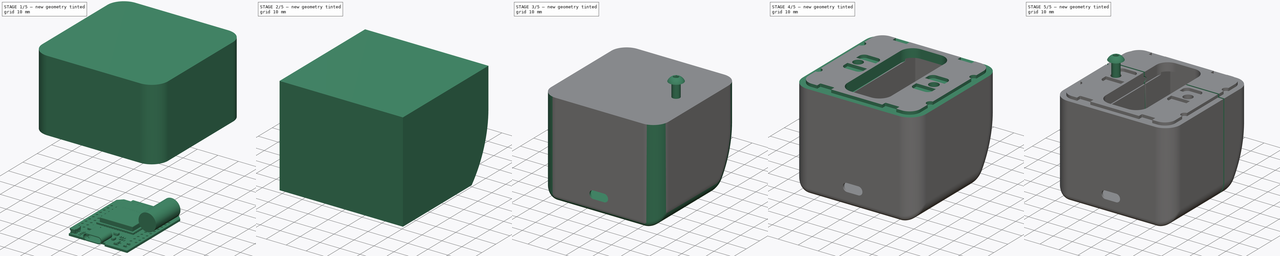
[diagram: build sequence overview — one tinted view per stage of 5, left to right]
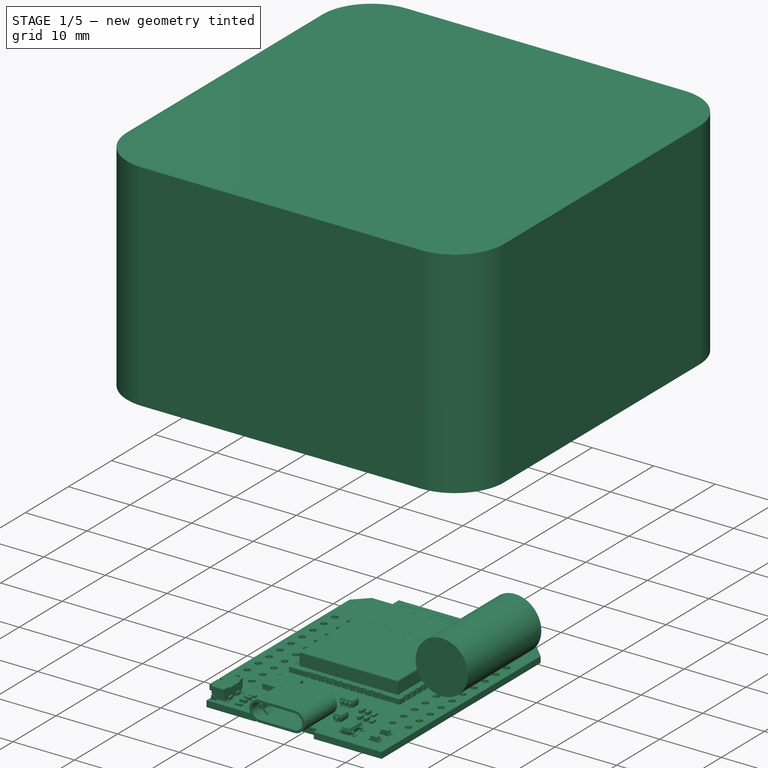
[diagram: stage 1 of 5 — iso view after this stage's code; geometry added in this stage tinted green]
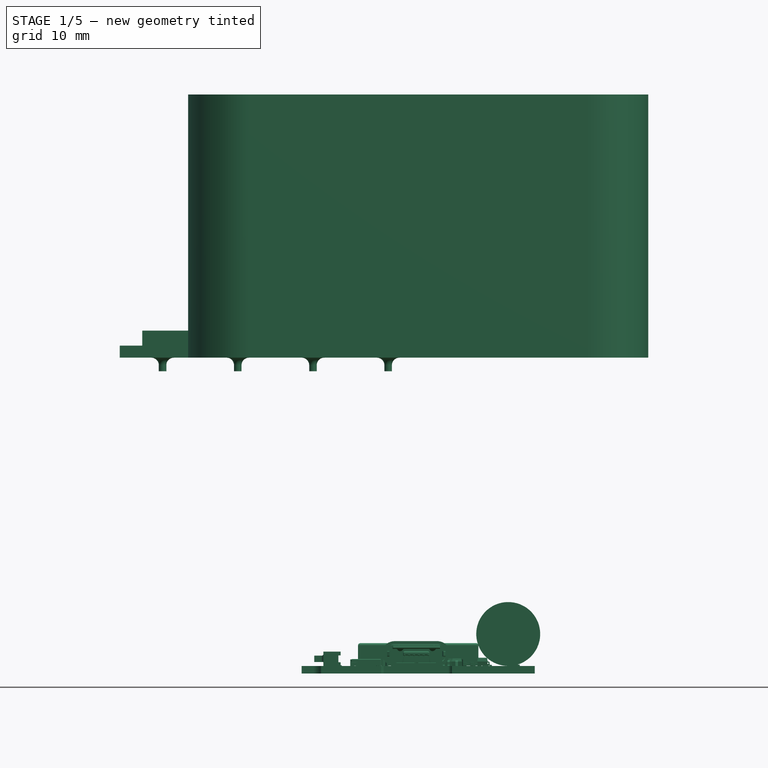
[diagram: stage 1 of 5 — front view after this stage's code; geometry added in this stage tinted green]
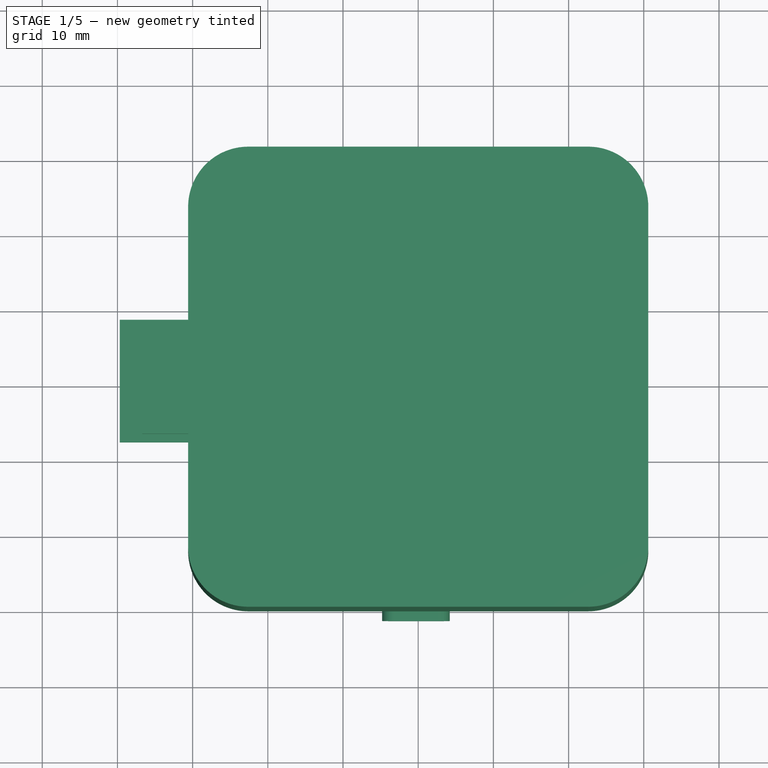
[diagram: stage 1 of 5 — top view after this stage's code; geometry added in this stage tinted green]
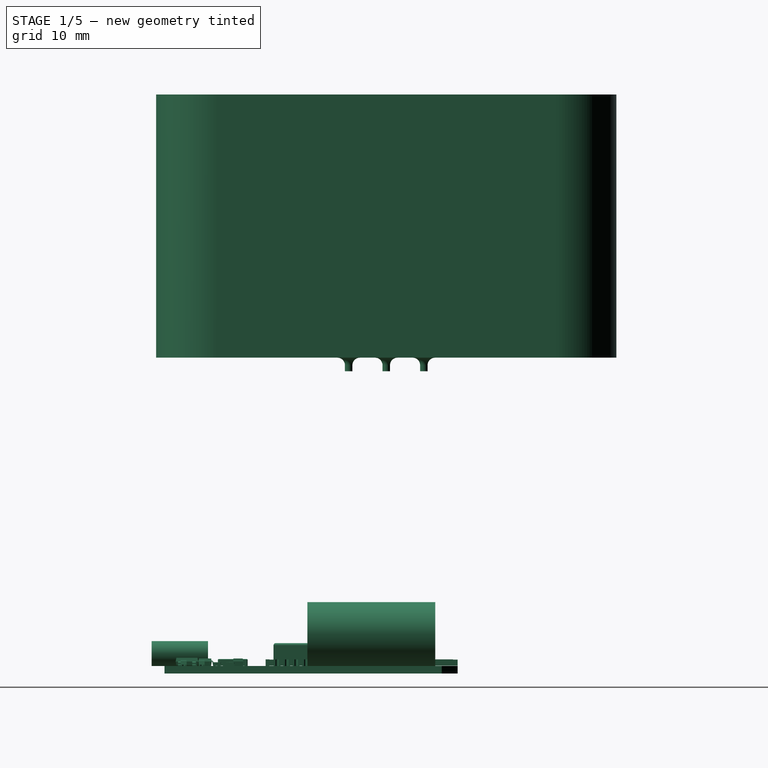
[diagram: stage 1 of 5 — right view after this stage's code; geometry added in this stage tinted green]
FCSTD DOCUMENT  (FreeCAD 1.0R39109 (Git))
Label: BedroomFan V4
License: All rights reserved
LicenseURL: http://en.wikipedia.org/wiki/All_rights_reserved
objects: Sketcher::SketchObject×56, PartDesign::SubShapeBinder×32, PartDesign::Plane×21, PartDesign::Pad×14, PartDesign::Pocket×13, PartDesign::Body×10, PartDesign::Mirrored×9, PartDesign::Fillet×5, PartDesign::MultiTransform×4, Part::FeaturePython×4, PartDesign::Groove×2, PartDesign::Point×2, PartDesign::Revolution×2, PartDesign::LinearPattern×2, PartDesign::AdditivePipe×2, PartDesign::SubtractiveLoft×2, PartDesign::SubtractivePipe×2, Part::MultiCommon×2, Part::Feature×1, PartDesign::AdditiveHelix×1, +2 more types
note: 346 computed .brp shape members not serialized (recipe doc carries the construction recipe); baked Part::Feature solids carry a one-line shape summary decoded from their .brp

FEATURE [Part::Feature] Part__Feature  label="MH-ET_LIVE_MiniKit"
  shape: bbox 31.02 x 99.68 x 39.44 mm, 5494 faces, 23 solids (baked)
FEATURE [Sketcher::SketchObject] Sketch023
  ArcFitTolerance = 0
  AttachmentSupport = -> [XY_Plane013]
  FullyConstrained = true
  MakeInternals = false
  MapMode = 5
  sketch-geometry (12):
    g0: LineSegment StartX=-22.6 StartY=30.6 StartZ=0 EndX=22.6 EndY=30.6 EndZ=0
    g1: LineSegment StartX=30.6 StartY=22.6 StartZ=0 EndX=30.6 EndY=-22.6 EndZ=0
    g2: LineSegment StartX=22.6 StartY=-30.6 StartZ=0 EndX=-22.6 EndY=-30.6 EndZ=0
    g3: LineSegment StartX=-30.6 StartY=-22.6 StartZ=0 EndX=-30.6 EndY=22.6 EndZ=0
    g4: ArcOfCircle CenterX=-22.6 CenterY=22.6 CenterZ=0 NormalX=0 NormalY=0 NormalZ=1 AngleXU=0 Radius=8 StartAngle=1.5708 EndAngle=3.14159
    g5: ArcOfCircle CenterX=22.6 CenterY=22.6 CenterZ=0 NormalX=0 NormalY=0 NormalZ=1 AngleXU=0 Radius=8 StartAngle=2.39e-14 EndAngle=1.5708
    g6: ArcOfCircle CenterX=22.6 CenterY=-22.6 CenterZ=0 NormalX=0 NormalY=0 NormalZ=1 AngleXU=0 Radius=8 StartAngle=4.71239 EndAngle=6.28319
    g7: ArcOfCircle CenterX=-22.6 CenterY=-22.6 CenterZ=0 NormalX=0 NormalY=0 NormalZ=1 AngleXU=0 Radius=8 StartAngle=3.14159 EndAngle=4.71239
    g8: LineSegment [constr] StartX=-22.6 StartY=22.6 StartZ=0 EndX=22.6 EndY=22.6 EndZ=0
    g9: LineSegment [constr] StartX=22.6 StartY=22.6 StartZ=0 EndX=22.6 EndY=-22.6 EndZ=0
    g10: LineSegment [constr] StartX=22.6 StartY=-22.6 StartZ=0 EndX=-22.6 EndY=-22.6 EndZ=0
    g11: LineSegment [constr] StartX=-22.6 StartY=-22.6 StartZ=0 EndX=-22.6 EndY=22.6 EndZ=0
  constraints (26):
    c: Horizontal(g0)
    c: Horizontal(g2)
    c: Vertical(g1)
    c: Vertical(g3)
    c: Tangent(g3,g4) = 1.5708
    c: Tangent(g0,g4) = 1.5708
    c: Tangent(g0,g5) = 1.5708
    c: Tangent(g1,g5) = 1.5708
    c: Tangent(g1,g6) = 1.5708
    c: Tangent(g2,g6) = 1.5708
    c: Tangent(g2,g7) = 1.5708
    c: Tangent(g3,g7) = 1.5708
    c: Coincident(g8,g9)
    c: Coincident(g9,g10)
    c: Coincident(g10,g11)
    c: Coincident(g11,g8)
    c: Horizontal(g10)
    c: Coincident(g8,g4)
    c: Coincident(g9,g6)
    c: Coincident(g5,g8)
    c: Coincident(g7,g10)
    c: Symmetric(g5,g6,g-1)
    c: Symmetric(g5,g4,g-2)
    c: Equal(g9,g8)
    c: DistanceX(g3,g1) = 61.2
    c: Radius(g5) = 8
FEATURE [PartDesign::Pad] Pad009
  Direction = (0,0,1)
  Length = 35
  Length2 = 100
  Profile = -> Sketch023
  Suppressed = false
  Type = 0
FEATURE [Sketcher::SketchObject] Sketch024
  ArcFitTolerance = 0
  AttachmentSupport = -> [XY_Plane013]
  ExternalGeometry = -> [Sketch023]
  FullyConstrained = true
  MakeInternals = false
  MapMode = 5
  sketch-geometry (12):
    g0: LineSegment [constr] StartX=22.6 StartY=22.6 StartZ=0 EndX=-22.6 EndY=22.6 EndZ=0
    g1: LineSegment [constr] StartX=-22.6 StartY=22.6 StartZ=0 EndX=-22.6 EndY=-22.6 EndZ=0
    g2: LineSegment [constr] StartX=-22.6 StartY=-22.6 StartZ=0 EndX=22.6 EndY=-22.6 EndZ=0
    g3: LineSegment [constr] StartX=22.6 StartY=-22.6 StartZ=0 EndX=22.6 EndY=22.6 EndZ=0
    g4: LineSegment StartX=-22.6 StartY=28.3 StartZ=0 EndX=22.6 EndY=28.3 EndZ=0
    g5: LineSegment StartX=28.3 StartY=22.6 StartZ=0 EndX=28.3 EndY=-22.6 EndZ=0
    g6: LineSegment StartX=22.6 StartY=-28.3 StartZ=0 EndX=-22.6 EndY=-28.3 EndZ=0
    g7: LineSegment StartX=-28.3 StartY=-22.6 StartZ=0 EndX=-28.3 EndY=22.6 EndZ=0
    g8: ArcOfCircle CenterX=22.6 CenterY=22.6 CenterZ=0 NormalX=0 NormalY=0 NormalZ=1 AngleXU=0 Radius=5.7 StartAngle=0 EndAngle=1.5708
    g9: ArcOfCircle CenterX=-22.6 CenterY=22.6 CenterZ=0 NormalX=0 NormalY=0 NormalZ=1 AngleXU=0 Radius=5.7 StartAngle=1.5708 EndAngle=3.14159
    g10: ArcOfCircle CenterX=-22.6 CenterY=-22.6 CenterZ=0 NormalX=0 NormalY=0 NormalZ=1 AngleXU=0 Radius=5.7 StartAngle=3.14159 EndAngle=4.71239
    g11: ArcOfCircle CenterX=22.6 CenterY=-22.6 CenterZ=0 NormalX=0 NormalY=0 NormalZ=1 AngleXU=0 Radius=5.7 StartAngle=4.71239 EndAngle=6.28319
  constraints (25):
    c: Coincident(g0,g1)
    c: Coincident(g1,g2)
    c: Coincident(g2,g3)
    c: Coincident(g3,g0)
    c: Horizontal(g2)
    c: Vertical(g1)
    c: Coincident(g0,g-3)
    c: Symmetric(g0,g2,g-1)
    c: Symmetric(g0,g0,g-2)
    c: Horizontal(g4)
    c: Horizontal(g6)
    c: Vertical(g5)
    c: Tangent(g5,g8) = 1.5708
    c: Tangent(g4,g8) = 1.5708
    c: Tangent(g4,g9) = 1.5708
    c: Tangent(g7,g9) = 1.5708
    c: Tangent(g7,g10) = 1.5708
    c: Tangent(g6,g10) = 1.5708
    c: Tangent(g6,g11) = 1.5708
    c: Tangent(g5,g11) = 1.5708
    c: Coincident(g0,g8)
    c: Coincident(g0,g9)
    c: Coincident(g1,g10)
    c: Coincident(g2,g11)
    c: DistanceX(g5,g-3) = 2.3
FEATURE [PartDesign::Pocket] Pocket002
  BaseFeature = -> Pad009
  Direction = (0,0,-1)
  Length = 25
  Length2 = 100
  Profile = -> Sketch024
  Reversed = true
  Suppressed = false
  Type = 0
FEATURE [Sketcher::SketchObject] Sketch025
  ArcFitTolerance = 0
  AttachmentSupport = -> [XY_Plane013]
  FullyConstrained = true
  MakeInternals = false
  MapMode = 5
  sketch-geometry (4):
    g0: LineSegment StartX=19.5 StartY=28.6 StartZ=0 EndX=13.1 EndY=28.6 EndZ=0
    g1: LineSegment StartX=13.1 StartY=28.6 StartZ=0 EndX=13.1 EndY=26.1 EndZ=0
    g2: LineSegment StartX=13.1 StartY=26.1 StartZ=0 EndX=19.5 EndY=26.1 EndZ=0
    g3: LineSegment StartX=19.5 StartY=26.1 StartZ=0 EndX=19.5 EndY=28.6 EndZ=0
  constraints (12):
    c: Coincident(g0,g1)
    c: Coincident(g1,g2)
    c: Coincident(g2,g3)
    c: Coincident(g3,g0)
    c: Horizontal(g0)
    c: Horizontal(g2)
    c: Vertical(g1)
    c: Vertical(g3)
    c: DistanceX(g2) = 19.5
    c: DistanceX(g2,g2) = 6.4
    c: DistanceY(g2) = 26.1
    c: DistanceY(g3,g3) = 2.5
FEATURE [PartDesign::Pad] Pad010
  BaseFeature = -> Pocket002
  Direction = (0,0,1)
  Length = 9
  Length2 = 100
  Profile = -> Sketch025
  Suppressed = false
  Type = 0
FEATURE [PartDesign::SubShapeBinder] Binder  label="cp ref pcb"
  BindCopyOnChange = 0
  BindMode = 0
  ClaimChildren = false
  Context = -> Body [Binder.]
  Fuse = false
  MakeFace = true
  OffsetFill = false
  OffsetIntersection = false
  OffsetJoinType = 0
  OffsetOpenResult = false
  PartialLoad = false
  Refine = true
  Relative = true
  Support = -> [Part__Feature[Face46]]
  _Version = 2
FEATURE [PartDesign::SubShapeBinder] Binder001  label="cp ref housing ESP"
  BindCopyOnChange = 0
  BindMode = 0
  ClaimChildren = false
  Context = -> Body [Binder001.]
  Fuse = false
  MakeFace = true
  OffsetFill = false
  OffsetIntersection = false
  OffsetJoinType = 0
  OffsetOpenResult = false
  PartialLoad = false
  Refine = true
  Relative = true
  Support = -> [Part__Feature[Face987,Face424,Face706]]
  _Version = 2
FEATURE [PartDesign::SubShapeBinder] Binder002  label="cp ref pins"
  BindCopyOnChange = 0
  BindMode = 0
  ClaimChildren = false
  Context = -> Body [Binder002.]
  Fuse = false
  MakeFace = true
  OffsetFill = false
  OffsetIntersection = false
  OffsetJoinType = 0
  OffsetOpenResult = false
  PartialLoad = false
  Refine = true
  Relative = true
  Support = -> [Part__Feature[Edge654,Edge649]]
  _Version = 2
FEATURE [PartDesign::Point] DatumPoint  label="cp ref gnd"
  AttacherType = Attacher::AttachEnginePoint
  AttachmentSupport = -> [Binder002]
  MapMode = 36
  Placement = pos=(11.43,0.999,3.49) rot=(0,1,0;3.14159rad)
FEATURE [PartDesign::Point] DatumPoint001  label="cp ref VCC"
  AttacherType = Attacher::AttachEnginePoint
  AttachmentSupport = -> [Binder002]
  MapMode = 36
  Placement = pos=(11.43,0.999,6.03) rot=(0,1,0;3.14159rad)
FEATURE [PartDesign::Plane] DatumPlane002  label="cp pln capacitor"
  AttachmentOffset = pos=(0,0,-3) rot=(0,0,1;0rad)
  AttachmentSupport = -> [DatumPoint,XY_Plane]
  Length = 60
  MapMode = 6
  Placement = pos=(11.43,0.999,0.49) rot=(0,0,1;3.14159rad)
  ResizeMode = 0
  Width = 60
FEATURE [Sketcher::SketchObject] Sketch
  ArcFitTolerance = 1e-06
  AttachmentSupport = -> [DatumPlane002]
  ExternalGeometry = -> [Binder001]
  FullyConstrained = true
  MakeInternals = false
  MapMode = 5
  Placement = pos=(11.43,0.999,0.49) rot=(0,0,1;3.14159rad)
  sketch-geometry (1):
    g0: Circle CenterX=-0.541184 CenterY=-4.25 CenterZ=0 NormalX=0 NormalY=0 NormalZ=1 AngleXU=0 Radius=4.25
  constraints (3):
    c: Tangent(g0,g-1)
    c: Diameter(g0) = 8.5
    c: PointOnObject(g-4,g0)
FEATURE [PartDesign::Pad] Pad
  Direction = (0,0,1)
  Length = 17
  Length2 = 10
  Placement = pos=(11.43,0.999,0.49) rot=(0,0,1;3.14159rad)
  Profile = -> Sketch
  ReferenceAxis = -> Sketch [N_Axis]
  Refine = true
  Reversed = true
  Suppressed = false
  Type = 0
FEATURE [Sketcher::SketchObject] Sketch003  label="Screw hole 001"
  ArcFitTolerance = 0
  AttachmentSupport = -> [XZ_Plane023]
  ExternalGeometry = -> [Sketch119,Sketch001]
  FullyConstrained = true
  MakeInternals = false
  MapMode = 5
  Placement = pos=(0,0,0) rot=(1,0,0;1.5708rad)
  sketch-geometry (8):
    g0: LineSegment StartX=0 StartY=20 StartZ=0 EndX=3.35 EndY=20 EndZ=0
    g1: LineSegment StartX=3.35 StartY=20 StartZ=0 EndX=3.35 EndY=0.7 EndZ=0
    g2: LineSegment StartX=3.35 StartY=0.7 StartZ=0 EndX=1.7 EndY=-0.95 EndZ=0
    g3: LineSegment StartX=1.7 StartY=-0.95 StartZ=0 EndX=1.7 EndY=-3.5 EndZ=0
    g4: LineSegment StartX=1.7 StartY=-3.5 StartZ=0 EndX=1.25 EndY=-3.5 EndZ=0
    g5: LineSegment StartX=1.25 StartY=-3.5 StartZ=0 EndX=1.25 EndY=-15.0103 EndZ=0
    g6: LineSegment StartX=1.25 StartY=-15.0103 StartZ=0 EndX=0 EndY=-16.5 EndZ=0
    g7: LineSegment StartX=0 StartY=-16.5 StartZ=0 EndX=0 EndY=20 EndZ=0
  constraints (24):
    c: PointOnObject(g0,g-2)
    c: Horizontal(g0)
    c: Coincident(g0,g1)
    c: Coincident(g1,g2)
    c: Coincident(g2,g3)
    c: Vertical(g3)
    c: Coincident(g3,g4)
    c: Horizontal(g4)
    c: Coincident(g4,g5)
    c: Vertical(g5)
    c: Coincident(g5,g6)
    c: Coincident(g7,g0)
    c: Vertical(g1)
    c: PointOnObject(g-3,g2)
    c: Parallel(g2,g-3)
    c: DistanceX(g-4,g2) = 0.2
    c: DistanceX(g4,g-4) = 0.25
    c: DistanceY(g3,g-1) = 3.5
    c: DistanceY(g0) = 20
    c: DistanceX(g-3,g1) = 0.7
    c: Coincident(g6,g7)
    c: PointOnObject(g6,g-2)
    c: DistanceY(g6,g-5) = 0.5
    c: Angle(g6,g-5) = 0.174533
FEATURE [PartDesign::Body] Body023  label="Self tapping screw M3x16_001"
  AllowCompound = false
  Group = -> [Sketch119,Revolution,Sketch001,Sketch002,AdditiveHelix,Pocket034,PolarPattern,Sketch003]
  Origin = -> Origin023
  Placement = pos=(21,14.3,-26) rot=(1,0,0;4.71239rad)
  Tip = -> PolarPattern
FEATURE [Sketcher::SketchObject] Sketch149
  ArcFitTolerance = 1e-06
  AttachmentSupport = -> [XY_Plane027]
  FullyConstrained = true
  MakeInternals = false
  MapMode = 5
  sketch-geometry (4):
    g0: LineSegment StartX=-39.7 StartY=8.15 StartZ=0 EndX=-39.7 EndY=-8.15 EndZ=0
    g1: LineSegment StartX=-39.7 StartY=-8.15 StartZ=0 EndX=0 EndY=-8.15 EndZ=0
    g2: LineSegment StartX=0 StartY=-8.15 StartZ=0 EndX=0 EndY=8.15 EndZ=0
    g3: LineSegment StartX=0 StartY=8.15 StartZ=0 EndX=-39.7 EndY=8.15 EndZ=0
  constraints (11):
    c: Coincident(g0,g1)
    c: Coincident(g1,g2)
    c: Coincident(g2,g3)
    c: Coincident(g3,g0)
    c: Vertical(g0)
    c: Horizontal(g1)
    c: Horizontal(g3)
    c: PointOnObject(g1,g-2)
    c: Symmetric(g1,g2,g-1)
    c: DistanceX(g3,g3) = 39.7
    c: DistanceY(g2,g2) = 16.3
FEATURE [PartDesign::Pad] Pad027
  Direction = (0,0,1)
  Length = 1.6
  Length2 = 10
  Profile = -> Sketch149
  ReferenceAxis = -> Sketch149 [N_Axis]
  Refine = true
  Suppressed = false
  Type = 0
FEATURE [Sketcher::SketchObject] Sketch150
  ArcFitTolerance = 1e-06
  AttachmentSupport = -> [Pad027]
  FullyConstrained = true
  MakeInternals = false
  MapMode = 5
  Placement = pos=(0,0,1.6) rot=(0,0,1;0rad)
  sketch-geometry (4):
    g0: LineSegment StartX=-9.5 StartY=7.75 StartZ=0 EndX=-28.3 EndY=7.75 EndZ=0
    g1: LineSegment StartX=-28.3 StartY=7.75 StartZ=0 EndX=-28.3 EndY=-7.75 EndZ=0
    g2: LineSegment StartX=-28.3 StartY=-7.75 StartZ=0 EndX=-9.5 EndY=-7.75 EndZ=0
    g3: LineSegment StartX=-9.5 StartY=-7.75 StartZ=0 EndX=-9.5 EndY=7.75 EndZ=0
  constraints (11):
    c: Coincident(g0,g1)
    c: Coincident(g1,g2)
    c: Coincident(g2,g3)
    c: Coincident(g3,g0)
    c: Horizontal(g0)
    c: Horizontal(g2)
    c: Vertical(g1)
    c: Symmetric(g2,g0,g-1)
    c: DistanceX(g0,g0) = 18.8
    c: DistanceY(g3,g3) = 15.5
    c: DistanceX(g0,g-1) = 9.5
FEATURE [PartDesign::Pad] Pad028
  BaseFeature = -> Pad027
  Direction = (0,0,1)
  Length = 15.8
  Length2 = 10
  Profile = -> Sketch150
  ReferenceAxis = -> Sketch150 [N_Axis]
  Refine = true
  Suppressed = false
  Type = 0
FEATURE [Sketcher::SketchObject] Sketch151
  ArcFitTolerance = 1e-06
  AttachmentSupport = -> [XZ_Plane027]
  ExternalGeometry = -> [Pad028]
  FullyConstrained = true
  MakeInternals = false
  MapMode = 5
  Placement = pos=(0,0,0) rot=(1,0,0;1.5708rad)
  sketch-geometry (5):
    g0: LineSegment StartX=-8.3 StartY=1.6 StartZ=0 EndX=-8.3 EndY=7.9 EndZ=0
    g1: LineSegment StartX=-8.3 StartY=7.9 StartZ=0 EndX=-7.15302 EndY=11.9 EndZ=0
    g2: LineSegment StartX=-7.15302 StartY=11.9 StartZ=0 EndX=-1.3 EndY=11.9 EndZ=0
    g3: LineSegment StartX=-1.3 StartY=11.9 StartZ=0 EndX=-1.3 EndY=1.6 EndZ=0
    g4: LineSegment StartX=-1.3 StartY=1.6 StartZ=0 EndX=-8.3 EndY=1.6 EndZ=0
  constraints (15):
    c: PointOnObject(g0,g-3)
    c: Vertical(g0)
    c: Coincident(g0,g1)
    c: Coincident(g1,g2)
    c: Horizontal(g2)
    c: Coincident(g2,g3)
    c: PointOnObject(g3,g-3)
    c: Vertical(g3)
    c: Coincident(g3,g4)
    c: Coincident(g4,g0)
    c: DistanceY(g3,g3) = 10.3
    c: Distance(g-3,g3) = 1.3
    c: DistanceX(g0,g2) = 7
    c: Angle(g1,g0) = 0.279253
    c: DistanceY(g1,g1) = 4
FEATURE [PartDesign::Pad] Pad029
  BaseFeature = -> Pad028
  Direction = (0,-1,2e-16)
  Length = 15
  Length2 = 10
  Midplane = true
  Profile = -> Sketch151
  ReferenceAxis = -> Sketch151 [N_Axis]
  Refine = true
  Suppressed = false
  Type = 0
FEATURE [Sketcher::SketchObject] Sketch152
  ArcFitTolerance = 1e-06
  AttachmentOffset = pos=(0,0,-5) rot=(0,0,1;0rad)
  AttachmentSupport = -> [XZ_Plane027]
  FullyConstrained = true
  MakeInternals = false
  MapMode = 5
  Placement = pos=(0,5,-1.1e-15) rot=(1,0,0;1.5708rad)
  sketch-geometry (6):
    g0: LineSegment StartX=-4 StartY=0 StartZ=0 EndX=-4 EndY=-1.8 EndZ=0
    g1: LineSegment StartX=-4 StartY=-1.8 StartZ=0 EndX=-3.5 EndY=-1.8 EndZ=0
    g2: LineSegment StartX=-3.5 StartY=-1.8 StartZ=0 EndX=-3.5 EndY=-1 EndZ=0
    g3: LineSegment StartX=-4 StartY=0 StartZ=0 EndX=-2.5 EndY=-9e-16 EndZ=0
    g4: ArcOfCircle CenterX=-2.5 CenterY=-1 CenterZ=0 NormalX=0 NormalY=0 NormalZ=1 AngleXU=0 Radius=1 StartAngle=1.5708 EndAngle=3.14159
    g5: LineSegment [constr] StartX=-4 StartY=-1.8 StartZ=0 EndX=-4 EndY=-2.6 EndZ=0
  constraints (17):
    c: PointOnObject(g0,g-1)
    c: Vertical(g0)
    c: Coincident(g0,g1)
    c: Coincident(g1,g2)
    c: Vertical(g2)
    c: Coincident(g0,g3)
    c: PointOnObject(g3,g-1)
    c: Tangent(g2,g4) = 1.5708
    c: Tangent(g3,g4) = 1.5708
    c: Horizontal(g1)
    c: Coincident(g5,g0)
    c: Vertical(g5)
    c: DistanceX(g5,g-1) = 4
    c: Distance(g1,g1) = 0.5
    c: DistanceY(g0,g0) = 1.8
    c: Distance(g2,g2) = 0.8
    c: Equal(g2,g5)
FEATURE [PartDesign::Revolution] Revolution014
  Angle = 360
  Angle2 = 60
  Axis = (0,-2e-16,-0.8)
  Base = (-4,5,-1.8)
  BaseFeature = -> Pad029
  Profile = -> Sketch152
  ReferenceAxis = -> Sketch152 [Axis]
  Refine = true
  Suppressed = false
  Type = 0
FEATURE [PartDesign::LinearPattern] LinearPattern
  Direction = -> Y_Axis027
  Length = 10
  Mode = 0
  Occurrences = 3
  Offset = 5
  Refine = true
  Reversed = true
  Suppressed = false
  TransformMode = 0
FEATURE [PartDesign::LinearPattern] LinearPattern004
  Direction = -> X_Axis027
  Length = 30
  Mode = 0
  Occurrences = 4
  Offset = 10
  Refine = true
  Reversed = true
  Suppressed = false
  TransformMode = 0
FEATURE [PartDesign::MultiTransform] MultiTransform001
  BaseFeature = -> Revolution014
  Originals = -> [Revolution014]
  Refine = true
  Suppressed = false
  TransformMode = 0
  Transformations = -> [LinearPattern,LinearPattern004]
FEATURE [Sketcher::SketchObject] Sketch153
  ArcFitTolerance = 1e-06
  AttachmentSupport = -> [MultiTransform001]
  ExternalGeometry = -> [MultiTransform001]
  FullyConstrained = true
  MakeInternals = false
  MapMode = 5
  Placement = pos=(0,0,1.6) rot=(0,0,1;0rad)
  sketch-geometry (4):
    g0: LineSegment StartX=-29.7 StartY=7 StartZ=0 EndX=-36.7 EndY=7 EndZ=0
    g1: LineSegment StartX=-36.7 StartY=7 StartZ=0 EndX=-36.7 EndY=-7 EndZ=0
    g2: LineSegment StartX=-36.7 StartY=-7 StartZ=0 EndX=-29.7 EndY=-7 EndZ=0
    g3: LineSegment StartX=-29.7 StartY=-7 StartZ=0 EndX=-29.7 EndY=7 EndZ=0
  constraints (11):
    c: Coincident(g0,g1)
    c: Coincident(g1,g2)
    c: Coincident(g2,g3)
    c: Coincident(g3,g0)
    c: Horizontal(g0)
    c: Horizontal(g2)
    c: Vertical(g1)
    c: DistanceX(g-3,g0) = 3
    c: DistanceX(g0,g0) = 7
    c: DistanceY(g1,g1) = 14
    c: Symmetric(g0,g2,g-1)
FEATURE [PartDesign::Pad] Pad030
  BaseFeature = -> MultiTransform001
  Direction = (0,0,1)
  Length = 2
  Length2 = 10
  Profile = -> Sketch153
  ReferenceAxis = -> Sketch153 [N_Axis]
  Refine = true
  Suppressed = false
  Type = 0
FEATURE [PartDesign::SubShapeBinder] Binder009  label="hs ref ESP right"
  BindCopyOnChange = 0
  BindMode = 0
  ClaimChildren = false
  Context = -> Body029 [Binder009.]
  Fuse = false
  MakeFace = true
  OffsetFill = false
  OffsetIntersection = false
  OffsetJoinType = 0
  OffsetOpenResult = false
  PartialLoad = false
  Refine = true
  Relative = true
  Support = -> [Body028[Sketch159.]]
  _Version = 2
FEATURE [PartDesign::Plane] DatumPlane005  label="hs pln ESP rear"
  AttachmentSupport = -> [Binder009,XZ_Plane029]
  Length = 85.083
  MapMode = 6
  Placement = pos=(0,9.9,-44.5) rot=(0.57735,-0.57735,0.57735;2.0944rad)
  ResizeMode = 0
  Width = 62.083
FEATURE [PartDesign::Plane] DatumPlane006  label="hs pln ESP front 1"
  AttachmentSupport = -> [Binder009,XZ_Plane029]
  Length = 85.083
  MapMode = 6
  Placement = pos=(0,-29.5,-44.5) rot=(0.57735,-0.57735,0.57735;2.0944rad)
  ResizeMode = 0
  Width = 62.083
FEATURE [PartDesign::SubShapeBinder] Binder010  label="hs ref relais right"
  BindCopyOnChange = 0
  BindMode = 0
  ClaimChildren = false
  Context = -> Body029 [Binder010.]
  Fuse = false
  MakeFace = true
  OffsetFill = false
  OffsetIntersection = false
  OffsetJoinType = 0
  OffsetOpenResult = false
  PartialLoad = false
  Refine = true
  Relative = true
  Support = -> [Body028[Sketch158.]]
  _Version = 2
FEATURE [PartDesign::Plane] DatumPlane007  label="hs pln relais rear"
  AttachmentOffset = pos=(0,0,2) rot=(0,0,1;0rad)
  AttachmentSupport = -> [Binder005,XZ_Plane029]
  Length = 85.083
  MapMode = 6
  Placement = pos=(0,28.6,1.5) rot=(0.57735,-0.57735,0.57735;2.0944rad)
  ResizeMode = 0
  Width = 62.083
FEATURE [PartDesign::Plane] DatumPlane008  label="hs pln relais front"
  AttachmentSupport = -> [Binder010,XZ_Plane029]
  Length = 85.083
  MapMode = 6
  Placement = pos=(0,-27.7,-21.15) rot=(0.57735,-0.57735,0.57735;2.0944rad)
  ResizeMode = 0
  Width = 62.083
FEATURE [Sketcher::SketchObject] Sketch163
  ArcFitTolerance = 1e-06
  AttachmentSupport = -> [DatumPlane008]
  ExternalGeometry = -> [Binder008]
  FullyConstrained = true
  MakeInternals = false
  MapMode = 5
  Placement = pos=(0,-27.7,-21.15) rot=(0.57735,-0.57735,0.57735;2.0944rad)
  sketch-geometry (4):
    g0: LineSegment StartX=0 StartY=-10.8 StartZ=0 EndX=18.3 EndY=-10.8 EndZ=0
    g1: LineSegment StartX=18.3 StartY=-10.8 StartZ=0 EndX=18.3 EndY=10.4 EndZ=0
    g2: LineSegment StartX=18.3 StartY=10.4 StartZ=0 EndX=0 EndY=10.4 EndZ=0
    g3: LineSegment StartX=0 StartY=10.4 StartZ=0 EndX=0 EndY=-10.8 EndZ=0
  constraints (10):
    c: Coincident(g0,g1)
    c: Coincident(g1,g2)
    c: Coincident(g2,g3)
    c: Coincident(g3,g0)
    c: Horizontal(g0)
    c: Horizontal(g2)
    c: Vertical(g1)
    c: Vertical(g3)
    c: Coincident(g0,g-4)
    c: Coincident(g1,g-3)
FEATURE [PartDesign::Plane] DatumPlane009  label="hs pln cableduct relais"
  AttachmentOffset = pos=(0,0,1) rot=(0,0,1;0rad)
  AttachmentSupport = -> [Binder008,XY_Plane029]
  Length = 60
  MapMode = 6
  Placement = pos=(-10.4,-4.7e-15,-20.15) rot=(0,0,1;3.14159rad)
  ResizeMode = 0
  Width = 60
FEATURE [PartDesign::Plane] DatumPlane010  label="hs pln cableduct esp"
  AttachmentOffset = pos=(0,0,-1) rot=(0,0,1;0rad)
  AttachmentSupport = -> [Binder009,XY_Plane029]
  Length = 60
  MapMode = 6
  Placement = pos=(0,9.9,-38.465) rot=(0,0,1;3.14159rad)
  ResizeMode = 0
  Width = 60
FEATURE [Sketcher::SketchObject] Sketch164  label="hs cableduct relais"
  ArcFitTolerance = 1e-06
  AttachmentSupport = -> [DatumPlane009]
  ExternalGeometry = -> [Binder010,Binder009,Binder005]
  FullyConstrained = true
  MakeInternals = false
  MapMode = 5
  Placement = pos=(-10.4,-4.7e-15,-20.15) rot=(0,0,1;3.14159rad)
  sketch-geometry (10):
    g0: LineSegment StartX=-19.3 StartY=24.7 StartZ=0 EndX=-19.3 EndY=-25.1 EndZ=0
    g1: LineSegment StartX=-16.8 StartY=-27.6 StartZ=0 EndX=-4 EndY=-27.6 EndZ=0
    g2: LineSegment StartX=-1.5 StartY=-25.1 StartZ=0 EndX=-1.5 EndY=24.7 EndZ=0
    g3: LineSegment StartX=-4 StartY=27.2 StartZ=0 EndX=-16.8 EndY=27.2 EndZ=0
    g4: ArcOfCircle CenterX=-16.8 CenterY=24.7 CenterZ=0 NormalX=0 NormalY=0 NormalZ=1 AngleXU=0 Radius=2.5 StartAngle=1.5708 EndAngle=3.14159
    g5: ArcOfCircle CenterX=-16.8 CenterY=-25.1 CenterZ=0 NormalX=0 NormalY=0 NormalZ=1 AngleXU=0 Radius=2.5 StartAngle=3.14159 EndAngle=4.71239
    g6: ArcOfCircle CenterX=-4 CenterY=-25.1 CenterZ=0 NormalX=0 NormalY=0 NormalZ=1 AngleXU=0 Radius=2.5 StartAngle=4.71239 EndAngle=6.28319
    g7: ArcOfCircle CenterX=-4 CenterY=24.7 CenterZ=0 NormalX=0 NormalY=0 NormalZ=1 AngleXU=0 Radius=2.5 StartAngle=0 EndAngle=1.5708
    g8: GeomPoint [constr] X=-19.3 Y=27.2 Z=0
    g9: GeomPoint [constr] X=-1.5 Y=-27.6 Z=0
  constraints (23):
    c: Tangent(g0,g4) = -1.5708
    c: Tangent(g0,g5) = -1.5708
    c: Tangent(g1,g5) = -1.5708
    c: Tangent(g1,g6) = -1.5708
    c: Tangent(g2,g6) = -1.5708
    c: Tangent(g2,g7) = -1.5708
    c: Tangent(g3,g7) = -1.5708
    c: Tangent(g3,g4) = -1.5708
    c: Vertical(g0)
    c: Vertical(g2)
    c: Horizontal(g1)
    c: Horizontal(g3)
    c: Equal(g4,g5)
    c: Equal(g5,g6)
    c: PointOnObject(g8,g0)
    c: PointOnObject(g8,g3)
    c: PointOnObject(g9,g1)
    c: PointOnObject(g9,g2)
    c: Radius(g5) = 2.5
    c: Distance(g-1,g2) = 1.5
    c: Symmetric(g4,g7,g-5)
    c: Distance(g-3,g3) = 0.5
    c: Distance(g-6,g1) = 3
FEATURE [PartDesign::SubShapeBinder] Binder011  label="hs ref separation"
  BindCopyOnChange = 0
  BindMode = 0
  ClaimChildren = false
  Context = -> Body029 [Binder011.]
  Fuse = false
  MakeFace = true
  OffsetFill = false
  OffsetIntersection = false
  OffsetJoinType = 0
  OffsetOpenResult = false
  PartialLoad = false
  Refine = true
  Relative = true
  Support = -> [Body028[Sketch160.]]
  _Version = 2
FEATURE [Sketcher::SketchObject] Sketch165  label="hs cableduct esp"
  ArcFitTolerance = 1e-06
  AttachmentSupport = -> [DatumPlane010]
  ExternalGeometry = -> [Binder009,Binder007,Binder011,Sketch164]
  FullyConstrained = true
  MakeInternals = false
  MapMode = 5
  Placement = pos=(0,9.9,-38.465) rot=(0,0,1;3.14159rad)
  sketch-geometry (10):
    g0: LineSegment StartX=-14.5 StartY=32.9 StartZ=0 EndX=-14.5 EndY=0.1 EndZ=0
    g1: LineSegment StartX=-12 StartY=-2.4 StartZ=0 EndX=12 EndY=-2.4 EndZ=0
    g2: LineSegment StartX=14.5 StartY=0.1 StartZ=0 EndX=14.5 EndY=32.9 EndZ=0
    g3: LineSegment StartX=12 StartY=35.4 StartZ=0 EndX=-12 EndY=35.4 EndZ=0
    g4: ArcOfCircle CenterX=-12 CenterY=32.9 CenterZ=0 NormalX=0 NormalY=0 NormalZ=1 AngleXU=0 Radius=2.5 StartAngle=1.5708 EndAngle=3.14159
    g5: ArcOfCircle CenterX=-12 CenterY=0.1 CenterZ=0 NormalX=0 NormalY=0 NormalZ=1 AngleXU=0 Radius=2.5 StartAngle=3.14159 EndAngle=4.71239
    g6: ArcOfCircle CenterX=12 CenterY=0.1 CenterZ=0 NormalX=0 NormalY=0 NormalZ=1 AngleXU=0 Radius=2.5 StartAngle=4.71239 EndAngle=6.28319
    g7: ArcOfCircle CenterX=12 CenterY=32.9 CenterZ=0 NormalX=0 NormalY=0 NormalZ=1 AngleXU=0 Radius=2.5 StartAngle=0 EndAngle=1.5708
    g8: GeomPoint [constr] X=-14.5 Y=35.4 Z=0
    g9: GeomPoint [constr] X=14.5 Y=-2.4 Z=0
  constraints (24):
    c: Tangent(g0,g4) = -1.5708
    c: Tangent(g0,g5) = -1.5708
    c: Tangent(g1,g5) = -1.5708
    c: Tangent(g1,g6) = -1.5708
    c: Tangent(g2,g6) = -1.5708
    c: Tangent(g2,g7) = -1.5708
    c: Tangent(g3,g7) = -1.5708
    c: Tangent(g3,g4) = -1.5708
    c: Vertical(g0)
    c: Vertical(g2)
    c: Horizontal(g1)
    c: Horizontal(g3)
    c: Equal(g4,g5)
    c: Equal(g5,g6)
    c: Equal(g6,g7)
    c: PointOnObject(g8,g0)
    c: PointOnObject(g8,g3)
    c: PointOnObject(g9,g1)
    c: PointOnObject(g9,g2)
    c: PointOnObject(g-5,g2)
    c: PointOnObject(g-5,g0)
    c: Distance(g-3,g3) = 4
    c: Equal(g-7,g7)
    c: Distance(g-6,g1) = 2
FEATURE [PartDesign::SubShapeBinder] Binder012  label="hs ref wall socket"
  BindCopyOnChange = 0
  BindMode = 0
  ClaimChildren = false
  Context = -> Body029 [Binder012.]
  Fuse = false
  MakeFace = true
  OffsetFill = false
  OffsetIntersection = false
  OffsetJoinType = 0
  OffsetOpenResult = false
  PartialLoad = false
  Refine = true
  Relative = true
  Support = -> [Body013[Fillet001.Face4,Fillet001.Face113,Fillet001.Face97,Fillet001.Face96,Fillet001.Face101,Fillet001.Face117,Fillet001.Face116,Fillet001.Face106]]
  _Version = 2
FEATURE [Sketcher::SketchObject] Sketch166
  ArcFitTolerance = 1e-06
  AttachmentSupport = -> [XY_Plane029]
  ExternalGeometry = -> [Binder012]
  FullyConstrained = true
  MakeInternals = false
  MapMode = 5
  sketch-geometry (11):
    g0: LineSegment StartX=-22.6 StartY=-28.1 StartZ=0 EndX=22.6 EndY=-28.1 EndZ=0
    g1: LineSegment StartX=28.1 StartY=-22.6 StartZ=0 EndX=28.1 EndY=22.6 EndZ=0
    g2: LineSegment StartX=22.6 StartY=28.1 StartZ=0 EndX=-22.6 EndY=28.1 EndZ=0
    g3: LineSegment StartX=-28.1 StartY=22.6 StartZ=0 EndX=-28.1 EndY=-22.6 EndZ=0
    g4: ArcOfCircle CenterX=-22.6 CenterY=-22.6 CenterZ=0 NormalX=0 NormalY=0 NormalZ=1 AngleXU=0 Radius=5.5 StartAngle=3.14159 EndAngle=4.71239
    g5: ArcOfCircle CenterX=22.6 CenterY=-22.6 CenterZ=0 NormalX=0 NormalY=0 NormalZ=1 AngleXU=0 Radius=5.5 StartAngle=4.71239 EndAngle=6.28319
    g6: ArcOfCircle CenterX=22.6 CenterY=22.6 CenterZ=0 NormalX=0 NormalY=0 NormalZ=1 AngleXU=0 Radius=5.5 StartAngle=3e-16 EndAngle=1.5708
    g7: ArcOfCircle CenterX=-22.6 CenterY=22.6 CenterZ=0 NormalX=0 NormalY=0 NormalZ=1 AngleXU=0 Radius=5.5 StartAngle=1.5708 EndAngle=3.14159
    g8: GeomPoint [constr] X=-28.1 Y=-28.1 Z=0
    g9: GeomPoint [constr] X=28.1 Y=28.1 Z=0
    g10: Circle CenterX=0 CenterY=0 CenterZ=0 NormalX=0 NormalY=0 NormalZ=1 AngleXU=0 Radius=50
  constraints (24):
    c: Tangent(g0,g4) = -1.5708
    c: Tangent(g0,g5) = -1.5708
    c: Tangent(g1,g5) = -1.5708
    c: Tangent(g1,g6) = -1.5708
    c: Tangent(g2,g6) = -1.5708
    c: Tangent(g2,g7) = -1.5708
    c: Tangent(g3,g7) = -1.5708
    c: Tangent(g3,g4) = -1.5708
    c: Horizontal(g0)
    c: Horizontal(g2)
    c: Vertical(g1)
    c: Vertical(g3)
    c: Equal(g4,g5)
    c: Equal(g5,g6)
    c: Equal(g6,g7)
    c: PointOnObject(g8,g0)
    c: PointOnObject(g8,g3)
    c: PointOnObject(g9,g1)
    c: PointOnObject(g9,g2)
    c: Coincident(g6,g-3)
    c: Coincident(g4,g-4)
    c: Distance(g-3,g1) = 0.2
    c: Coincident(g10,g-1)
    c: Diameter(g10) = 100
FEATURE [Sketcher::SketchObject] Sketch167
  ArcFitTolerance = 1e-06
  AttachmentSupport = -> [XY_Plane029]
  ExternalGeometry = -> [Binder012]
  FullyConstrained = true
  MakeInternals = false
  MapMode = 5
  sketch-geometry (13):
    g0: ArcOfCircle CenterX=28.1 CenterY=15.6 CenterZ=0 NormalX=0 NormalY=0 NormalZ=1 AngleXU=0 Radius=1.85 StartAngle=0.864989 EndAngle=5.4182
    g1: LineSegment StartX=29.3 StartY=17.008 StartZ=0 EndX=29.3 EndY=14.192 EndZ=0
    g2: LineSegment [constr] StartX=28.3 StartY=17.137 StartZ=0 EndX=28.3387 EndY=17.4345 EndZ=0
    g3: LineSegment StartX=13.1 StartY=25.8 StartZ=0 EndX=19.5 EndY=25.8 EndZ=0
    g4: LineSegment StartX=19.8 StartY=26.1 StartZ=0 EndX=19.8 EndY=28.3 EndZ=0
    g5: LineSegment StartX=19.5 StartY=28.6 StartZ=0 EndX=13.1 EndY=28.6 EndZ=0
    g6: LineSegment StartX=12.8 StartY=28.3 StartZ=0 EndX=12.8 EndY=26.1 EndZ=0
    g7: ArcOfCircle CenterX=13.1 CenterY=26.1 CenterZ=0 NormalX=0 NormalY=0 NormalZ=1 AngleXU=0 Radius=0.3 StartAngle=3.14159 EndAngle=4.71239
    g8: ArcOfCircle CenterX=19.5 CenterY=26.1 CenterZ=0 NormalX=0 NormalY=0 NormalZ=1 AngleXU=0 Radius=0.3 StartAngle=4.71239 EndAngle=6.28319
    g9: ArcOfCircle CenterX=19.5 CenterY=28.3 CenterZ=0 NormalX=0 NormalY=0 NormalZ=1 AngleXU=0 Radius=0.3 StartAngle=-1.794e-13 EndAngle=1.5708
    g10: ArcOfCircle CenterX=13.1 CenterY=28.3 CenterZ=0 NormalX=0 NormalY=0 NormalZ=1 AngleXU=0 Radius=0.3 StartAngle=1.5708 EndAngle=3.14159
    g11: GeomPoint [constr] X=12.8 Y=25.8 Z=0
    g12: GeomPoint [constr] X=19.8 Y=28.6 Z=0
  constraints (31):
    c: Coincident(g0,g-3)
    c: Coincident(g1,g0)
    c: Coincident(g1,g0)
    c: Distance(g-3,g1) = 1
    c: Vertical(g1)
    c: Coincident(g2,g-3)
    c: PointOnObject(g2,g0)
    c: PointOnObject(g0,g2)
    c: Distance(g2,g2) = 0.3
    c: Tangent(g3,g7) = -1.5708
    c: Tangent(g3,g8) = -1.5708
    c: Tangent(g4,g8) = -1.5708
    c: Tangent(g4,g9) = -1.5708
    c: Tangent(g5,g9) = -1.5708
    c: Tangent(g5,g10) = -1.5708
    c: Tangent(g6,g10) = -1.5708
    c: Tangent(g6,g7) = -1.5708
    c: Horizontal(g3)
    c: Horizontal(g5)
    c: Vertical(g4)
    c: Vertical(g6)
    c: Equal(g7,g8)
    c: Equal(g8,g9)
    c: Equal(g9,g10)
    c: PointOnObject(g11,g3)
    c: PointOnObject(g11,g6)
    c: PointOnObject(g12,g4)
    c: PointOnObject(g12,g5)
    c: Coincident(g-4,g9)
    c: Coincident(g7,g-5)
    c: Radius(g9) = 0.3
FEATURE [PartDesign::Mirrored] Mirrored003
  MirrorPlane = -> XZ_Plane029
  Placement = pos=(30.9,-1.07e-14,-48) rot=(0,1,0;1.5708rad)
  Refine = true
  Suppressed = false
  TransformMode = 0
FEATURE [PartDesign::Mirrored] Mirrored004
  MirrorPlane = -> YZ_Plane030
  Placement = pos=(30.9,-1.07e-14,-48) rot=(0,1,0;1.5708rad)
  Refine = true
  Suppressed = false
  TransformMode = 0
FEATURE [PartDesign::Plane] DatumPlane011
  AttachmentSupport = -> [Binder012,XY_Plane029]
  Length = 60
  MapMode = 6
  Placement = pos=(-21.8,-3.3,-6.3e-15) rot=(1,0,0;3.14159rad)
  ResizeMode = 0
  Width = 60
FEATURE [Sketcher::SketchObject] Sketch168
  ArcFitTolerance = 1e-06
  AttachmentSupport = -> [DatumPlane011]
  ExternalGeometry = -> [Binder012]
  FullyConstrained = true
  MakeInternals = false
  MapMode = 5
  Placement = pos=(-21.8,-3.3,-6.3e-15) rot=(1,0,0;3.14159rad)
  sketch-geometry (7):
    g0: LineSegment StartX=9.45 StartY=-0.2 StartZ=0 EndX=9.45 EndY=2.2 EndZ=0
    g1: LineSegment StartX=7.1 StartY=4.55 StartZ=0 EndX=2 EndY=4.55 EndZ=0
    g2: LineSegment StartX=-0.35 StartY=2.2 StartZ=0 EndX=-0.35 EndY=-0.2 EndZ=0
    g3: ArcOfCircle CenterX=7.1 CenterY=2.2 CenterZ=0 NormalX=0 NormalY=0 NormalZ=1 AngleXU=0 Radius=2.35 StartAngle=0 EndAngle=1.5708
    g4: ArcOfCircle CenterX=2 CenterY=2.2 CenterZ=0 NormalX=0 NormalY=0 NormalZ=1 AngleXU=0 Radius=2.35 StartAngle=1.5708 EndAngle=3.14159
    g5: GeomPoint [constr] X=9.45 Y=4.55 Z=0
    g6: LineSegment StartX=-0.35 StartY=-0.2 StartZ=0 EndX=9.45 EndY=-0.2 EndZ=0
  constraints (16):
    c: Tangent(g0,g3) = -1.5708
    c: Tangent(g1,g3) = -1.5708
    c: Tangent(g1,g4) = -1.5708
    c: Tangent(g2,g4) = -1.5708
    c: Horizontal(g1)
    c: Vertical(g0)
    c: Vertical(g2)
    c: PointOnObject(g5,g0)
    c: PointOnObject(g5,g1)
    c: Coincident(g3,g-4)
    c: Coincident(g4,g-5)
    c: Distance(g-5,g1) = 0.35
    c: Coincident(g6,g2)
    c: Coincident(g6,g0)
    c: Horizontal(g6)
    c: Distance(g-3,g6) = 0.2
FEATURE [PartDesign::Mirrored] Mirrored005
  MirrorPlane = -> XZ_Plane029
  Placement = pos=(30.9,-1.07e-14,-48) rot=(0,1,0;1.5708rad)
  Refine = true
  Suppressed = false
  TransformMode = 0
FEATURE [PartDesign::Mirrored] Mirrored006
  MirrorPlane = -> YZ_Plane030
  Placement = pos=(30.9,-1.07e-14,-48) rot=(0,1,0;1.5708rad)
  Refine = true
  Suppressed = false
  TransformMode = 0
FEATURE [PartDesign::SubShapeBinder] Binder013  label="hs ref screw"
  BindCopyOnChange = 0
  BindMode = 0
  ClaimChildren = false
  Context = -> Body029 [Binder013.]
  Fuse = false
  MakeFace = true
  OffsetFill = false
  OffsetIntersection = false
  OffsetJoinType = 0
  OffsetOpenResult = false
  PartialLoad = false
  Refine = true
  Relative = true
  Support = -> [Screw002[Edge27]]
  _Version = 2
FEATURE [PartDesign::Plane] DatumPlane012
  AttachmentOffset = pos=(0,0,-2) rot=(0,0,1;0rad)
  AttachmentSupport = -> [Binder013,XY_Plane029]
  Length = 60
  MapMode = 6
  Placement = pos=(21,0,-12.6) rot=(0,0,1;3.14159rad)
  ResizeMode = 0
  Width = 60
FEATURE [Sketcher::SketchObject] Sketch169
  ArcFitTolerance = 1e-06
  AttachmentSupport = -> [DatumPlane012]
  ExternalGeometry = -> [Binder013]
  FullyConstrained = true
  MakeInternals = false
  MapMode = 5
  Placement = pos=(21,0,-12.6) rot=(0,0,1;3.14159rad)
  sketch-geometry (2):
    g0: Circle CenterX=2 CenterY=0 CenterZ=0 NormalX=0 NormalY=0 NormalZ=1 AngleXU=0 Radius=2.4
    g1: LineSegment [constr] StartX=2 StartY=2 StartZ=0 EndX=2 EndY=2.4 EndZ=0
  constraints (6):
    c: Coincident(g0,g-3)
    c: PointOnObject(g1,g-3)
    c: PointOnObject(g1,g0)
    c: Vertical(g1)
    c: PointOnObject(g0,g1)
    c: Distance(g1,g1) = 0.4
FEATURE [PartDesign::SubShapeBinder] Binder014  label="hs ref nut"
  BindCopyOnChange = 0
  BindMode = 0
  ClaimChildren = false
  Context = -> Body029 [Binder014.]
  Fuse = false
  MakeFace = true
  OffsetFill = false
  OffsetIntersection = false
  OffsetJoinType = 0
  OffsetOpenResult = false
  PartialLoad = false
  Refine = true
  Relative = true
  Support = -> [Nut002[Face13,Face12,Face14,Face15,Face16,Face18,Face2]]
  _Version = 2
FEATURE [PartDesign::Plane] DatumPlane013  label="hs pln nut top"
  AttachmentSupport = -> [Binder014,XY_Plane029]
  Length = 60
  MapMode = 6
  Placement = pos=(19,-2.3,-5.8) rot=(0,0,1;3.14159rad)
  ResizeMode = 0
  Width = 60
FEATURE [PartDesign::Plane] DatumPlane014  label="hs pln nut btm"
  AttachmentOffset = pos=(0,0,-0.5) rot=(0,0,1;0rad)
  AttachmentSupport = -> [Binder014,XY_Plane029]
  Length = 60
  MapMode = 6
  Placement = pos=(20.75,-3.03109,-9.5) rot=(0,0,1;3.14159rad)
  ResizeMode = 0
  Width = 60
FEATURE [Sketcher::SketchObject] Sketch171
  ArcFitTolerance = 1e-06
  AttachmentSupport = -> [DatumPlane014]
  ExternalGeometry = -> [Binder011,Binder014]
  FullyConstrained = true
  MakeInternals = false
  MapMode = 5
  Placement = pos=(20.75,-3.03109,-9.5) rot=(0,0,1;3.14159rad)
  sketch-geometry (7):
    g0: LineSegment StartX=-1.95 StartY=-12.9311 StartZ=0 EndX=-1.95 EndY=-0.894893 EndZ=0
    g1: LineSegment StartX=-1.95 StartY=-0.894893 StartZ=0 EndX=1.75 EndY=1.2413 EndZ=0
    g2: LineSegment StartX=1.75 StartY=1.2413 StartZ=0 EndX=5.45 EndY=-0.894893 EndZ=0
    g3: LineSegment StartX=5.45 StartY=-0.894893 StartZ=0 EndX=5.45 EndY=-12.9311 EndZ=0
    g4: LineSegment StartX=5.45 StartY=-12.9311 StartZ=0 EndX=-1.95 EndY=-12.9311 EndZ=0
    g5: Circle [constr] CenterX=1.75 CenterY=-3.03109 CenterZ=0 NormalX=0 NormalY=0 NormalZ=1 AngleXU=0 Radius=3.7
    g6: LineSegment [constr] StartX=1.75 StartY=1.2413 StartZ=0 EndX=1.75 EndY=-12.9311 EndZ=0
  constraints (18):
    c: Vertical(g0)
    c: Coincident(g0,g1)
    c: Coincident(g1,g2)
    c: Coincident(g2,g3)
    c: Vertical(g3)
    c: Coincident(g3,g4)
    c: Coincident(g4,g0)
    c: Horizontal(g4)
    c: Coincident(g5,g-7)
    c: Tangent(g5,g2)
    c: Tangent(g3,g5)
    c: Coincident(g6,g1)
    c: Symmetric(g4,g4,g6)
    c: PointOnObject(g5,g6)
    c: Angle(g1,g2) = 2.0944
    c: Distance(g-6,g2) = 0.2
    c: Symmetric(g2,g0,g6)
    c: PointOnObject(g-3,g4)
FEATURE [Sketcher::SketchObject] Sketch172
  ArcFitTolerance = 1e-06
  AttachmentSupport = -> [XY_Plane029]
  FullyConstrained = true
  MakeInternals = false
  MapMode = 5
  sketch-geometry (10):
    g0: LineSegment StartX=-11 StartY=19 StartZ=0 EndX=-11 EndY=-19 EndZ=0
    g1: LineSegment StartX=-5 StartY=-25 StartZ=0 EndX=5 EndY=-25 EndZ=0
    g2: LineSegment StartX=11 StartY=-19 StartZ=0 EndX=11 EndY=19 EndZ=0
    g3: LineSegment StartX=5 StartY=25 StartZ=0 EndX=-5 EndY=25 EndZ=0
    g4: ArcOfCircle CenterX=-5 CenterY=19 CenterZ=0 NormalX=0 NormalY=0 NormalZ=1 AngleXU=0 Radius=6 StartAngle=1.5708 EndAngle=3.14159
    g5: ArcOfCircle CenterX=-5 CenterY=-19 CenterZ=0 NormalX=0 NormalY=0 NormalZ=1 AngleXU=0 Radius=6 StartAngle=3.14159 EndAngle=4.71239
    g6: ArcOfCircle CenterX=5 CenterY=-19 CenterZ=0 NormalX=0 NormalY=0 NormalZ=1 AngleXU=0 Radius=6 StartAngle=4.71239 EndAngle=6.28319
    g7: ArcOfCircle CenterX=5 CenterY=19 CenterZ=0 NormalX=0 NormalY=0 NormalZ=1 AngleXU=0 Radius=6 StartAngle=2e-16 EndAngle=1.5708
    g8: GeomPoint [constr] X=-11 Y=25 Z=0
    g9: GeomPoint [constr] X=11 Y=-25 Z=0
  constraints (22):
    c: Tangent(g0,g4) = -1.5708
    c: Tangent(g0,g5) = -1.5708
    c: Tangent(g1,g5) = -1.5708
    c: Tangent(g1,g6) = -1.5708
    c: Tangent(g2,g6) = -1.5708
    c: Tangent(g2,g7) = -1.5708
    c: Tangent(g3,g7) = -1.5708
    c: Tangent(g3,g4) = -1.5708
    c: Vertical(g0)
    c: Vertical(g2)
    c: Horizontal(g1)
    c: Horizontal(g3)
    c: Equal(g4,g5)
    c: PointOnObject(g8,g0)
    c: PointOnObject(g8,g3)
    c: PointOnObject(g9,g1)
    c: PointOnObject(g9,g2)
    c: Symmetric(g7,g4,g-2)
    c: Symmetric(g7,g6,g-1)
    c: DistanceX(g0,g2) = 22
    c: DistanceY(g1,g3) = 50
    c: Radius(g7) = 6
FEATURE [PartDesign::Plane] DatumPlane015  label="hs pln ESP front 2"
  AttachmentOffset = pos=(0,0,-3) rot=(0,0,1;0rad)
  AttachmentSupport = -> [DatumPlane006]
  Length = 85.083
  MapMode = 5
  Placement = pos=(0,-26.5,-44.5) rot=(0.57735,-0.57735,0.57735;2.0944rad)
  ResizeMode = 0
  Width = 62.083
FEATURE [PartDesign::Plane] DatumPlane016  label="hs pln ESP front 3"
  AttachmentOffset = pos=(0,0,-5) rot=(0,0,1;0rad)
  AttachmentSupport = -> [DatumPlane015]
  Length = 85.083
  MapMode = 5
  Placement = pos=(0,-21.5,-44.5) rot=(0.57735,-0.57735,0.57735;2.0944rad)
  ResizeMode = 0
  Width = 62.083
FEATURE [Sketcher::SketchObject] Sketch173  label="hs esp 1"
  ArcFitTolerance = 1e-06
  AttachmentSupport = -> [DatumPlane006]
  ExternalGeometry = -> [Binder007]
  FullyConstrained = true
  MakeInternals = false
  MapMode = 5
  Placement = pos=(0,-29.5,-44.5) rot=(0.57735,-0.57735,0.57735;2.0944rad)
  sketch-geometry (12):
    g0: LineSegment StartX=0 StartY=14.5 StartZ=0 EndX=2 EndY=14.5 EndZ=0
    g1: LineSegment StartX=2 StartY=14.5 StartZ=0 EndX=2 EndY=16 EndZ=0
    g2: LineSegment StartX=2 StartY=16 StartZ=0 EndX=4 EndY=16 EndZ=0
    g3: LineSegment StartX=4 StartY=16 StartZ=0 EndX=4 EndY=14.5 EndZ=0
    g4: LineSegment StartX=4 StartY=14.5 StartZ=0 EndX=7.035 EndY=14.5 EndZ=0
    g5: LineSegment StartX=7.035 StartY=14.5 StartZ=0 EndX=7.035 EndY=-14.5 EndZ=0
    g6: LineSegment StartX=7.035 StartY=-14.5 StartZ=0 EndX=4 EndY=-14.5 EndZ=0
    g7: LineSegment StartX=4 StartY=-14.5 StartZ=0 EndX=4 EndY=-16 EndZ=0
    g8: LineSegment StartX=4 StartY=-16 StartZ=0 EndX=2 EndY=-16 EndZ=0
    g9: LineSegment StartX=2 StartY=-16 StartZ=0 EndX=2 EndY=-14.5 EndZ=0
    g10: LineSegment StartX=2 StartY=-14.5 StartZ=0 EndX=0 EndY=-14.5 EndZ=0
    g11: LineSegment StartX=0 StartY=-14.5 StartZ=0 EndX=0 EndY=14.5 EndZ=0
  constraints (24):
    c: Coincident(g-4,g0)
    c: Coincident(g0,g-4)
    c: Coincident(g0,g1)
    c: Coincident(g1,g-3)
    c: Coincident(g1,g2)
    c: Coincident(g2,g-3)
    c: Coincident(g2,g3)
    c: Coincident(g3,g-5)
    c: Coincident(g3,g4)
    c: Coincident(g4,g-5)
    c: Coincident(g4,g5)
    c: Coincident(g5,g-6)
    c: Coincident(g5,g6)
    c: Coincident(g6,g-6)
    c: Coincident(g6,g7)
    c: Coincident(g7,g-7)
    c: Coincident(g7,g8)
    c: Coincident(g8,g-7)
    c: Coincident(g8,g9)
    c: Coincident(g9,g-8)
    c: Coincident(g9,g10)
    c: Coincident(g10,g-8)
    c: Coincident(g10,g11)
    c: Coincident(g11,g0)
FEATURE [Sketcher::SketchObject] Sketch174  label="hs esp 2"
  ArcFitTolerance = 1e-06
  AttachmentSupport = -> [DatumPlane015]
  ExternalGeometry = -> [Sketch173]
  FullyConstrained = true
  MakeInternals = false
  MapMode = 5
  Placement = pos=(0,-26.5,-44.5) rot=(0.57735,-0.57735,0.57735;2.0944rad)
  sketch-geometry (12):
    g0: LineSegment StartX=0 StartY=14.5 StartZ=0 EndX=2 EndY=14.5 EndZ=0
    g1: LineSegment StartX=2 StartY=14.5 StartZ=0 EndX=2 EndY=16 EndZ=0
    g2: LineSegment StartX=2 StartY=16 StartZ=0 EndX=4 EndY=16 EndZ=0
    g3: LineSegment StartX=4 StartY=16 StartZ=0 EndX=4 EndY=14.5 EndZ=0
    g4: LineSegment StartX=4 StartY=14.5 StartZ=0 EndX=7.035 EndY=14.5 EndZ=0
    g5: LineSegment StartX=7.035 StartY=14.5 StartZ=0 EndX=7.035 EndY=-14.5 EndZ=0
    g6: LineSegment StartX=7.035 StartY=-14.5 StartZ=0 EndX=4 EndY=-14.5 EndZ=0
    g7: LineSegment StartX=4 StartY=-14.5 StartZ=0 EndX=4 EndY=-16 EndZ=0
    g8: LineSegment StartX=4 StartY=-16 StartZ=0 EndX=2 EndY=-16 EndZ=0
    g9: LineSegment StartX=2 StartY=-16 StartZ=0 EndX=2 EndY=-14.5 EndZ=0
    g10: LineSegment StartX=2 StartY=-14.5 StartZ=0 EndX=0 EndY=-14.5 EndZ=0
    g11: LineSegment StartX=0 StartY=-14.5 StartZ=0 EndX=0 EndY=14.5 EndZ=0
  constraints (24):
    c: Coincident(g-4,g0)
    c: Coincident(g0,g-4)
    c: Coincident(g0,g1)
    c: Coincident(g1,g-3)
    c: Coincident(g1,g2)
    c: Coincident(g2,g-3)
    c: Coincident(g2,g3)
    c: Coincident(g3,g-5)
    c: Coincident(g3,g4)
    c: Coincident(g4,g-5)
    c: Coincident(g4,g5)
    c: Coincident(g5,g-6)
    c: Coincident(g5,g6)
    c: Coincident(g6,g-6)
    c: Coincident(g6,g7)
    c: Coincident(g7,g-7)
    c: Coincident(g7,g8)
    c: Coincident(g8,g-7)
    c: Coincident(g8,g9)
    c: Coincident(g9,g-8)
    c: Coincident(g9,g10)
    c: Coincident(g10,g-8)
    c: Coincident(g10,g11)
    c: Coincident(g11,g0)
FEATURE [Sketcher::SketchObject] Sketch175  label="hs esp 3"
  ArcFitTolerance = 1e-06
  AttachmentSupport = -> [DatumPlane016]
  ExternalGeometry = -> [Sketch173]
  FullyConstrained = true
  MakeInternals = false
  MapMode = 5
  Placement = pos=(0,-21.5,-44.5) rot=(0.57735,-0.57735,0.57735;2.0944rad)
  sketch-geometry (20):
    g0: LineSegment StartX=0 StartY=13.9 StartZ=0 EndX=1.4 EndY=13.9 EndZ=0
    g1: LineSegment StartX=1.4 StartY=13.9 StartZ=0 EndX=1.4 EndY=15.4 EndZ=0
    g2: LineSegment StartX=1.4 StartY=15.4 StartZ=0 EndX=4.6 EndY=15.4 EndZ=0
    g3: LineSegment StartX=4.6 StartY=15.4 StartZ=0 EndX=4.6 EndY=13.9 EndZ=0
    g4: LineSegment StartX=4.6 StartY=13.9 StartZ=0 EndX=7.035 EndY=13.9 EndZ=0
    g5: LineSegment StartX=7.035 StartY=13.9 StartZ=0 EndX=7.035 EndY=-15.1 EndZ=0
    g6: LineSegment StartX=7.035 StartY=-15.1 StartZ=0 EndX=4.6 EndY=-15.1 EndZ=0
    g7: LineSegment StartX=4.6 StartY=-15.1 StartZ=0 EndX=4.6 EndY=-16.6 EndZ=0
    g8: LineSegment StartX=4.6 StartY=-16.6 StartZ=0 EndX=1.4 EndY=-16.6 EndZ=0
    g9: LineSegment StartX=1.4 StartY=-16.6 StartZ=0 EndX=1.4 EndY=-15.1 EndZ=0
    g10: LineSegment StartX=1.4 StartY=-15.1 StartZ=0 EndX=0 EndY=-15.1 EndZ=0
    g11: LineSegment StartX=0 StartY=-15.1 StartZ=0 EndX=0 EndY=13.9 EndZ=0
    g12: Circle [constr] CenterX=2 CenterY=14.5 CenterZ=0 NormalX=0 NormalY=0 NormalZ=1 AngleXU=0 Radius=0.6
    g13: Circle [constr] CenterX=2 CenterY=16 CenterZ=0 NormalX=0 NormalY=0 NormalZ=1 AngleXU=0 Radius=0.6
    g14: Circle [constr] CenterX=4 CenterY=16 CenterZ=0 NormalX=0 NormalY=0 NormalZ=1 AngleXU=0 Radius=0.6
    g15: Circle [constr] CenterX=4 CenterY=14.5 CenterZ=0 NormalX=0 NormalY=0 NormalZ=1 AngleXU=0 Radius=0.6
    g16: Circle [constr] CenterX=2 CenterY=-14.5 CenterZ=0 NormalX=0 NormalY=0 NormalZ=1 AngleXU=0 Radius=0.6
    g17: Circle [constr] CenterX=2 CenterY=-16 CenterZ=0 NormalX=0 NormalY=0 NormalZ=1 AngleXU=0 Radius=0.6
    g18: Circle [constr] CenterX=4 CenterY=-14.5 CenterZ=0 NormalX=0 NormalY=0 NormalZ=1 AngleXU=0 Radius=0.6
    g19: Circle [constr] CenterX=4 CenterY=-16 CenterZ=0 NormalX=0 NormalY=0 NormalZ=1 AngleXU=0 Radius=0.6
  constraints (52):
    c: PointOnObject(g0,g-2)
    c: Horizontal(g0)
    c: Coincident(g0,g1)
    c: Vertical(g1)
    c: Coincident(g1,g2)
    c: Horizontal(g2)
    c: Coincident(g2,g3)
    c: Vertical(g3)
    c: Coincident(g3,g4)
    c: Horizontal(g4)
    c: Coincident(g4,g5)
    c: Vertical(g5)
    c: Coincident(g5,g6)
    c: Horizontal(g6)
    c: Coincident(g6,g7)
    c: Vertical(g7)
    c: Coincident(g7,g8)
    c: Horizontal(g8)
    c: Coincident(g8,g9)
    c: Vertical(g9)
    c: Coincident(g9,g10)
    c: PointOnObject(g10,g-2)
    c: Coincident(g10,g11)
    c: Coincident(g11,g0)
    c: Coincident(g12,g-4)
    c: Coincident(g13,g-3)
    c: Coincident(g14,g-3)
    c: Coincident(g15,g-5)
    c: Coincident(g16,g-8)
    c: Coincident(g17,g-7)
    c: Coincident(g18,g-6)
    c: Coincident(g19,g-7)
    c: Equal(g18,g19)
    c: Equal(g19,g17)
    c: Equal(g17,g16)
    c: Equal(g16,g15)
    c: Equal(g15,g14)
    c: Equal(g14,g13)
    c: Equal(g13,g12)
    c: Tangent(g0,g12)
    c: Tangent(g13,g1)
    c: Tangent(g2,g13)
    c: Tangent(g3,g14)
    c: Tangent(g4,g15)
    c: Horizontal(g10)
    c: Tangent(g16,g10)
    c: Tangent(g16,g9)
    c: Tangent(g17,g8)
    c: Tangent(g19,g7)
    c: Tangent(g6,g18)
    c: PointOnObject(g-6,g5)
    c: DistanceX(g14,g2) = 0.6
FEATURE [Sketcher::SketchObject] Sketch176  label="hs esp 4"
  ArcFitTolerance = 1e-06
  AttachmentSupport = -> [DatumPlane005]
  ExternalGeometry = -> [Sketch175]
  FullyConstrained = true
  MakeInternals = false
  MapMode = 5
  Placement = pos=(0,9.9,-44.5) rot=(0.57735,-0.57735,0.57735;2.0944rad)
  sketch-geometry (12):
    g0: LineSegment StartX=0 StartY=13.9 StartZ=0 EndX=1.4 EndY=13.9 EndZ=0
    g1: LineSegment StartX=1.4 StartY=13.9 StartZ=0 EndX=1.4 EndY=15.4 EndZ=0
    g2: LineSegment StartX=1.4 StartY=15.4 StartZ=0 EndX=4.6 EndY=15.4 EndZ=0
    g3: LineSegment StartX=4.6 StartY=15.4 StartZ=0 EndX=4.6 EndY=13.9 EndZ=0
    g4: LineSegment StartX=4.6 StartY=13.9 StartZ=0 EndX=7.035 EndY=13.9 EndZ=0
    g5: LineSegment StartX=7.035 StartY=13.9 StartZ=0 EndX=7.035 EndY=-15.1 EndZ=0
    g6: LineSegment StartX=7.035 StartY=-15.1 StartZ=0 EndX=4.6 EndY=-15.1 EndZ=0
    g7: LineSegment StartX=4.6 StartY=-15.1 StartZ=0 EndX=4.6 EndY=-16.6 EndZ=0
    g8: LineSegment StartX=4.6 StartY=-16.6 StartZ=0 EndX=1.4 EndY=-16.6 EndZ=0
    g9: LineSegment StartX=1.4 StartY=-16.6 StartZ=0 EndX=1.4 EndY=-15.1 EndZ=0
    g10: LineSegment StartX=1.4 StartY=-15.1 StartZ=0 EndX=0 EndY=-15.1 EndZ=0
    g11: LineSegment StartX=0 StartY=-15.1 StartZ=0 EndX=0 EndY=13.9 EndZ=0
  constraints (24):
    c: Coincident(g-3,g0)
    c: Coincident(g0,g-3)
    c: Coincident(g0,g1)
    c: Coincident(g1,g-4)
    c: Coincident(g1,g2)
    c: Coincident(g2,g-4)
    c: Coincident(g2,g3)
    c: Coincident(g3,g-5)
    c: Coincident(g3,g4)
    c: Coincident(g4,g-5)
    c: Coincident(g4,g5)
    c: Coincident(g5,g-6)
    c: Coincident(g5,g6)
    c: Coincident(g6,g-6)
    c: Coincident(g6,g7)
    c: Coincident(g7,g-7)
    c: Coincident(g7,g8)
    c: Coincident(g8,g-7)
    c: Coincident(g8,g9)
    c: Coincident(g9,g-8)
    c: Coincident(g9,g10)
    c: Coincident(g10,g-8)
    c: Coincident(g10,g11)
    c: Coincident(g11,g0)
FEATURE [PartDesign::SubShapeBinder] Binder015
  BindCopyOnChange = 0
  BindMode = 0
  ClaimChildren = false
  Context = -> Body030 [Binder015.]
  Fuse = false
  MakeFace = true
  OffsetFill = false
  OffsetIntersection = false
  OffsetJoinType = 0
  OffsetOpenResult = false
  PartialLoad = false
  Refine = true
  Relative = true
  Support = -> [Part__Feature[Edge341]]
  _Version = 2
FEATURE [Sketcher::SketchObject] Sketch177
  ArcFitTolerance = 1e-06
  AttachmentSupport = -> [XZ_Plane030]
  ExternalGeometry = -> [Binder015]
  FullyConstrained = true
  MakeInternals = false
  MapMode = 5
  Placement = pos=(0,0,0) rot=(1,0,0;1.5708rad)
  sketch-geometry (1):
    g0: LineSegment StartX=0 StartY=0 StartZ=0 EndX=0 EndY=21.2 EndZ=0
  constraints (3):
    c: Coincident(g0,g-1)
    c: PointOnObject(g0,g-2)
    c: Distance(g0,g-3) = 1.7
FEATURE [PartDesign::Plane] DatumPlane017  label="us pln"
  AttachmentSupport = -> [Sketch177]
  Length = 60
  MapMode = 7
  Placement = pos=(0,4.7e-15,21.2) rot=(0,0,1;0rad)
  ResizeMode = 0
  Width = 60
FEATURE [PartDesign::SubShapeBinder] Binder016
  BindCopyOnChange = 0
  BindMode = 0
  ClaimChildren = false
  Context = -> Body030 [Binder016.]
  Fuse = false
  MakeFace = true
  OffsetFill = false
  OffsetIntersection = false
  OffsetJoinType = 0
  OffsetOpenResult = false
  PartialLoad = false
  Refine = true
  Relative = true
  Support = -> [Part__Feature[Face412]]
  _Version = 2
FEATURE [Sketcher::SketchObject] Sketch178
  ArcFitTolerance = 1e-06
  AttachmentSupport = -> [DatumPlane017]
  ExternalGeometry = -> [Binder016]
  FullyConstrained = true
  MakeInternals = false
  MapMode = 5
  Placement = pos=(0,4.7e-15,21.2) rot=(0,0,1;0rad)
  sketch-geometry (9):
    g0: ArcOfCircle CenterX=-3.15 CenterY=2.65 CenterZ=0 NormalX=0 NormalY=0 NormalZ=1 AngleXU=0 Radius=1.65 StartAngle=1.5708 EndAngle=4.71239
    g1: ArcOfCircle CenterX=2.55 CenterY=2.65 CenterZ=0 NormalX=0 NormalY=0 NormalZ=1 AngleXU=0 Radius=1.65 StartAngle=4.71239 EndAngle=7.85398
    g2: LineSegment StartX=-3.15 StartY=4.3 StartZ=0 EndX=2.55 EndY=4.3 EndZ=0
    g3: LineSegment StartX=-3.15 StartY=1 StartZ=0 EndX=2.55 EndY=1 EndZ=0
    g4: LineSegment [constr] StartX=4.2 StartY=2.65 StartZ=0 EndX=-4.8 EndY=2.65 EndZ=0
    g5: ArcOfCircle CenterX=-3.15 CenterY=2.65 CenterZ=0 NormalX=0 NormalY=0 NormalZ=1 AngleXU=0 Radius=1.25 StartAngle=1.5708 EndAngle=4.71239
    g6: ArcOfCircle CenterX=2.55 CenterY=2.65 CenterZ=0 NormalX=0 NormalY=0 NormalZ=1 AngleXU=0 Radius=1.25 StartAngle=4.71239 EndAngle=7.85398
    g7: LineSegment StartX=-3.15 StartY=3.9 StartZ=0 EndX=2.55 EndY=3.9 EndZ=0
    g8: LineSegment StartX=-3.15 StartY=1.4 StartZ=0 EndX=2.55 EndY=1.4 EndZ=0
  constraints (22):
    c: Tangent(g0,g2) = 1.5708
    c: Tangent(g0,g3) = -1.5708
    c: Tangent(g1,g2) = 1.5708
    c: Tangent(g1,g3) = -1.5708
    c: Equal(g0,g1)
    c: Horizontal(g2)
    c: PointOnObject(g-3,g3)
    c: PointOnObject(g4,g1)
    c: PointOnObject(g4,g0)
    c: PointOnObject(g1,g4)
    c: Horizontal(g4)
    c: DistanceX(g4,g4) = 9
    c: DistanceY(g0,g0) = 3.3
    c: Distance(g4,g-3) = 11.3
    c: Tangent(g5,g7) = 1.5708
    c: Tangent(g5,g8) = -1.5708
    c: Tangent(g6,g7) = 1.5708
    c: Tangent(g6,g8) = -1.5708
    c: Equal(g5,g6)
    c: Coincident(g5,g0)
    c: Coincident(g6,g1)
    c: Distance(g6,g2) = 0.4
FEATURE [PartDesign::Pad] Pad032
  Direction = (0,0,1)
  Length = 7.5
  Length2 = 10
  Placement = pos=(0,4.7e-15,21.2) rot=(0,0,1;0rad)
  Profile = -> Sketch178
  ReferenceAxis = -> Sketch178 [N_Axis]
  Refine = true
  Reversed = true
  Suppressed = false
  Type = 0
FEATURE [PartDesign::Body] Body030  label="USB-C port"
  AllowCompound = false
  Group = -> [Sketch177,Binder015,DatumPlane017,Binder016,Sketch178,Pad032]
  Origin = -> Origin030
  Tip = -> Pad032
FEATURE [Part::Compound] Compound004  label="ESP with Capacitor"
  Links = -> [Part__Feature,Body,Body030]
  Placement = pos=(0,-10,-42) rot=(1,0,0;1.5708rad)
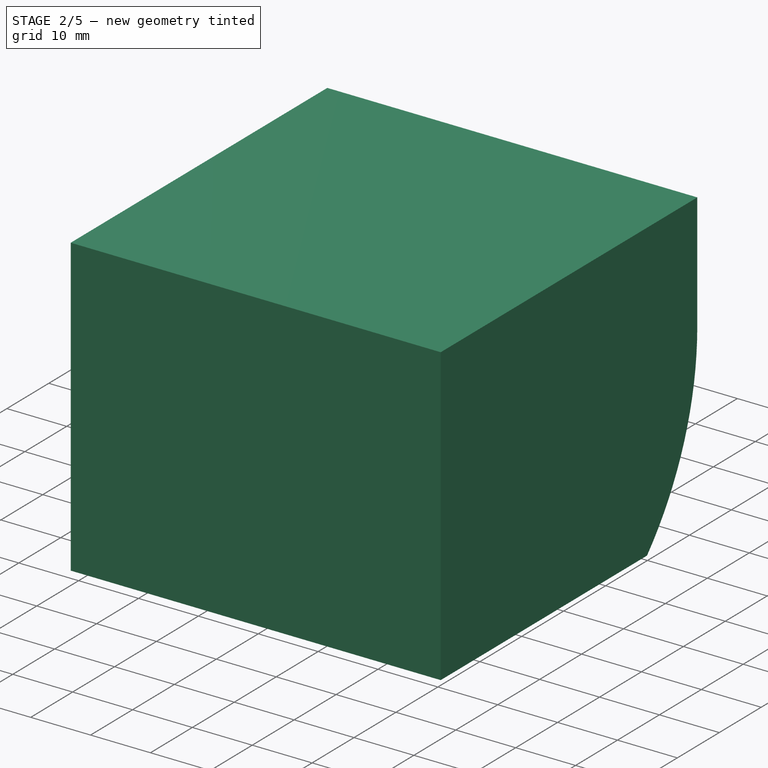
[diagram: stage 2 of 5 — iso view after this stage's code; geometry added in this stage tinted green]
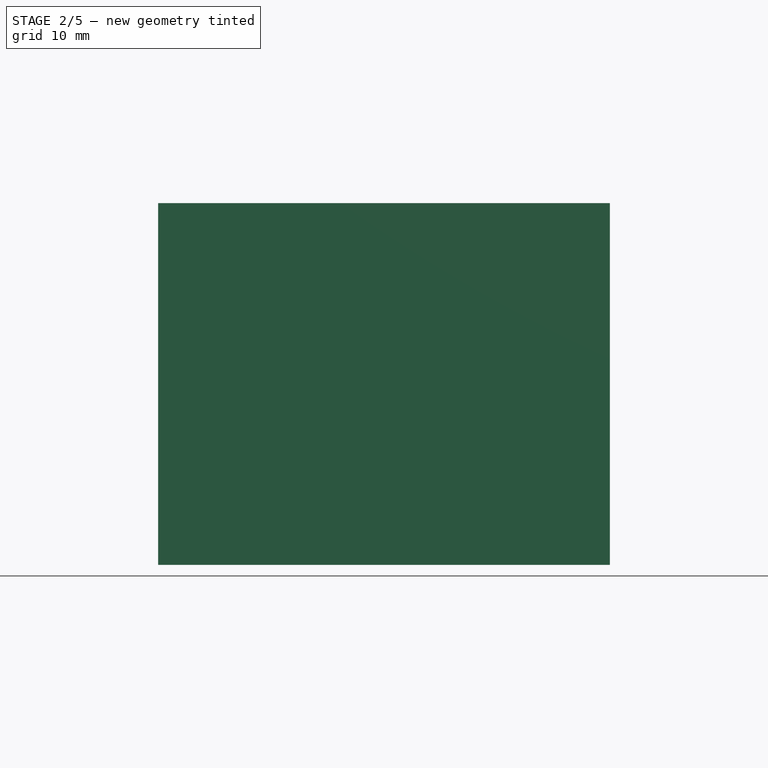
[diagram: stage 2 of 5 — front view after this stage's code; geometry added in this stage tinted green]
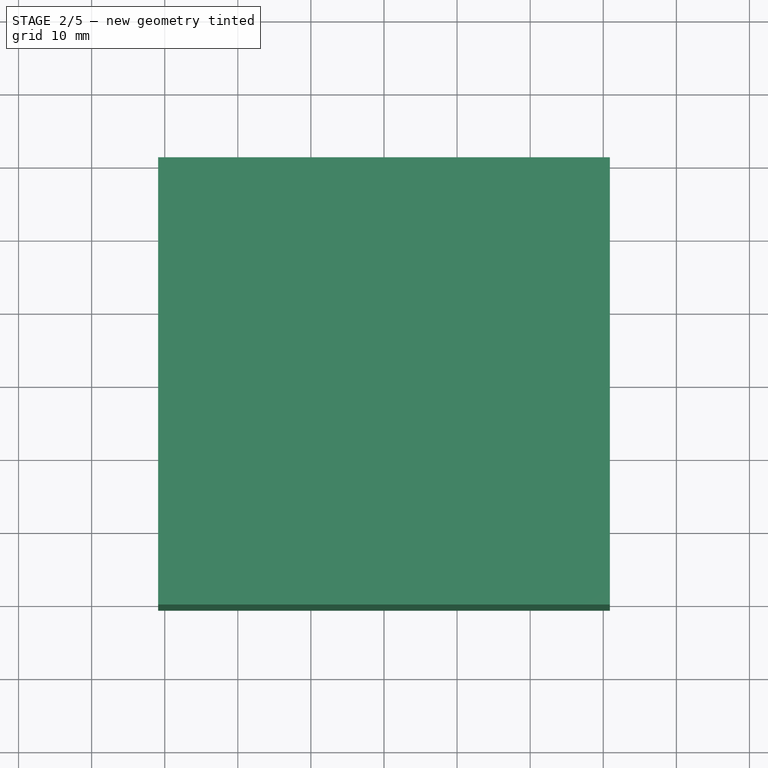
[diagram: stage 2 of 5 — top view after this stage's code; geometry added in this stage tinted green]
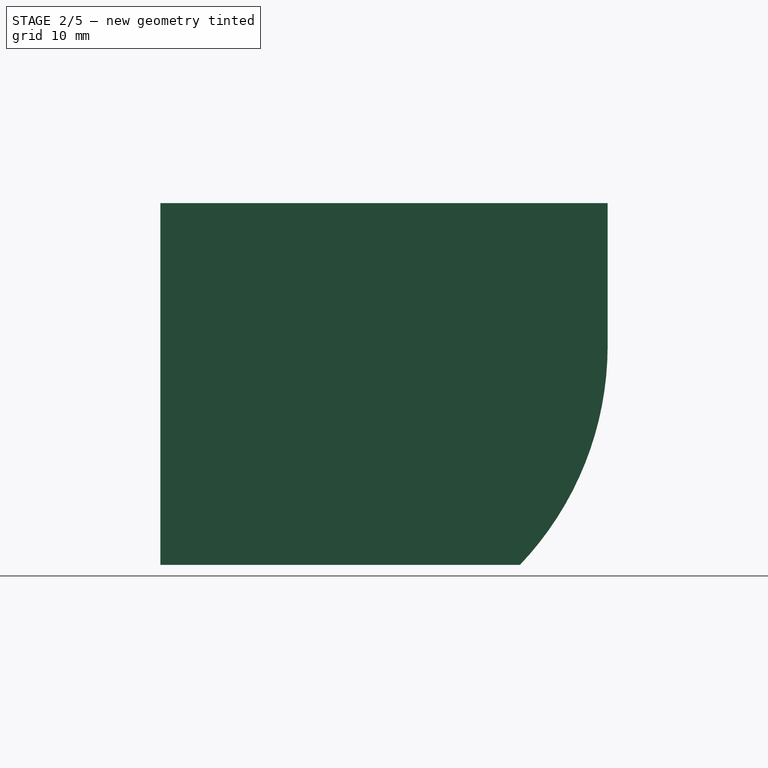
[diagram: stage 2 of 5 — right view after this stage's code; geometry added in this stage tinted green]
FEATURE [Sketcher::SketchObject] Sketch026
  ArcFitTolerance = 0
  AttachmentSupport = -> [XY_Plane013]
  FullyConstrained = true
  MakeInternals = false
  MapMode = 5
  sketch-geometry (2):
    g0: Circle CenterX=28.1 CenterY=15.6 CenterZ=0 NormalX=0 NormalY=0 NormalZ=1 AngleXU=0 Radius=1.55
    g1: LineSegment [constr] StartX=28.1 StartY=15.6 StartZ=0 EndX=26.55 EndY=15.6 EndZ=0
  constraints (6):
    c: Radius(g0) = 1.55
    c: Coincident(g1,g0)
    c: PointOnObject(g1,g0)
    c: Horizontal(g1)
    c: DistanceX(g1) = 26.55
    c: DistanceY(g0) = 15.6
FEATURE [PartDesign::Pad] Pad011
  BaseFeature = -> Pad010
  Direction = (0,0,1)
  Length = 9
  Length2 = 100
  Profile = -> Sketch026
  Suppressed = false
  Type = 0
FEATURE [Sketcher::SketchObject] Sketch027
  ArcFitTolerance = 0
  AttachmentSupport = -> [XY_Plane013]
  FullyConstrained = true
  MakeInternals = false
  MapMode = 5
  sketch-geometry (6):
    g0: LineSegment StartX=21.8 StartY=3.3 StartZ=0 EndX=12.7 EndY=3.3 EndZ=0
    g1: LineSegment StartX=12.7 StartY=3.3 StartZ=0 EndX=12.7 EndY=5.5 EndZ=0
    g2: LineSegment StartX=14.7 StartY=7.5 StartZ=0 EndX=19.8 EndY=7.5 EndZ=0
    g3: LineSegment StartX=21.8 StartY=5.5 StartZ=0 EndX=21.8 EndY=3.3 EndZ=0
    g4: ArcOfCircle CenterX=19.8 CenterY=5.5 CenterZ=0 NormalX=0 NormalY=0 NormalZ=1 AngleXU=0 Radius=2 StartAngle=6.77e-14 EndAngle=1.5708
    g5: ArcOfCircle CenterX=14.7 CenterY=5.5 CenterZ=0 NormalX=0 NormalY=0 NormalZ=1 AngleXU=0 Radius=2 StartAngle=1.5708 EndAngle=3.14159
  constraints (16):
    c: Coincident(g0,g1)
    c: Coincident(g3,g0)
    c: Horizontal(g0)
    c: Horizontal(g2)
    c: Vertical(g1)
    c: Vertical(g3)
    c: Tangent(g3,g4) = 1.5708
    c: Tangent(g2,g4) = 1.5708
    c: Tangent(g2,g5) = 1.5708
    c: Tangent(g1,g5) = 1.5708
    c: DistanceX(g0,g0) = 9.1
    c: DistanceY(g0,g2) = 4.2
    c: DistanceY(g0) = 3.3
    c: DistanceX(g3) = 21.8
    c: Equal(g5,g4)
    c: Radius(g4) = 2
FEATURE [PartDesign::Pad] Pad012
  BaseFeature = -> Pad011
  Direction = (0,0,1)
  Length = 33
  Length2 = 100
  Profile = -> Sketch027
  Suppressed = false
  Type = 0
FEATURE [PartDesign::Mirrored] Mirrored
  MirrorPlane = -> YZ_Plane014
  Suppressed = false
  TransformMode = 0
FEATURE [PartDesign::Mirrored] Mirrored001
  MirrorPlane = -> XZ_Plane013
  Suppressed = false
  TransformMode = 0
FEATURE [PartDesign::MultiTransform] MultiTransform
  BaseFeature = -> Pad012
  Originals = -> [Pad010,Pad012,Pad011]
  Suppressed = false
  TransformMode = 0
  Transformations = -> [Mirrored,Mirrored001]
FEATURE [Sketcher::SketchObject] Sketch028
  ArcFitTolerance = 0
  AttachmentSupport = -> [XZ_Plane013]
  FullyConstrained = true
  MakeInternals = false
  MapMode = 5
  Placement = pos=(0,0,0) rot=(1,0,0;1.5708rad)
  sketch-geometry (4):
    g0: LineSegment StartX=-12.75 StartY=1 StartZ=0 EndX=12.75 EndY=1 EndZ=0
    g1: LineSegment StartX=12.75 StartY=1 StartZ=0 EndX=17.5 EndY=0 EndZ=0
    g2: LineSegment StartX=17.5 StartY=0 StartZ=0 EndX=-17.5 EndY=0 EndZ=0
    g3: LineSegment StartX=-17.5 StartY=0 StartZ=0 EndX=-12.75 EndY=1 EndZ=0
  constraints (10):
    c: Coincident(g0,g1)
    c: Coincident(g1,g2)
    c: Coincident(g2,g3)
    c: Coincident(g3,g0)
    c: PointOnObject(g1,g-1)
    c: Symmetric(g0,g0,g-2)
    c: Symmetric(g1,g2,g-2)
    c: DistanceX(g2,g2) = 35
    c: DistanceX(g0,g0) = 25.5
    c: DistanceY(g1,g1) = 1
FEATURE [PartDesign::Pocket] Pocket003
  BaseFeature = -> MultiTransform
  Direction = (0,1,-2e-16)
  Length = 20
  Length2 = 100
  Midplane = true
  Profile = -> Sketch028
  Suppressed = false
  Type = 0
FEATURE [Sketcher::SketchObject] Sketch029
  ArcFitTolerance = 0
  AttachmentOffset = pos=(0,0,2) rot=(0,0,1;0rad)
  AttachmentSupport = -> [XY_Plane013]
  FullyConstrained = true
  MakeInternals = false
  MapMode = 5
  Placement = pos=(0,0,2) rot=(0,0,1;0rad)
  sketch-geometry (9):
    g0: LineSegment StartX=23.95 StartY=5 StartZ=0 EndX=12.95 EndY=5 EndZ=0
    g1: LineSegment StartX=12.95 StartY=5 StartZ=0 EndX=12.95 EndY=-5 EndZ=0
    g2: LineSegment StartX=12.95 StartY=-5 StartZ=0 EndX=23.95 EndY=-5 EndZ=0
    g3: LineSegment StartX=23.95 StartY=-5 StartZ=0 EndX=23.95 EndY=-2.25 EndZ=0
    g4: ArcOfCircle CenterX=19 CenterY=0 CenterZ=0 NormalX=0 NormalY=0 NormalZ=1 AngleXU=0 Radius=2.25 StartAngle=1.5708 EndAngle=4.71239
    g5: LineSegment StartX=19 StartY=-2.25 StartZ=0 EndX=23.95 EndY=-2.25 EndZ=0
    g6: LineSegment StartX=19 StartY=2.25 StartZ=0 EndX=23.95 EndY=2.25 EndZ=0
    g7: LineSegment StartX=23.95 StartY=2.25 StartZ=0 EndX=23.95 EndY=5 EndZ=0
    g8: GeomPoint [constr] X=16.75 Y=0 Z=0
  constraints (23):
    c: Coincident(g0,g1)
    c: Coincident(g1,g2)
    c: Coincident(g2,g3)
    c: Coincident(g7,g0)
    c: Horizontal(g0)
    c: Horizontal(g2)
    c: Vertical(g1)
    c: Symmetric(g2,g0,g-1)
    c: Tangent(g4,g6) = 1.5708
    c: Tangent(g4,g5) = -1.5708
    c: Horizontal(g5)
    c: PointOnObject(g4,g-1)
    c: Coincident(g7,g6)
    c: Tangent(g3,g7)
    c: Coincident(g5,g3)
    c: Radius(g4) = 2.25
    c: Horizontal(g6)
    c: PointOnObject(g8,g4)
    c: PointOnObject(g8,g-1)
    c: DistanceX(g4) = 19
    c: DistanceX(g0) = 23.95
    c: DistanceY(g2,g0) = 10
    c: DistanceX(g0,g0) = 11
FEATURE [PartDesign::Pad] Pad013
  BaseFeature = -> Pocket003
  Direction = (0,0,1)
  Length = 7
  Length2 = 100
  Profile = -> Sketch029
  Suppressed = false
  Type = 0
FEATURE [Sketcher::SketchObject] Sketch030
  ArcFitTolerance = 0
  AttachmentOffset = pos=(0,0,9) rot=(0,0,1;0rad)
  AttachmentSupport = -> [XY_Plane013]
  FullyConstrained = true
  MakeInternals = false
  MapMode = 5
  Placement = pos=(0,0,9) rot=(0,0,1;0rad)
  sketch-geometry (4):
    g0: ArcOfCircle CenterX=19 CenterY=0 CenterZ=0 NormalX=0 NormalY=0 NormalZ=1 AngleXU=0 Radius=5 StartAngle=1.5708 EndAngle=4.71239
    g1: LineSegment StartX=19 StartY=-5 StartZ=0 EndX=25 EndY=-5 EndZ=0
    g2: LineSegment StartX=19 StartY=5 StartZ=0 EndX=25 EndY=5 EndZ=0
    g3: LineSegment StartX=25 StartY=5 StartZ=0 EndX=25 EndY=-5 EndZ=0
  constraints (11):
    c: Tangent(g0,g2) = 1.5708
    c: Tangent(g0,g1) = -1.5708
    c: Coincident(g1,g3) = -1.5708
    c: Coincident(g2,g3) = 1.5708
    c: Horizontal(g1)
    c: PointOnObject(g0,g-1)
    c: Vertical(g3)
    c: DistanceX(g0) = 19
    c: Radius(g0) = 5
    c: Horizontal(g2)
    c: DistanceX(g2) = 25
FEATURE [PartDesign::Pocket] Pocket004
  BaseFeature = -> Pad013
  Direction = (0,0,-1)
  Length = 10
  Length2 = 100
  Profile = -> Sketch030
  Reversed = true
  Suppressed = false
  Type = 0
FEATURE [PartDesign::Mirrored] Mirrored002
  BaseFeature = -> Pocket004
  MirrorPlane = -> YZ_Plane014
  Originals = -> [Pad013,Pocket004]
  Suppressed = false
  TransformMode = 0
FEATURE [Sketcher::SketchObject] Sketch031
  ArcFitTolerance = 0
  AttachmentSupport = -> [XZ_Plane013]
  FullyConstrained = true
  MakeInternals = false
  MapMode = 5
  Placement = pos=(0,0,0) rot=(1,0,0;1.5708rad)
  sketch-geometry (4):
    g0: LineSegment StartX=0 StartY=35 StartZ=0 EndX=0 EndY=29 EndZ=0
    g1: LineSegment StartX=0 StartY=29 StartZ=0 EndX=19.5 EndY=29 EndZ=0
    g2: LineSegment StartX=19.5 StartY=29 StartZ=0 EndX=19.5 EndY=35 EndZ=0
    g3: LineSegment StartX=0 StartY=35 StartZ=0 EndX=19.5 EndY=35 EndZ=0
  constraints (12):
    c: Coincident(g0,g1)
    c: Coincident(g1,g2)
    c: Horizontal(g1)
    c: Vertical(g0)
    c: Vertical(g2)
    c: PointOnObject(g0,g-2)
    c: DistanceX(g2) = 19.5
    c: DistanceY(g2) = 35
    c: DistanceY(g2,g2) = 6
    c: Coincident(g3,g0)
    c: Coincident(g3,g2)
    c: Horizontal(g3)
FEATURE [PartDesign::Groove] Groove
  Angle = 360
  Angle2 = 60
  Axis = (-3e-16,3e-16,1)
  Base = (0,0,0)
  BaseFeature = -> Mirrored002
  Profile = -> Sketch031
  ReferenceAxis = -> Z_Axis013
  Suppressed = false
  Type = 0
FEATURE [Sketcher::SketchObject] Sketch032
  ArcFitTolerance = 0
  AttachmentSupport = -> [XY_Plane013]
  FullyConstrained = true
  MakeInternals = false
  MapMode = 5
  sketch-geometry (2):
    g0: Circle CenterX=9.5 CenterY=0 CenterZ=0 NormalX=0 NormalY=0 NormalZ=1 AngleXU=0 Radius=2.85
    g1: Circle CenterX=-9.5 CenterY=0 CenterZ=0 NormalX=0 NormalY=0 NormalZ=1 AngleXU=0 Radius=2.85
  constraints (5):
    c: PointOnObject(g0,g-1)
    c: Symmetric(g0,g1,g-2)
    c: DistanceX(g1,g0) = 19
    c: Equal(g1,g0)
    c: Radius(g0) = 2.85
FEATURE [PartDesign::Pocket] Pocket005
  BaseFeature = -> Groove
  Direction = (0,0,-1)
  Length = 5
  Length2 = 100
  Midplane = true
  Profile = -> Sketch032
  Suppressed = false
  Type = 1
FEATURE [PartDesign::Fillet] Fillet001
  Base = -> Pocket005 [Edge52]
  BaseFeature = -> Pocket005
  Radius = 4
  SupportTransform = false
  Suppressed = false
  UseAllEdges = false
FEATURE [PartDesign::Body] Body027  label="Relais"
  AllowCompound = false
  Group = -> [Sketch149,Pad027,Sketch150,Pad028,Sketch151,Pad029,Sketch152,Revolution014,MultiTransform001,LinearPattern,LinearPattern004,Sketch153,Pad030]
  Origin = -> Origin027
  Placement = pos=(8,13,-12) rot=(0.57735,0.57735,-0.57735;4.18879rad)
  Tip = -> Pad030
FEATURE [Sketcher::SketchObject] Sketch154  label="sk left"
  ArcFitTolerance = 1e-06
  AttachmentSupport = -> [YZ_Plane029]
  FullyConstrained = true
  MakeInternals = false
  MapMode = 5
  Placement = pos=(0,0,0) rot=(0.57735,0.57735,0.57735;2.0944rad)
  sketch-geometry (5):
    g0: LineSegment StartX=-30.6 StartY=1.5 StartZ=0 EndX=-30.6 EndY=-48 EndZ=0
    g1: LineSegment StartX=-30.6 StartY=-48 StartZ=0 EndX=18.6 EndY=-48 EndZ=0
    g2: LineSegment StartX=30.6 StartY=-18 StartZ=0 EndX=30.6 EndY=1.5 EndZ=0
    g3: LineSegment StartX=30.6 StartY=1.5 StartZ=0 EndX=-30.6 EndY=1.5 EndZ=0
    g4: ArcOfCircle CenterX=-12.9 CenterY=-18 CenterZ=0 NormalX=0 NormalY=0 NormalZ=1 AngleXU=0 Radius=43.5 StartAngle=5.52217 EndAngle=6.28319
  constraints (14):
    c: Coincident(g0,g1)
    c: Coincident(g2,g3)
    c: Coincident(g3,g0)
    c: Vertical(g0)
    c: Vertical(g2)
    c: Horizontal(g1)
    c: Coincident(g1,g4)
    c: Tangent(g2,g4) = -1.5708
    c: Symmetric(g2,g0,g-2)
    c: DistanceX(g3,g3) = 61.2
    c: Distance(g2,g1) = 30
    c: Distance(g1,g2) = 12
    c: Distance(g2,g-1) = 1.5
    c: Distance(g0,g-1) = 48
FEATURE [Sketcher::SketchObject] Sketch155  label="sk front"
  ArcFitTolerance = 1e-06
  AttachmentSupport = -> [XZ_Plane028]
  ExternalGeometry = -> [Sketch154]
  FullyConstrained = true
  MakeInternals = false
  MapMode = 5
  Placement = pos=(0,0,0) rot=(1,0,0;1.5708rad)
  sketch-geometry (4):
    g0: LineSegment StartX=-30.9 StartY=0 StartZ=0 EndX=-30.9 EndY=-48 EndZ=0
    g1: LineSegment StartX=-30.9 StartY=-48 StartZ=0 EndX=30.9 EndY=-48 EndZ=0
    g2: LineSegment StartX=30.9 StartY=-48 StartZ=0 EndX=30.9 EndY=0 EndZ=0
    g3: LineSegment StartX=30.9 StartY=0 StartZ=0 EndX=-30.9 EndY=0 EndZ=0
  constraints (11):
    c: Coincident(g0,g1)
    c: Coincident(g1,g2)
    c: Coincident(g2,g3)
    c: Coincident(g3,g0)
    c: Vertical(g0)
    c: Vertical(g2)
    c: Horizontal(g1)
    c: PointOnObject(g0,g-1)
    c: PointOnObject(g-4,g1)
    c: Symmetric(g0,g2,g-2)
    c: DistanceX(g3,g3) = 61.8
FEATURE [PartDesign::SubShapeBinder] Binder003  label="sk ref ESP"
  BindCopyOnChange = 0
  BindMode = 0
  ClaimChildren = false
  Context = -> Body028 [Binder003.]
  Fuse = false
  MakeFace = true
  OffsetFill = false
  OffsetIntersection = false
  OffsetJoinType = 0
  OffsetOpenResult = false
  PartialLoad = false
  Refine = true
  Relative = true
  Support = -> [Compound004[Face110,Face414,Face993,Face128]]
  _Version = 2
FEATURE [Sketcher::SketchObject] Sketch156  label="sk ESP pocket front"
  ArcFitTolerance = 1e-06
  AttachmentSupport = -> [XZ_Plane028]
  ExternalGeometry = -> [Binder003]
  FullyConstrained = true
  MakeInternals = false
  MapMode = 5
  Placement = pos=(0,0,0) rot=(1,0,0;1.5708rad)
  sketch-geometry (12):
    g0: LineSegment StartX=-16 StartY=-40.5 StartZ=0 EndX=-16 EndY=-42.5 EndZ=0
    g1: LineSegment StartX=-16 StartY=-42.5 StartZ=0 EndX=-14.5 EndY=-42.5 EndZ=0
    g2: LineSegment StartX=16 StartY=-42.5 StartZ=0 EndX=16 EndY=-40.5 EndZ=0
    g3: LineSegment StartX=16 StartY=-40.5 StartZ=0 EndX=14.5 EndY=-40.5 EndZ=0
    g4: LineSegment StartX=-14.5 StartY=-37.465 StartZ=0 EndX=-14.5 EndY=-40.5 EndZ=0
    g5: LineSegment StartX=-14.5 StartY=-44.5 StartZ=0 EndX=14.5 EndY=-44.5 EndZ=0
    g6: LineSegment StartX=14.5 StartY=-44.5 StartZ=0 EndX=14.5 EndY=-42.5 EndZ=0
    g7: LineSegment StartX=14.5 StartY=-37.465 StartZ=0 EndX=-14.5 EndY=-37.465 EndZ=0
    g8: LineSegment StartX=-14.5 StartY=-42.5 StartZ=0 EndX=-14.5 EndY=-44.5 EndZ=0
    g9: LineSegment StartX=-14.5 StartY=-40.5 StartZ=0 EndX=-16 EndY=-40.5 EndZ=0
    g10: LineSegment StartX=14.5 StartY=-42.5 StartZ=0 EndX=16 EndY=-42.5 EndZ=0
    g11: LineSegment StartX=14.5 StartY=-40.5 StartZ=0 EndX=14.5 EndY=-37.465 EndZ=0
  constraints (37):
    c: Coincident(g0,g1)
    c: Coincident(g10,g2)
    c: Coincident(g2,g3)
    c: Coincident(g9,g0)
    c: Vertical(g0)
    c: Vertical(g2)
    c: Horizontal(g1)
    c: Horizontal(g3)
    c: Coincident(g8,g5)
    c: Coincident(g5,g6)
    c: Coincident(g11,g7)
    c: Coincident(g7,g4)
    c: Vertical(g4)
    c: Vertical(g6)
    c: Horizontal(g5)
    c: Horizontal(g7)
    c: PointOnObject(g4,g9)
    c: PointOnObject(g9,g4)
    c: Coincident(g1,g8)
    c: Coincident(g11,g3)
    c: Coincident(g6,g10)
    c: Horizontal(g9)
    c: Distance(g-8,g2) = 0.5
    c: DistanceY(g2,g-4) = 0.5
    c: Distance(g-8,g3) = 0.5
    c: PointOnObject(g3,g9)
    c: Distance(g-8,g11) = 1
    c: Vertical(g11)
    c: PointOnObject(g6,g11)
    c: Distance(g-5,g7) = 0.5
    c: DistanceY(g6,g6) = 2
    c: Horizontal(g10)
    c: Equal(g9,g3)
    c: Equal(g1,g9)
    c: Vertical(g8)
    c: PointOnObject(g1,g10)
    c: Distance(g-3,g0) = 0.5
FEATURE [PartDesign::SubShapeBinder] Binder004  label="sk ref relais"
  BindCopyOnChange = 0
  BindMode = 0
  ClaimChildren = false
  Context = -> Body028 [Binder004.]
  Fuse = false
  MakeFace = true
  OffsetFill = false
  OffsetIntersection = false
  OffsetJoinType = 0
  OffsetOpenResult = false
  PartialLoad = false
  Refine = true
  Relative = true
  Support = -> [Body013,Body027[Pad030.Face7,Pad030.Face6,Pad030.Face8,Pad030.Face1,Pad030.Face56,Pad030.Face5]]
  _Version = 2
FEATURE [Sketcher::SketchObject] Sketch157  label="sk relais pocket front"
  ArcFitTolerance = 1e-06
  AttachmentSupport = -> [XZ_Plane028]
  ExternalGeometry = -> [Binder004]
  FullyConstrained = true
  MakeInternals = false
  MapMode = 5
  Placement = pos=(0,0,0) rot=(1,0,0;1.5708rad)
  sketch-geometry (4):
    g0: LineSegment StartX=-10.4 StartY=-2.85 StartZ=0 EndX=-10.4 EndY=-21.15 EndZ=0
    g1: LineSegment StartX=-10.4 StartY=-21.15 StartZ=0 EndX=10.8 EndY=-21.15 EndZ=0
    g2: LineSegment StartX=10.8 StartY=-21.15 StartZ=0 EndX=10.8 EndY=-2.85 EndZ=0
    g3: LineSegment StartX=10.8 StartY=-2.85 StartZ=0 EndX=-10.4 EndY=-2.85 EndZ=0
  constraints (12):
    c: Coincident(g0,g1)
    c: Coincident(g1,g2)
    c: Coincident(g2,g3)
    c: Coincident(g3,g0)
    c: Vertical(g0)
    c: Vertical(g2)
    c: Horizontal(g1)
    c: Horizontal(g3)
    c: Distance(g-5,g2) = 1
    c: Distance(g-3,g3) = 1
    c: Distance(g-6,g0) = 1
    c: Distance(g-4,g1) = 1
FEATURE [PartDesign::SubShapeBinder] Binder005  label="hs ref front"
  BindCopyOnChange = 0
  BindMode = 0
  ClaimChildren = false
  Context = -> Body029 [Binder005.]
  Fuse = false
  MakeFace = true
  OffsetFill = false
  OffsetIntersection = false
  OffsetJoinType = 0
  OffsetOpenResult = false
  PartialLoad = false
  Refine = true
  Relative = true
  Support = -> [Body028[Sketch154.]]
  _Version = 2
FEATURE [PartDesign::SubShapeBinder] Binder006  label="hs ref right"
  BindCopyOnChange = 0
  BindMode = 0
  ClaimChildren = false
  Context = -> Body029 [Binder006.]
  Fuse = false
  MakeFace = true
  OffsetFill = false
  OffsetIntersection = false
  OffsetJoinType = 0
  OffsetOpenResult = false
  PartialLoad = false
  Refine = true
  Relative = true
  Support = -> [Body028[Sketch155.]]
  _Version = 2
FEATURE [PartDesign::SubShapeBinder] Binder007  label="hs ref ESP pocket"
  BindCopyOnChange = 0
  BindMode = 0
  ClaimChildren = false
  Context = -> Body029 [Binder007.]
  Fuse = false
  MakeFace = true
  OffsetFill = false
  OffsetIntersection = false
  OffsetJoinType = 0
  OffsetOpenResult = false
  PartialLoad = false
  Refine = true
  Relative = true
  Support = -> [Body028[Sketch156.]]
  _Version = 2
FEATURE [PartDesign::SubShapeBinder] Binder008  label="hs ref relais pocket"
  BindCopyOnChange = 0
  BindMode = 0
  ClaimChildren = false
  Context = -> Body029 [Binder008.]
  Fuse = false
  MakeFace = true
  OffsetFill = false
  OffsetIntersection = false
  OffsetJoinType = 0
  OffsetOpenResult = false
  PartialLoad = false
  Refine = true
  Relative = true
  Support = -> [Body028[Sketch157.]]
  _Version = 2
FEATURE [Sketcher::SketchObject] Sketch158  label="sk relais pocket right"
  ArcFitTolerance = 1e-06
  AttachmentSupport = -> [YZ_Plane029]
  ExternalGeometry = -> [Binder004,Sketch157]
  FullyConstrained = true
  MakeInternals = false
  MapMode = 5
  Placement = pos=(0,0,0) rot=(0.57735,0.57735,0.57735;2.0944rad)
  sketch-geometry (4):
    g0: LineSegment StartX=-27.7 StartY=-2.85 StartZ=0 EndX=-27.7 EndY=-21.15 EndZ=0
    g1: LineSegment StartX=-27.7 StartY=-21.15 StartZ=0 EndX=14 EndY=-21.15 EndZ=0
    g2: LineSegment StartX=14 StartY=-21.15 StartZ=0 EndX=14 EndY=-2.85 EndZ=0
    g3: LineSegment StartX=14 StartY=-2.85 StartZ=0 EndX=-27.7 EndY=-2.85 EndZ=0
  constraints (12):
    c: Coincident(g0,g1)
    c: Coincident(g1,g2)
    c: Coincident(g2,g3)
    c: Coincident(g3,g0)
    c: Vertical(g0)
    c: Vertical(g2)
    c: Horizontal(g1)
    c: Horizontal(g3)
    c: PointOnObject(g-6,g1)
    c: PointOnObject(g-5,g3)
    c: Distance(g-4,g2) = 1
    c: Distance(g-3,g0) = 1
FEATURE [Sketcher::SketchObject] Sketch159  label="sk ESP pocket right"
  ArcFitTolerance = 1e-06
  AttachmentSupport = -> [YZ_Plane029]
  ExternalGeometry = -> [Binder003,Sketch156]
  FullyConstrained = true
  MakeInternals = false
  MapMode = 5
  Placement = pos=(0,0,0) rot=(0.57735,0.57735,0.57735;2.0944rad)
  sketch-geometry (4):
    g0: LineSegment StartX=-29.5 StartY=-37.465 StartZ=0 EndX=-29.5 EndY=-44.5 EndZ=0
    g1: LineSegment StartX=-29.5 StartY=-44.5 StartZ=0 EndX=9.9 EndY=-44.5 EndZ=0
    g2: LineSegment StartX=9.9 StartY=-44.5 StartZ=0 EndX=9.9 EndY=-37.465 EndZ=0
    g3: LineSegment StartX=9.9 StartY=-37.465 StartZ=0 EndX=-29.5 EndY=-37.465 EndZ=0
  constraints (12):
    c: Coincident(g0,g1)
    c: Coincident(g1,g2)
    c: Coincident(g2,g3)
    c: Coincident(g3,g0)
    c: Vertical(g0)
    c: Vertical(g2)
    c: Horizontal(g1)
    c: Horizontal(g3)
    c: PointOnObject(g-6,g1)
    c: PointOnObject(g-5,g3)
    c: PointOnObject(g-3,g0)
    c: Distance(g-4,g2) = 0.4
FEATURE [Sketcher::SketchObject] Sketch160  label="sk separation"
  ArcFitTolerance = 1e-06
  AttachmentSupport = -> [YZ_Plane029]
  ExternalGeometry = -> [Sketch159,Sketch154]
  FullyConstrained = true
  MakeInternals = false
  MapMode = 5
  Placement = pos=(0,0,0) rot=(0.57735,0.57735,0.57735;2.0944rad)
  sketch-geometry (3):
    g0: LineSegment StartX=9.5 StartY=-48 StartZ=0 EndX=9.5 EndY=0 EndZ=0
    g1: LineSegment StartX=9.9 StartY=-48 StartZ=0 EndX=9.9 EndY=0 EndZ=0
    g2: LineSegment StartX=10.3 StartY=-48 StartZ=0 EndX=10.3 EndY=0 EndZ=0
  constraints (11):
    c: PointOnObject(g0,g-1)
    c: Vertical(g0)
    c: PointOnObject(g1,g-1)
    c: Vertical(g1)
    c: PointOnObject(g2,g-1)
    c: Vertical(g2)
    c: Symmetric(g2,g0,g1)
    c: PointOnObject(g0,g-4)
    c: PointOnObject(g1,g-4)
    c: Distance(g0,g2) = 0.8
    c: PointOnObject(g-3,g1)
FEATURE [PartDesign::Plane] DatumPlane  label="hs pln rear"
  AttachmentSupport = -> [Binder006,YZ_Plane030]
  Length = 85.083
  MapMode = 6
  Placement = pos=(-30.9,-1.07e-14,-48) rot=(0,1,0;1.5708rad)
  ResizeMode = 0
  Width = 62.083
FEATURE [PartDesign::Plane] DatumPlane004  label="hs pln front"
  AttachmentSupport = -> [Binder006,YZ_Plane030]
  Length = 85.083
  MapMode = 6
  Placement = pos=(30.9,-1.07e-14,-48) rot=(0,1,0;1.5708rad)
  ResizeMode = 0
  Width = 62.083
FEATURE [Sketcher::SketchObject] Sketch161
  ArcFitTolerance = 1e-06
  AttachmentSupport = -> [DatumPlane004]
  ExternalGeometry = -> [Binder005]
  FullyConstrained = true
  MakeInternals = false
  MapMode = 5
  Placement = pos=(30.9,-1.07e-14,-48) rot=(0,1,0;1.5708rad)
  sketch-geometry (5):
    g0: LineSegment StartX=-49.5 StartY=-30.6 StartZ=0 EndX=-7.1e-15 EndY=-30.6 EndZ=0
    g1: LineSegment StartX=-7.1e-15 StartY=-30.6 StartZ=0 EndX=-7.1e-15 EndY=18.6 EndZ=0
    g2: LineSegment StartX=-30 StartY=30.6 StartZ=0 EndX=-49.5 EndY=30.6 EndZ=0
    g3: LineSegment StartX=-49.5 StartY=30.6 StartZ=0 EndX=-49.5 EndY=-30.6 EndZ=0
    g4: ArcOfCircle CenterX=-30 CenterY=-12.9 CenterZ=0 NormalX=0 NormalY=0 NormalZ=1 AngleXU=0 Radius=43.5 StartAngle=0.809784 EndAngle=1.5708
  constraints (12):
    c: Coincident(g0,g1)
    c: Coincident(g2,g3)
    c: Coincident(g3,g0)
    c: Horizontal(g2)
    c: Vertical(g1)
    c: Vertical(g3)
    c: Coincident(g0,g-4)
    c: Coincident(g0,g-4)
    c: Coincident(g1,g4)
    c: Tangent(g2,g4) = -1.5708
    c: Coincident(g2,g-3)
    c: Equal(g-3,g4)
FEATURE [PartDesign::Pad] Pad031
  Direction = (1,0,2e-16)
  Length = 10
  Length2 = 10
  Placement = pos=(30.9,-1.07e-14,-48) rot=(0,1,0;1.5708rad)
  Profile = -> Sketch161
  ReferenceAxis = -> Sketch161 [N_Axis]
  Refine = true
  Suppressed = false
  Type = 3
  UpToFace = -> DatumPlane
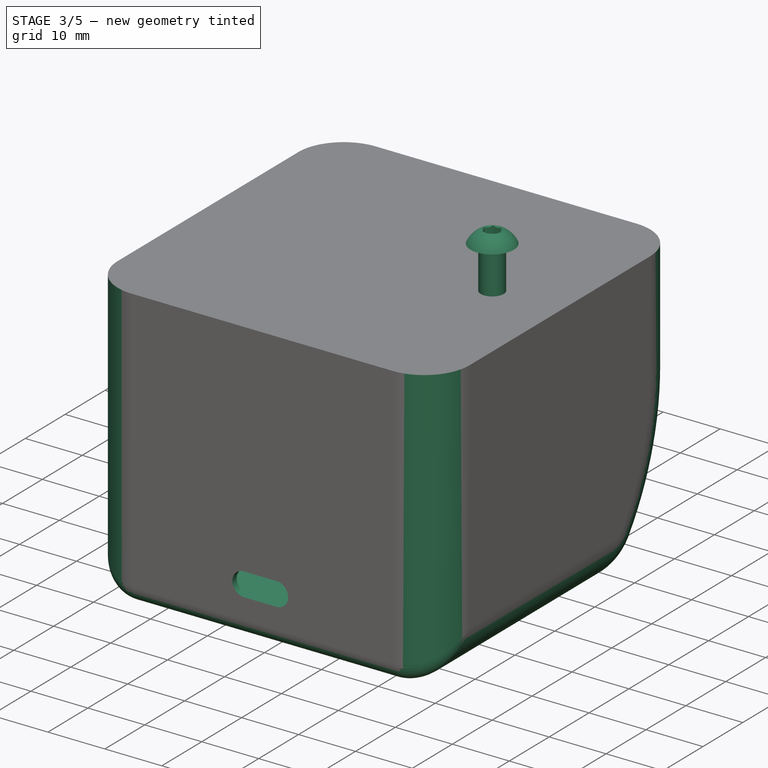
[diagram: stage 3 of 5 — iso view after this stage's code; geometry added in this stage tinted green]
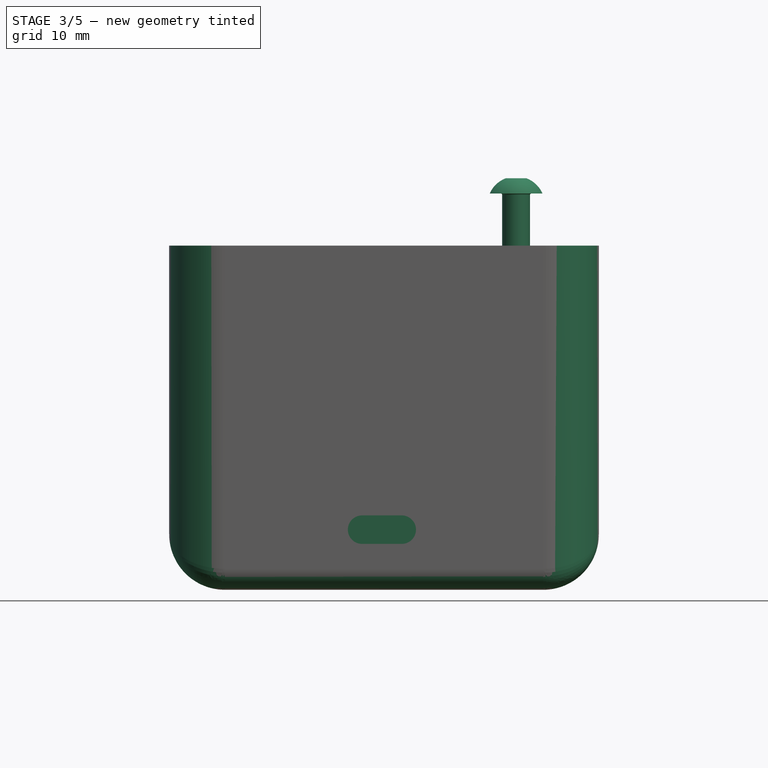
[diagram: stage 3 of 5 — front view after this stage's code; geometry added in this stage tinted green]
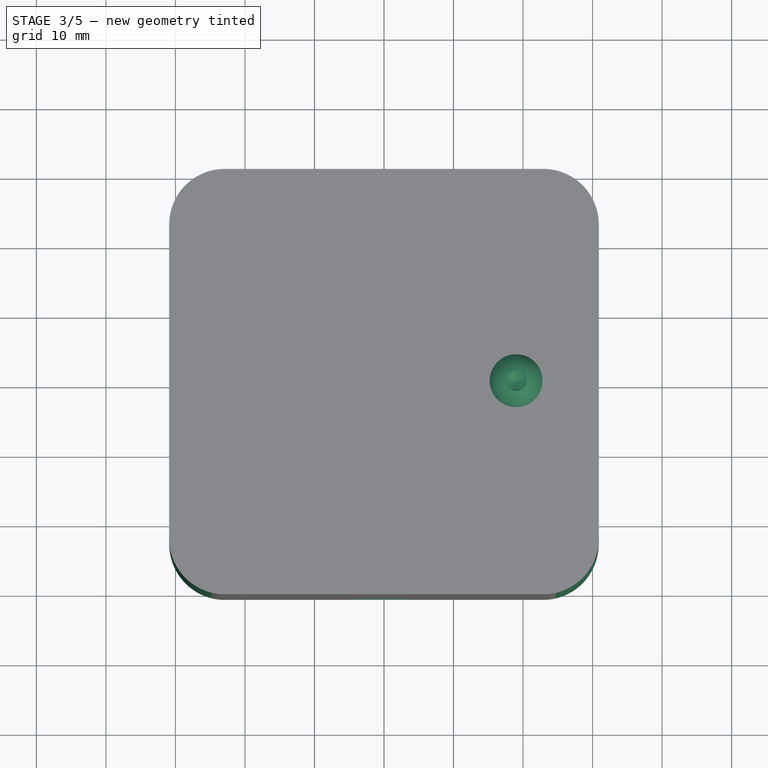
[diagram: stage 3 of 5 — top view after this stage's code; geometry added in this stage tinted green]
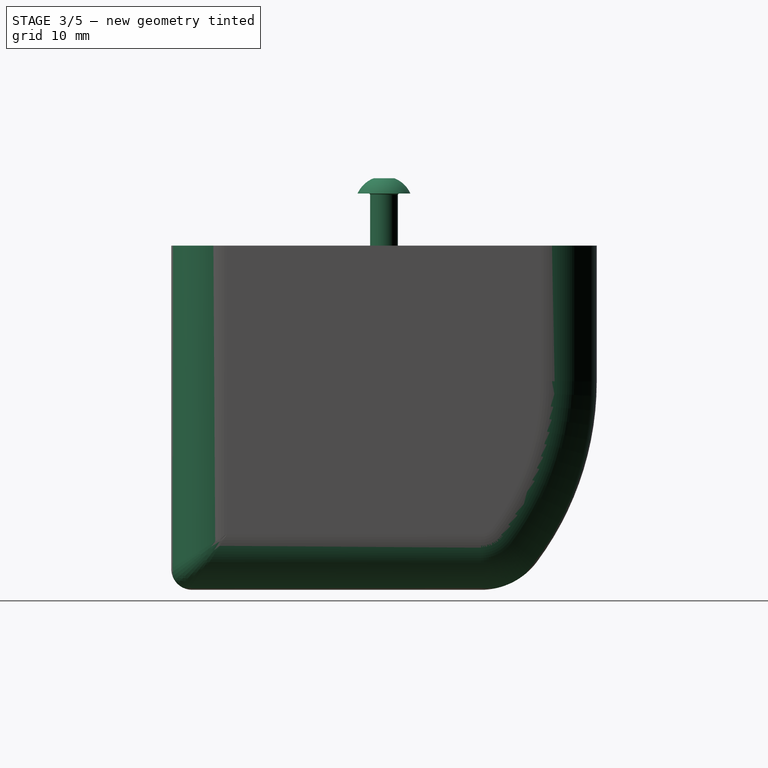
[diagram: stage 3 of 5 — right view after this stage's code; geometry added in this stage tinted green]
FEATURE [PartDesign::Body] Body013  label="Wallsocket"
  AllowCompound = false
  Group = -> [Sketch023,Pad009,Sketch024,Pocket002,Sketch025,Pad010,Sketch026,Pad011,Sketch027,Pad012,MultiTransform,Mirrored,Mirrored001,Sketch028,Pocket003,Sketch029,Pad013,Sketch030,Pocket004,Mirrored002,Sketch031,Groove,Sketch032,Pocket005,Fillet001]
  Origin = -> Origin013
  Tip = -> Fillet001
FEATURE [Sketcher::SketchObject] Sketch039  label="c cable trj"
  ArcFitTolerance = 0
  AttachmentOffset = pos=(0,0,-18) rot=(0,0,1;0rad)
  AttachmentSupport = -> [XZ_Plane015]
  FullyConstrained = true
  MakeInternals = false
  MapMode = 5
  Placement = pos=(0,18,-4e-15) rot=(1,0,0;1.5708rad)
  sketch-geometry (3):
    g0: LineSegment StartX=0 StartY=0 StartZ=0 EndX=0 EndY=-22 EndZ=0
    g1: ArcOfCircle CenterX=-12 CenterY=-22 CenterZ=0 NormalX=0 NormalY=0 NormalZ=1 AngleXU=0 Radius=12 StartAngle=4.71239 EndAngle=6.28319
    g2: LineSegment StartX=-12 StartY=-34 StartZ=0 EndX=-50 EndY=-34 EndZ=0
  constraints (8):
    c: Vertical(g0)
    c: Tangent(g0,g1) = 1.5708
    c: Tangent(g2,g1) = 1.5708
    c: Horizontal(g2)
    c: DistanceY(g2,g-1) = 34
    c: Radius(g1) = 12
    c: DistanceX(g2,g-1) = 50
    c: Coincident(g0,g-1)
FEATURE [Part::FeaturePython] Screw002  label="M4x20-Screw002"  # WARN: FeaturePython — macro-defined, semantics opaque (R4)
  Diameter = 2
  Invert = false
  LeftHanded = false
  Length = 6
  LengthCustom = 20
  MatchOuter = false
  Placement = pos=(19,0,9) rot=(0,0,1;0rad)
  Thread = false
  Type = 84
FEATURE [Part::FeaturePython] Nut002  label="M4-Nut001"  # WARN: FeaturePython — macro-defined, semantics opaque (R4)
  Diameter = 6
  Invert = false
  LeftHanded = false
  MatchOuter = false
  Placement = pos=(19,0,-5.8) rot=(-0.707107,0.707107,0;3.14159rad)
  Thread = false
  Type = 31
FEATURE [PartDesign::Body] Body  label="Capacitor 1 mF"
  AllowCompound = false
  Group = -> [Binder,Binder002,DatumPoint,DatumPoint001,Binder001,DatumPlane002,Sketch,Pad]
  Origin = -> Origin
  Tip = -> Pad
FEATURE [PartDesign::Plane] DatumPlane003  label="c cable pln crs"
  AttachmentSupport = -> [Sketch039]
  Length = 87.2474
  MapMode = 7
  Placement = pos=(0,18,-4e-15) rot=(0,0,1;0rad)
  ResizeMode = 0
  Width = 62.2474
FEATURE [Sketcher::SketchObject] Sketch119  label="screw core 001"
  ArcFitTolerance = 0
  AttachmentSupport = -> [XZ_Plane023]
  FullyConstrained = true
  MakeInternals = false
  MapMode = 5
  Placement = pos=(0,0,0) rot=(1,0,0;1.5708rad)
  sketch-geometry (5):
    g0: LineSegment StartX=0 StartY=0 StartZ=0 EndX=2.65 EndY=0 EndZ=0
    g1: LineSegment StartX=2.65 StartY=0 StartZ=0 EndX=1.1 EndY=-1.55 EndZ=0
    g2: LineSegment StartX=1.1 StartY=-1.55 StartZ=0 EndX=1.1 EndY=-14.0947 EndZ=0
    g3: LineSegment StartX=1.1 StartY=-14.0947 StartZ=0 EndX=0 EndY=-16 EndZ=0
    g4: LineSegment StartX=0 StartY=-16 StartZ=0 EndX=0 EndY=0 EndZ=0
  constraints (14):
    c: Coincident(g-1,g0)
    c: PointOnObject(g0,g-1)
    c: Coincident(g0,g1)
    c: Coincident(g1,g2)
    c: Vertical(g2)
    c: Coincident(g2,g3)
    c: PointOnObject(g3,g-2)
    c: Coincident(g3,g4)
    c: Coincident(g4,g0)
    c: DistanceX(g0,g0) = 2.65
    c: Angle(g0,g1) = 0.785398
    c: DistanceX(g1) = 1.1
    c: DistanceY(g4,g4) = 16
    c: Angle(g3,g4) = 0.523599
FEATURE [PartDesign::Revolution] Revolution  label="Screw core 001"
  Angle = 360
  Angle2 = 60
  Axis = (1e-16,1e-16,1)
  Base = (0,0,0)
  Placement = pos=(0,0,0) rot=(1,0,0;1.5708rad)
  Profile = -> Sketch119
  ReferenceAxis = -> Z_Axis023
  Reversed = true
  Suppressed = false
  Type = 0
FEATURE [Sketcher::SketchObject] Sketch001  label="screw helix 001"
  ArcFitTolerance = 0
  AttachmentSupport = -> [XZ_Plane023]
  ExternalGeometry = -> [Sketch119]
  FullyConstrained = true
  MakeInternals = false
  MapMode = 5
  Placement = pos=(0,0,0) rot=(1,0,0;1.5708rad)
  sketch-geometry (4):
    g0: LineSegment StartX=1.1 StartY=-1.05 StartZ=0 EndX=1.5 EndY=-1.3 EndZ=0
    g1: LineSegment StartX=1.5 StartY=-1.3 StartZ=0 EndX=1.1 EndY=-1.55 EndZ=0
    g2: LineSegment [constr] StartX=1.5 StartY=-1.3 StartZ=0 EndX=0.94375 EndY=-1.3 EndZ=0
    g3: ArcOfCircle CenterX=0.94375 CenterY=-1.3 CenterZ=0 NormalX=0 NormalY=0 NormalZ=1 AngleXU=0 Radius=0.294812 StartAngle=1.0122 EndAngle=5.27099
  constraints (10):
    c: Coincident(g0,g1)
    c: Coincident(g2,g0)
    c: Symmetric(g1,g0,g2)
    c: DistanceY(g1,g0) = 0.5
    c: Coincident(g1,g-3)
    c: Tangent(g3,g1) = 1.5708
    c: Tangent(g3,g0) = 1.5708
    c: DistanceX(g0) = 1.5
    c: Coincident(g2,g3)
    c: Horizontal(g2)
FEATURE [Sketcher::SketchObject] Sketch002  label="screw driver pocket 001"
  ArcFitTolerance = 0
  AttachmentSupport = -> [XZ_Plane023]
  ExternalGeometry = -> [Sketch119]
  FullyConstrained = true
  MakeInternals = false
  MapMode = 5
  Placement = pos=(0,0,0) rot=(1,0,0;1.5708rad)
  sketch-geometry (4):
    g0: LineSegment StartX=1.94289 StartY=0 StartZ=0 EndX=0.5 EndY=-1.44289 EndZ=0
    g1: LineSegment StartX=0.5 StartY=-1.44289 StartZ=0 EndX=-0.5 EndY=-1.44289 EndZ=0
    g2: LineSegment StartX=-0.5 StartY=-1.44289 StartZ=0 EndX=-1.94289 EndY=0 EndZ=0
    g3: LineSegment StartX=-1.94289 StartY=0 StartZ=0 EndX=1.94289 EndY=0 EndZ=0
  constraints (10):
    c: PointOnObject(g0,g-1)
    c: Coincident(g0,g1)
    c: Coincident(g1,g2)
    c: Coincident(g2,g3)
    c: Coincident(g3,g0)
    c: Symmetric(g0,g2,g-2)
    c: Symmetric(g0,g1,g-2)
    c: Parallel(g-3,g0)
    c: Distance(g-3,g0) = 0.5
    c: DistanceX(g1,g1) = 1
FEATURE [PartDesign::AdditiveHelix] AdditiveHelix  label="Screw helix 001"
  Angle = 0
  Axis = (0,2e-16,1)
  Base = (0,0,0)
  BaseFeature = -> Revolution
  Growth = 0
  HasBeenEdited = true
  Height = 8.5
  LeftHanded = false
  Mode = 0
  Outside = false
  Pitch = 1.2
  Placement = pos=(0,0,0) rot=(1,0,0;1.5708rad)
  Profile = -> Sketch001
  ReferenceAxis = -> Sketch001 [V_Axis]
  Reversed = true
  Suppressed = false
  Tolerance = 0.1
  Turns = 7.08333
FEATURE [PartDesign::Pocket] Pocket034  label="Screw driver pocket A 001"
  BaseFeature = -> AdditiveHelix
  Direction = (0,1,-2e-16)
  Length = 0.6
  Length2 = 5
  Midplane = true
  Placement = pos=(0,0,0) rot=(1,0,0;1.5708rad)
  Profile = -> Sketch002
  ReferenceAxis = -> Sketch002 [N_Axis]
  Suppressed = false
  Type = 0
FEATURE [PartDesign::PolarPattern] PolarPattern  label="Screw driver pocket B 001"
  Angle = 90
  Axis = -> Z_Axis023
  BaseFeature = -> Pocket034
  Mode = 0
  Occurrences = 2
  Offset = 120
  Originals = -> [Pocket034]
  Placement = pos=(0,0,0) rot=(1,0,0;1.5708rad)
  Suppressed = false
  TransformMode = 0
FEATURE [PartDesign::Fillet] Fillet
  Base = -> Pad031 [Edge9]
  BaseFeature = -> Pad031
  Placement = pos=(30.9,-1.07e-14,-48) rot=(0,1,0;1.5708rad)
  Radius = 10
  Refine = true
  SupportTransform = false
  Suppressed = false
  UseAllEdges = false
FEATURE [PartDesign::Fillet] Fillet002
  Base = -> Fillet [Edge6,Edge18,Edge3,Edge12]
  BaseFeature = -> Fillet
  Placement = pos=(30.9,-1.07e-14,-48) rot=(0,1,0;1.5708rad)
  Radius = 8
  Refine = true
  SupportTransform = false
  Suppressed = false
  UseAllEdges = false
FEATURE [PartDesign::Body] Body015  label="Cable"
  AllowCompound = false
  Group = -> [Sketch038,Sketch039,DatumPlane003,AdditivePipe,Binder029]
  Origin = -> Origin015
  Tip = -> AdditivePipe
FEATURE [PartDesign::SubShapeBinder] Binder030  label="hs ref cable crs"
  BindCopyOnChange = 0
  BindMode = 0
  ClaimChildren = false
  Context = -> Body029 [Binder030.]
  Fuse = false
  MakeFace = true
  OffsetFill = false
  OffsetIntersection = false
  OffsetJoinType = 0
  OffsetOpenResult = false
  PartialLoad = false
  Refine = true
  Relative = true
  Support = -> [Body015[Sketch038.]]
  _Version = 2
FEATURE [PartDesign::SubShapeBinder] Binder031  label="hs ref cable trj"
  BindCopyOnChange = 0
  BindMode = 0
  ClaimChildren = false
  Context = -> Body029 [Binder031.]
  Fuse = false
  MakeFace = true
  OffsetFill = false
  OffsetIntersection = false
  OffsetJoinType = 0
  OffsetOpenResult = false
  PartialLoad = false
  Refine = true
  Relative = true
  Support = -> [Body015[Sketch039.]]
  _Version = 2
FEATURE [Sketcher::SketchObject] Sketch188  label="hs cable crs"
  ArcFitTolerance = 1e-06
  AttachmentSupport = -> [XY_Plane029]
  ExternalGeometry = -> [Binder030]
  FullyConstrained = true
  MakeInternals = false
  MapMode = 5
  sketch-geometry (4):
    g0: ArcOfCircle CenterX=-1e-16 CenterY=7.6 CenterZ=0 NormalX=0 NormalY=0 NormalZ=1 AngleXU=0 Radius=2 StartAngle=3.14159 EndAngle=6.28319
    g1: ArcOfCircle CenterX=0 CenterY=9.9 CenterZ=0 NormalX=0 NormalY=0 NormalZ=1 AngleXU=0 Radius=2 StartAngle=-1.4699e-12 EndAngle=3.14159
    g2: LineSegment StartX=-2 StartY=7.6 StartZ=0 EndX=-2 EndY=9.9 EndZ=0
    g3: LineSegment StartX=2 StartY=7.6 StartZ=0 EndX=2 EndY=9.9 EndZ=0
  constraints (8):
    c: Tangent(g0,g2) = 1.5708
    c: Tangent(g0,g3) = -1.5708
    c: Tangent(g1,g2) = 1.5708
    c: Tangent(g1,g3) = -1.5708
    c: Equal(g0,g1)
    c: Equal(g1,g-3)
    c: Coincident(g1,g-3)
    c: Coincident(g0,g-4)
FEATURE [Sketcher::SketchObject] Sketch189  label="hs cable trj"
  ArcFitTolerance = 1e-06
  AttachmentSupport = -> [XZ_Plane029]
  ExternalGeometry = -> [Binder031]
  FullyConstrained = true
  MakeInternals = false
  MapMode = 5
  Placement = pos=(0,0,0) rot=(1,0,0;1.5708rad)
  sketch-geometry (4):
    g0: LineSegment StartX=0 StartY=0 StartZ=0 EndX=0 EndY=-22 EndZ=0
    g1: LineSegment StartX=-12 StartY=-34 StartZ=0 EndX=-50 EndY=-34 EndZ=0
    g2: ArcOfCircle CenterX=-12 CenterY=-22 CenterZ=0 NormalX=0 NormalY=0 NormalZ=1 AngleXU=0 Radius=12 StartAngle=4.71239 EndAngle=6.28319
    g3: GeomPoint [constr] X=3.527e-13 Y=-34 Z=0
  constraints (8):
    c: Coincident(g-1,g0)
    c: Coincident(g1,g-4)
    c: PointOnObject(g3,g0)
    c: PointOnObject(g3,g1)
    c: Tangent(g0,g2) = 1.5708
    c: Tangent(g1,g2) = 1.5708
    c: Coincident(g2,g-3)
    c: Equal(g2,g-3)
FEATURE [PartDesign::Fillet] Fillet004
  Base = -> Fillet002 [Edge25]
  BaseFeature = -> Fillet002
  Placement = pos=(30.9,-1.07e-14,-48) rot=(0,1,0;1.5708rad)
  Radius = 3
  Refine = true
  SupportTransform = false
  Suppressed = false
  UseAllEdges = false
FEATURE [PartDesign::SubtractiveLoft] SubtractiveLoft001  label="HS ESP pocket"
  BaseFeature = -> Fillet004
  Closed = false
  Placement = pos=(30.9,-1.07e-14,-48) rot=(0,1,0;1.5708rad)
  Profile = -> Sketch173
  Refine = true
  Ruled = true
  Sections = -> [Sketch174,Sketch175,Sketch176]
  Suppressed = false
FEATURE [PartDesign::Pocket] Pocket  label="HS USB-C pocket"
  BaseFeature = -> SubtractiveLoft001
  Direction = (0,1,-2e-16)
  Length = 5
  Length2 = 5
  Placement = pos=(30.9,-1.07e-14,-48) rot=(0,1,0;1.5708rad)
  Profile = -> Sketch179
  ReferenceAxis = -> Sketch179 [N_Axis]
  Refine = true
  Reversed = true
  Suppressed = false
  Type = 1
FEATURE [PartDesign::Pocket] Pocket035  label="HS Relais pocket"
  BaseFeature = -> Pocket
  Direction = (0,1,0)
  Length = 0
  Length2 = 5
  Placement = pos=(30.9,-1.07e-14,-48) rot=(0,1,0;1.5708rad)
  Profile = -> Sketch163
  ReferenceAxis = -> Sketch163 [N_Axis]
  Refine = true
  Suppressed = false
  Type = 3
  UpToFace = -> DatumPlane007
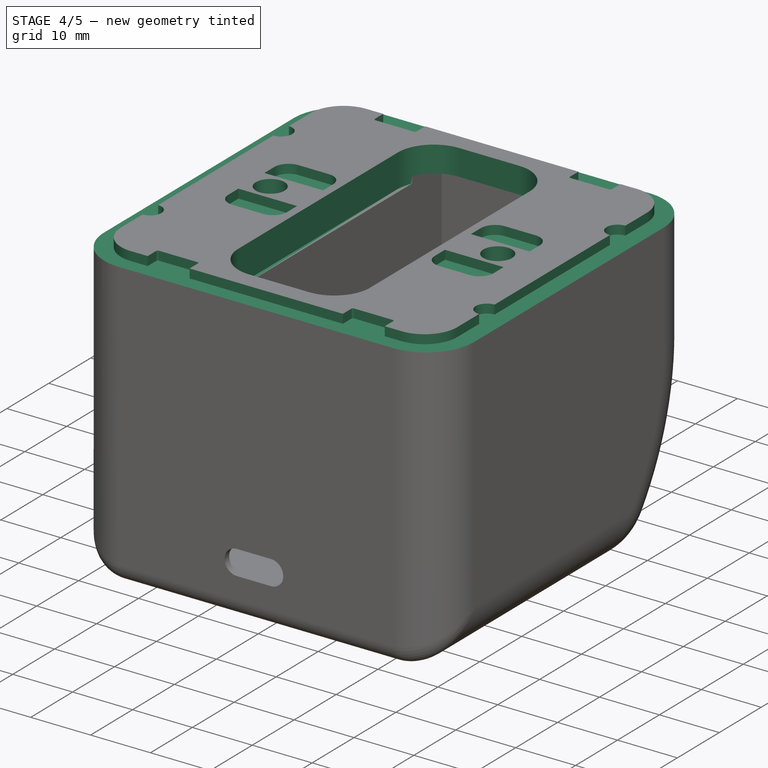
[diagram: stage 4 of 5 — iso view after this stage's code; geometry added in this stage tinted green]
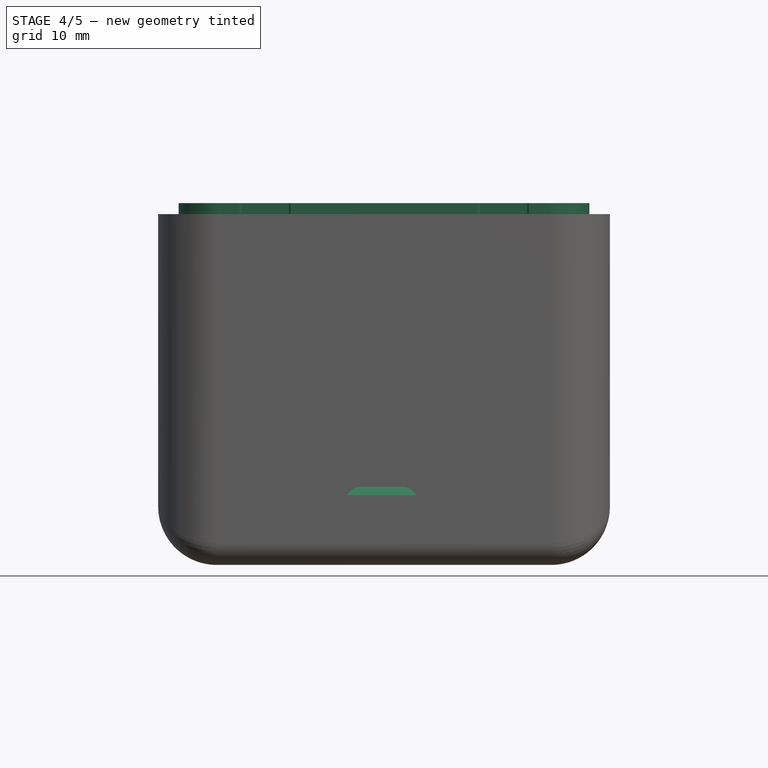
[diagram: stage 4 of 5 — front view after this stage's code; geometry added in this stage tinted green]
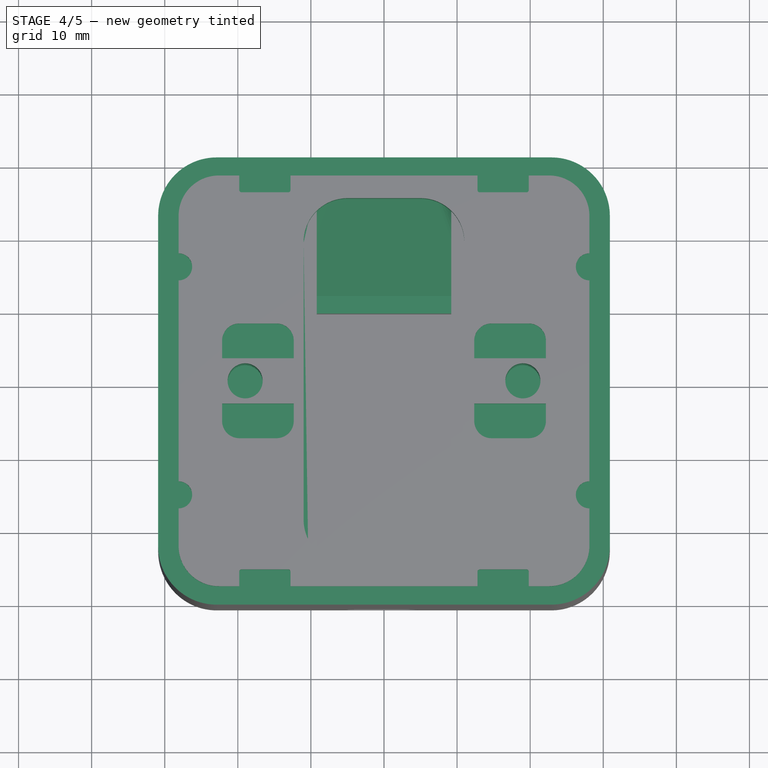
[diagram: stage 4 of 5 — top view after this stage's code; geometry added in this stage tinted green]
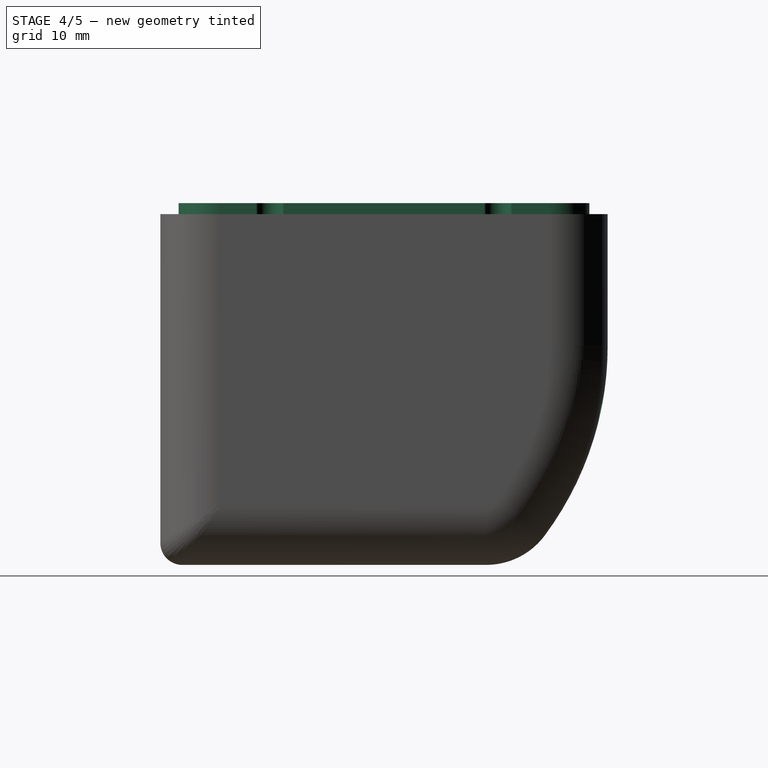
[diagram: stage 4 of 5 — right view after this stage's code; geometry added in this stage tinted green]
FEATURE [PartDesign::SubtractiveLoft] SubtractiveLoft  label="HS Cableduct ESP relais"
  BaseFeature = -> Pocket035
  Closed = false
  Placement = pos=(30.9,-1.07e-14,-48) rot=(0,1,0;1.5708rad)
  Profile = -> Sketch164
  Refine = true
  Ruled = false
  Sections = -> [Sketch165]
  Suppressed = false
FEATURE [PartDesign::Pocket] Pocket036  label="HS Wall socket circumference"
  BaseFeature = -> SubtractiveLoft
  Direction = (0,0,-1)
  Length = 5
  Length2 = 5
  Placement = pos=(30.9,-1.07e-14,-48) rot=(0,1,0;1.5708rad)
  Profile = -> Sketch166
  ReferenceAxis = -> Sketch166 [N_Axis]
  Refine = true
  Reversed = true
  Suppressed = false
  Type = 1
FEATURE [PartDesign::Pocket] Pocket037  label="HS Wall socket external pocket 1"
  BaseFeature = -> Pocket036
  Direction = (0,0,-1)
  Length = 5
  Length2 = 5
  Placement = pos=(30.9,-1.07e-14,-48) rot=(0,1,0;1.5708rad)
  Profile = -> Sketch167
  ReferenceAxis = -> Sketch167 [N_Axis]
  Refine = true
  Reversed = true
  Suppressed = false
  Type = 1
FEATURE [PartDesign::MultiTransform] MultiTransform002  label="HS Wall socket external pockets 2, 3, 4"
  BaseFeature = -> Pocket037
  Originals = -> [Pocket037]
  Placement = pos=(30.9,-1.07e-14,-48) rot=(0,1,0;1.5708rad)
  Refine = true
  Suppressed = false
  TransformMode = 0
  Transformations = -> [Mirrored003,Mirrored004]
FEATURE [PartDesign::Pocket] Pocket038  label="HS Wall socket internal pocket 1"
  BaseFeature = -> MultiTransform002
  Direction = (0,0,1)
  Length = 5
  Length2 = 5
  Placement = pos=(30.9,-1.07e-14,-48) rot=(0,1,0;1.5708rad)
  Profile = -> Sketch168
  ReferenceAxis = -> Sketch168 [N_Axis]
  Refine = true
  Suppressed = false
  Type = 1
FEATURE [PartDesign::MultiTransform] MultiTransform003  label="HS Wall socket internal pockets 2,3,4"
  BaseFeature = -> Pocket038
  Originals = -> [Pocket038]
  Placement = pos=(30.9,-1.07e-14,-48) rot=(0,1,0;1.5708rad)
  Refine = true
  Suppressed = false
  TransformMode = 0
  Transformations = -> [Mirrored005,Mirrored006]
FEATURE [PartDesign::Pocket] Pocket039  label="HS Screw hole 1"
  BaseFeature = -> MultiTransform003
  Direction = (0,0,-1)
  Length = 5
  Length2 = 5
  Placement = pos=(30.9,-1.07e-14,-48) rot=(0,1,0;1.5708rad)
  Profile = -> Sketch169
  ReferenceAxis = -> Sketch169 [N_Axis]
  Refine = true
  Reversed = true
  Suppressed = false
  Type = 1
FEATURE [PartDesign::Pocket] Pocket040  label="HS Nut pocket 1"
  BaseFeature = -> Pocket039
  Direction = (0,0,-1)
  Length = 0
  Length2 = 5
  Placement = pos=(30.9,-1.07e-14,-48) rot=(0,1,0;1.5708rad)
  Profile = -> Sketch171
  ReferenceAxis = -> Sketch171 [N_Axis]
  Refine = true
  Suppressed = false
  Type = 3
  UpToFace = -> DatumPlane013
FEATURE [PartDesign::Mirrored] Mirrored007  label="HS Screw nut pocket 2"
  BaseFeature = -> Pocket040
  MirrorPlane = -> YZ_Plane030
  Originals = -> [Pocket039,Pocket040]
  Placement = pos=(30.9,-1.07e-14,-48) rot=(0,1,0;1.5708rad)
  Refine = true
  Suppressed = false
  TransformMode = 0
FEATURE [PartDesign::Pocket] Pocket041  label="HS Cableduct wall socket"
  BaseFeature = -> Mirrored007
  Direction = (0,0,-1)
  Length = 8
  Length2 = 5
  Midplane = true
  Placement = pos=(30.9,-1.07e-14,-48) rot=(0,1,0;1.5708rad)
  Profile = -> Sketch172
  ReferenceAxis = -> Sketch172 [N_Axis]
  Refine = true
  Suppressed = false
  Type = 0
FEATURE [PartDesign::Groove] Groove001  label="HS Screw hole right"
  Angle = 360
  Angle2 = 60
  Axis = (0,1,0)
  Base = (21,-2.2,-26)
  BaseFeature = -> Pocket041
  Placement = pos=(30.9,-1.07e-14,-48) rot=(0,1,0;1.5708rad)
  Profile = -> Binder018
  ReferenceAxis = -> Binder018 [Edge8]
  Refine = true
  Suppressed = false
  Type = 0
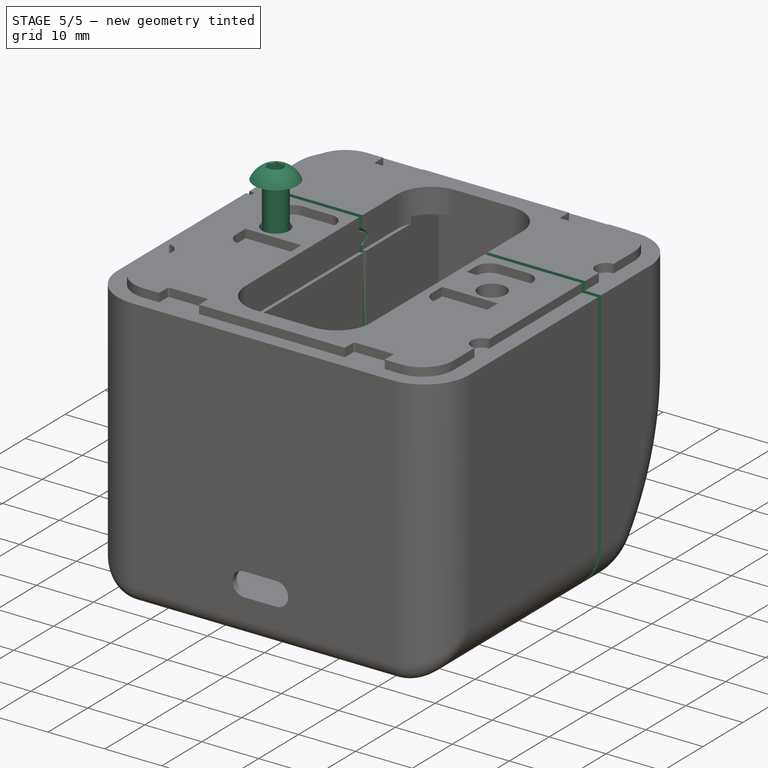
[diagram: stage 5 of 5 — iso view after this stage's code; geometry added in this stage tinted green]
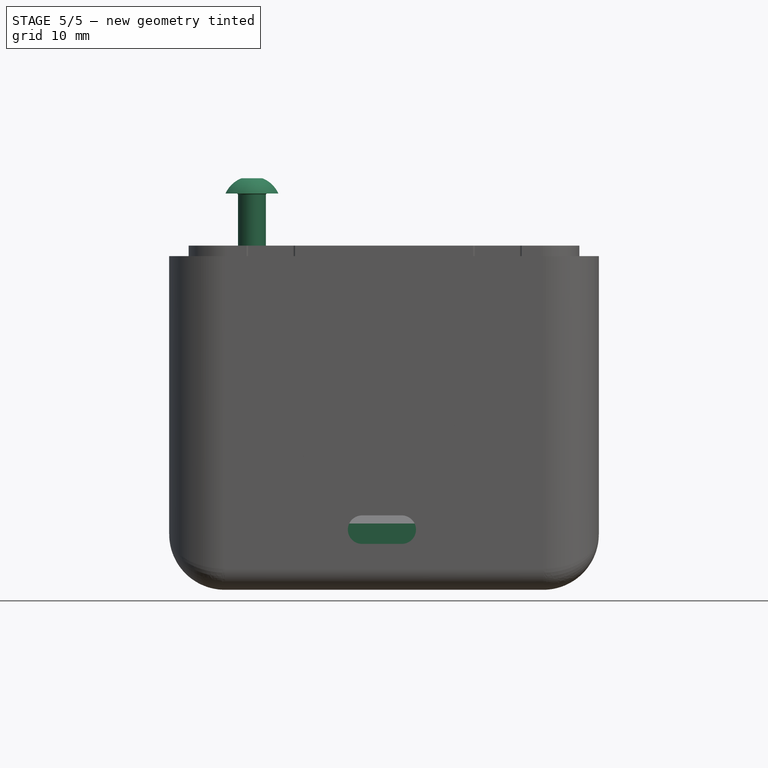
[diagram: stage 5 of 5 — front view after this stage's code; geometry added in this stage tinted green]
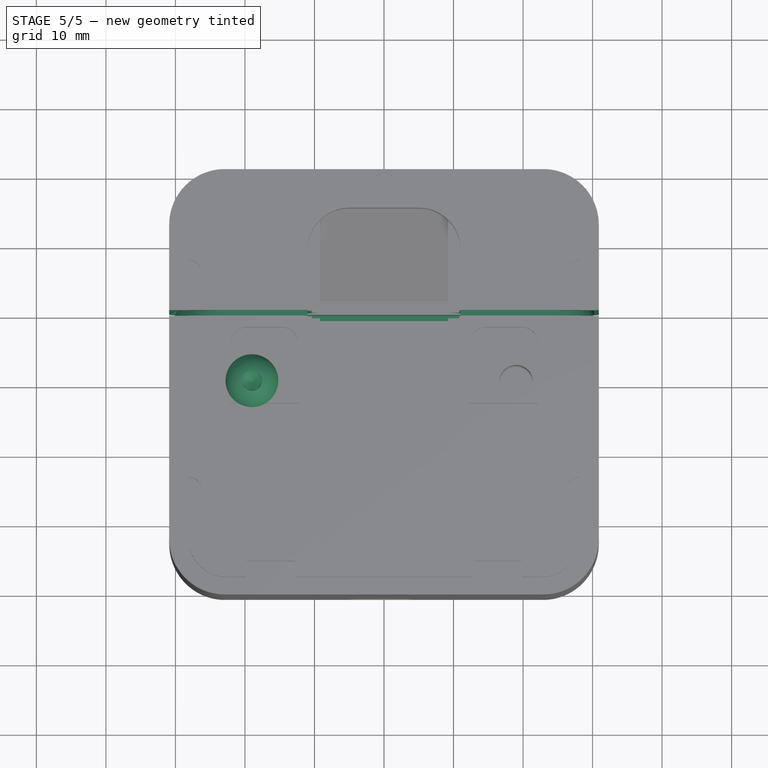
[diagram: stage 5 of 5 — top view after this stage's code; geometry added in this stage tinted green]
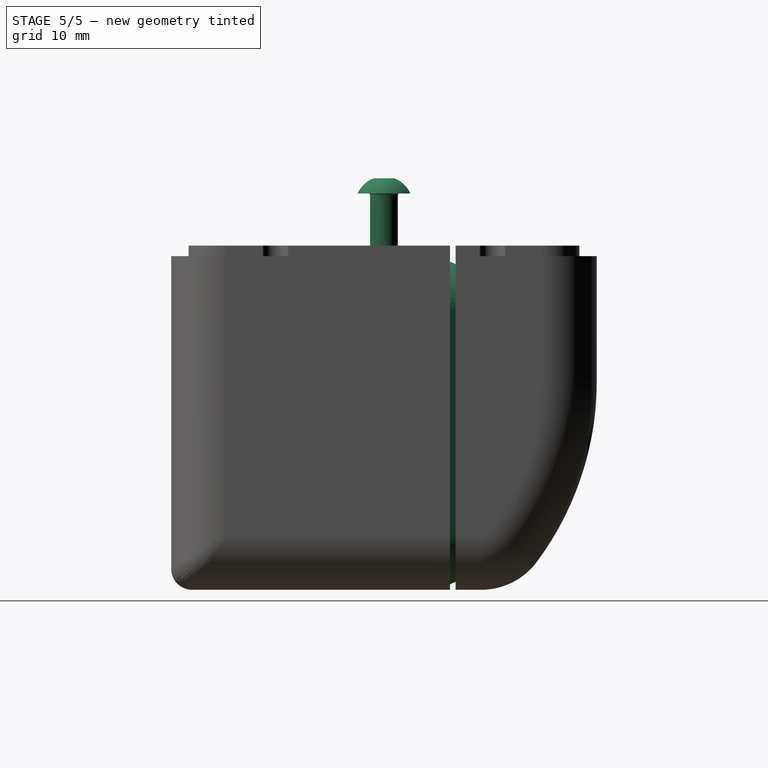
[diagram: stage 5 of 5 — right view after this stage's code; geometry added in this stage tinted green]
FEATURE [Part::FeaturePython] Screw003  label="M4x20-Screw"  # WARN: FeaturePython — macro-defined, semantics opaque (R4)
  Diameter = 2
  Invert = false
  LeftHanded = false
  Length = 6
  LengthCustom = 20
  MatchOuter = false
  Placement = pos=(-19,0,9) rot=(0,0,1;0rad)
  Thread = false
  Type = 84
FEATURE [Part::FeaturePython] Nut003  label="M4-Nut"  # WARN: FeaturePython — macro-defined, semantics opaque (R4)
  Diameter = 6
  Invert = false
  LeftHanded = false
  MatchOuter = false
  Placement = pos=(-19,0,-5.8) rot=(0.707107,0.707107,0;3.14159rad)
  Thread = false
  Type = 31
FEATURE [PartDesign::SubShapeBinder] Binder017  label="hr ref USB-C"
  BindCopyOnChange = 0
  BindMode = 0
  ClaimChildren = false
  Context = -> Body029 [Binder017.]
  Fuse = false
  MakeFace = true
  OffsetFill = false
  OffsetIntersection = false
  OffsetJoinType = 0
  OffsetOpenResult = false
  PartialLoad = false
  Refine = true
  Relative = true
  Support = -> [Compound004[Face5506]]
  _Version = 2
FEATURE [Sketcher::SketchObject] Sketch179
  ArcFitTolerance = 1e-06
  AttachmentSupport = -> [XZ_Plane029]
  ExternalGeometry = -> [Binder017]
  FullyConstrained = true
  MakeInternals = false
  MapMode = 5
  Placement = pos=(0,0,0) rot=(1,0,0;1.5708rad)
  sketch-geometry (4):
    g0: ArcOfCircle CenterX=-3.15 CenterY=-39.35 CenterZ=0 NormalX=0 NormalY=0 NormalZ=1 AngleXU=0 Radius=2.05 StartAngle=1.5708 EndAngle=4.71239
    g1: ArcOfCircle CenterX=2.55 CenterY=-39.35 CenterZ=0 NormalX=0 NormalY=0 NormalZ=1 AngleXU=0 Radius=2.05 StartAngle=4.71239 EndAngle=7.85398
    g2: LineSegment StartX=-3.15 StartY=-37.3 StartZ=0 EndX=2.55 EndY=-37.3 EndZ=0
    g3: LineSegment StartX=-3.15 StartY=-41.4 StartZ=0 EndX=2.55 EndY=-41.4 EndZ=0
  constraints (8):
    c: Tangent(g0,g2) = 1.5708
    c: Tangent(g0,g3) = -1.5708
    c: Tangent(g1,g2) = 1.5708
    c: Tangent(g1,g3) = -1.5708
    c: Equal(g0,g1)
    c: Distance(g-3,g2) = 0.4
    c: Coincident(g0,g-4)
    c: Coincident(g1,g-3)
FEATURE [PartDesign::SubShapeBinder] Binder018  label="hs ref screw001"
  BindCopyOnChange = 0
  BindMode = 0
  ClaimChildren = false
  Context = -> Body029 [Binder018.]
  Fuse = false
  MakeFace = true
  OffsetFill = false
  OffsetIntersection = false
  OffsetJoinType = 0
  OffsetOpenResult = false
  PartialLoad = false
  Refine = true
  Relative = true
  Support = -> [Body023[Sketch003.]]
  _Version = 2
FEATURE [Sketcher::SketchObject] Sketch180  label="sk rim trj"
  ArcFitTolerance = 1e-06
  AttachmentSupport = -> [XZ_Plane028]
  ExternalGeometry = -> [Sketch155]
  FullyConstrained = true
  MakeInternals = false
  MapMode = 5
  Placement = pos=(0,0,0) rot=(1,0,0;1.5708rad)
  sketch-geometry (10):
    g0: LineSegment StartX=-28.9 StartY=-8 StartZ=0 EndX=-28.9 EndY=-40 EndZ=0
    g1: LineSegment StartX=-22.9 StartY=-46 StartZ=0 EndX=22.9 EndY=-46 EndZ=0
    g2: LineSegment StartX=28.9 StartY=-40 StartZ=0 EndX=28.9 EndY=-8 EndZ=0
    g3: LineSegment StartX=22.9 StartY=-2 StartZ=0 EndX=-22.9 EndY=-2 EndZ=0
    g4: ArcOfCircle CenterX=-22.9 CenterY=-8 CenterZ=0 NormalX=0 NormalY=0 NormalZ=1 AngleXU=0 Radius=6 StartAngle=1.5708 EndAngle=3.14159
    g5: ArcOfCircle CenterX=-22.9 CenterY=-40 CenterZ=0 NormalX=0 NormalY=0 NormalZ=1 AngleXU=0 Radius=6 StartAngle=3.14159 EndAngle=4.71239
    g6: ArcOfCircle CenterX=22.9 CenterY=-40 CenterZ=0 NormalX=0 NormalY=0 NormalZ=1 AngleXU=0 Radius=6 StartAngle=4.71239 EndAngle=6.28319
    g7: ArcOfCircle CenterX=22.9 CenterY=-8 CenterZ=0 NormalX=0 NormalY=0 NormalZ=1 AngleXU=0 Radius=6 StartAngle=0 EndAngle=1.5708
    g8: GeomPoint [constr] X=-28.9 Y=-2 Z=0
    g9: GeomPoint [constr] X=28.9 Y=-46 Z=0
  constraints (23):
    c: Tangent(g0,g4) = -1.5708
    c: Tangent(g0,g5) = -1.5708
    c: Tangent(g1,g5) = -1.5708
    c: Tangent(g1,g6) = -1.5708
    c: Tangent(g2,g6) = -1.5708
    c: Tangent(g2,g7) = -1.5708
    c: Tangent(g3,g7) = -1.5708
    c: Tangent(g3,g4) = -1.5708
    c: Vertical(g0)
    c: Vertical(g2)
    c: Horizontal(g1)
    c: Horizontal(g3)
    c: Equal(g4,g5)
    c: Equal(g5,g6)
    c: PointOnObject(g8,g0)
    c: PointOnObject(g8,g3)
    c: PointOnObject(g9,g1)
    c: PointOnObject(g9,g2)
    c: Symmetric(g7,g4,g-2)
    c: Distance(g2,g-3) = 2
    c: DistanceY(g3,g-1) = 2
    c: Distance(g-3,g1) = 2
    c: Radius(g7) = 6
FEATURE [Sketcher::SketchObject] Sketch181  label="sk rim crs"
  ArcFitTolerance = 1e-06
  AttachmentSupport = -> [YZ_Plane029]
  ExternalGeometry = -> [Sketch180,Sketch160]
  FullyConstrained = true
  MakeInternals = false
  MapMode = 5
  Placement = pos=(0,0,0) rot=(0.57735,0.57735,0.57735;2.0944rad)
  sketch-geometry (10):
    g0: LineSegment StartX=9.4 StartY=-0.762994 StartZ=0 EndX=11.3 EndY=-1.55 EndZ=0
    g1: LineSegment StartX=11.3 StartY=-1.55 StartZ=0 EndX=11.3 EndY=-2.45 EndZ=0
    g2: LineSegment StartX=11.3 StartY=-2.45 StartZ=0 EndX=9.4 EndY=-3.23701 EndZ=0
    g3: LineSegment StartX=9.4 StartY=-3.23701 StartZ=0 EndX=9.4 EndY=-0.762994 EndZ=0
    g4: LineSegment [constr] StartX=11.3 StartY=-2 StartZ=0 EndX=0 EndY=-2 EndZ=0
    g5: ArcOfCircle CenterX=10.9547 CenterY=-2 CenterZ=0 NormalX=0 NormalY=0 NormalZ=1 AngleXU=0 Radius=0.667213 StartAngle=5.36689 EndAngle=7.19948
    g6: LineSegment StartX=11.3609 StartY=-1.47066 StartZ=0 EndX=10.2 EndY=-0.579893 EndZ=0
    g7: LineSegment StartX=10.2 StartY=-0.579893 StartZ=0 EndX=10.2 EndY=-3.42011 EndZ=0
    g8: LineSegment StartX=10.2 StartY=-3.42011 StartZ=0 EndX=11.3609 EndY=-2.52934 EndZ=0
    g9: LineSegment [constr] StartX=11.3609 StartY=-1.47066 StartZ=0 EndX=11.3 EndY=-1.55 EndZ=0
  constraints (25):
    c: Coincident(g0,g1)
    c: Vertical(g1)
    c: Coincident(g1,g2)
    c: Coincident(g2,g3)
    c: Vertical(g3)
    c: Coincident(g0,g3)
    c: Symmetric(g1,g1,g4)
    c: Coincident(g4,g-3)
    c: Symmetric(g0,g2,g4)
    c: Angle(g0,g2) = 0.785398
    c: DistanceY(g1,g1) = 0.9
    c: Distance(g0,g-5) = 1
    c: PointOnObject(g5,g4)
    c: Coincident(g6,g7)
    c: Coincident(g7,g8)
    c: Tangent(g5,g8) = -1.5708
    c: Tangent(g5,g6) = -1.5708
    c: Symmetric(g6,g7,g4)
    c: Angle(g6,g0) = 0.261799
    c: Coincident(g9,g5)
    c: Coincident(g9,g0)
    c: PointOnObject(g5,g9)
    c: Distance(g9,g9) = 0.1
    c: Distance(g6,g-5) = 0.1
    c: Distance(g0,g-4) = 0.1
FEATURE [PartDesign::Body] Body028  label="Skeleton"
  AllowCompound = false
  Group = -> [Sketch154,Sketch155,Binder003,Sketch156,Binder004,Sketch157,Sketch158,Sketch159,Sketch160,Sketch180,Sketch181]
  Origin = -> Origin028
FEATURE [PartDesign::SubShapeBinder] Binder019  label="sb ref left"
  BindCopyOnChange = 0
  BindMode = 0
  ClaimChildren = false
  Context = -> Body031 [Binder019.]
  Fuse = false
  MakeFace = true
  OffsetFill = false
  OffsetIntersection = false
  OffsetJoinType = 0
  OffsetOpenResult = false
  PartialLoad = false
  Refine = true
  Relative = true
  Support = -> [Body028[Sketch154.]]
  _Version = 2
FEATURE [PartDesign::SubShapeBinder] Binder020  label="sb ref front"
  BindCopyOnChange = 0
  BindMode = 0
  ClaimChildren = false
  Context = -> Body031 [Binder020.]
  Fuse = false
  MakeFace = true
  OffsetFill = false
  OffsetIntersection = false
  OffsetJoinType = 0
  OffsetOpenResult = false
  PartialLoad = false
  Refine = true
  Relative = true
  Support = -> [Body028[Sketch155.]]
  _Version = 2
FEATURE [PartDesign::SubShapeBinder] Binder021  label="sb ref separation"
  BindCopyOnChange = 0
  BindMode = 0
  ClaimChildren = false
  Context = -> Body031 [Binder021.]
  Fuse = false
  MakeFace = true
  OffsetFill = false
  OffsetIntersection = false
  OffsetJoinType = 0
  OffsetOpenResult = false
  PartialLoad = false
  Refine = true
  Relative = true
  Support = -> [Body028[Sketch160.]]
  _Version = 2
FEATURE [PartDesign::SubShapeBinder] Binder022  label="sb ref rim trj"
  BindCopyOnChange = 0
  BindMode = 0
  ClaimChildren = false
  Context = -> Body031 [Binder022.]
  Fuse = false
  MakeFace = true
  OffsetFill = false
  OffsetIntersection = false
  OffsetJoinType = 0
  OffsetOpenResult = false
  PartialLoad = false
  Refine = true
  Relative = true
  Support = -> [Body028[Sketch180.]]
  _Version = 2
FEATURE [PartDesign::SubShapeBinder] Binder023  label="sb ref rim crs"
  BindCopyOnChange = 0
  BindMode = 0
  ClaimChildren = false
  Context = -> Body031 [Binder023.]
  Fuse = false
  MakeFace = true
  OffsetFill = false
  OffsetIntersection = false
  OffsetJoinType = 0
  OffsetOpenResult = false
  PartialLoad = false
  Refine = true
  Relative = true
  Support = -> [Body028[Sketch181.]]
  _Version = 2
FEATURE [PartDesign::Plane] DatumPlane018  label="sb pln right"
  AttachmentOffset = pos=(0,0,1) rot=(0,0,1;0rad)
  AttachmentSupport = -> [Binder020,YZ_Plane032]
  Length = 86.9436
  MapMode = 6
  Placement = pos=(31.9,0,2e-16) rot=(0,1,0;1.5708rad)
  ResizeMode = 0
  Width = 69.5436
FEATURE [PartDesign::Plane] DatumPlane019  label="sb pln left"
  AttachmentOffset = pos=(0,0,-1) rot=(0,0,1;0rad)
  AttachmentSupport = -> [Binder020,YZ_Plane032]
  Length = 86.9436
  MapMode = 6
  Placement = pos=(-31.9,0,-2e-16) rot=(0,1,0;1.5708rad)
  ResizeMode = 0
  Width = 69.5436
FEATURE [Sketcher::SketchObject] Sketch182
  ArcFitTolerance = 1e-06
  AttachmentSupport = -> [DatumPlane019]
  ExternalGeometry = -> [Binder021,Binder019]
  FullyConstrained = true
  MakeInternals = false
  MapMode = 5
  Placement = pos=(-31.9,0,-2e-16) rot=(0,1,0;1.5708rad)
  sketch-geometry (8):
    g0: LineSegment StartX=-2.5 StartY=9.5 StartZ=0 EndX=-2.5 EndY=-30.6 EndZ=0
    g1: LineSegment StartX=-1.5 StartY=-31.6 StartZ=0 EndX=48 EndY=-31.6 EndZ=0
    g2: LineSegment StartX=49 StartY=-30.6 StartZ=0 EndX=49 EndY=9.5 EndZ=0
    g3: LineSegment StartX=49 StartY=9.5 StartZ=0 EndX=-2.5 EndY=9.5 EndZ=0
    g4: ArcOfCircle CenterX=48 CenterY=-30.6 CenterZ=0 NormalX=0 NormalY=0 NormalZ=1 AngleXU=0 Radius=1 StartAngle=4.71239 EndAngle=6.28319
    g5: GeomPoint [constr] X=49 Y=-31.6 Z=0
    g6: ArcOfCircle CenterX=-1.5 CenterY=-30.6 CenterZ=0 NormalX=0 NormalY=0 NormalZ=1 AngleXU=0 Radius=1 StartAngle=3.14159 EndAngle=4.71239
    g7: GeomPoint [constr] X=-2.5 Y=-31.6 Z=0
  constraints (18):
    c: Coincident(g2,g3)
    c: Coincident(g3,g0)
    c: Vertical(g0)
    c: Vertical(g2)
    c: Horizontal(g1)
    c: Horizontal(g3)
    c: PointOnObject(g-3,g3)
    c: PointOnObject(g5,g2)
    c: PointOnObject(g5,g1)
    c: Tangent(g2,g4) = -1.5708
    c: Tangent(g1,g4) = -1.5708
    c: PointOnObject(g7,g1)
    c: PointOnObject(g7,g0)
    c: Tangent(g1,g6) = -1.5708
    c: Tangent(g0,g6) = -1.5708
    c: Coincident(g6,g-4)
    c: Coincident(g4,g-4)
    c: Radius(g6) = 1
FEATURE [PartDesign::Pad] Pad033
  Direction = (1,0,2e-16)
  Length = 10
  Length2 = 10
  Placement = pos=(-31.9,0,-2e-16) rot=(0,1,0;1.5708rad)
  Profile = -> Sketch182
  ReferenceAxis = -> Sketch182 [N_Axis]
  Refine = true
  Suppressed = false
  Type = 3
  UpToFace = -> DatumPlane018
FEATURE [Sketcher::SketchObject] Sketch183
  ArcFitTolerance = 1e-06
  AttachmentSupport = -> [YZ_Plane032]
  ExternalGeometry = -> [Binder023]
  FullyConstrained = true
  MakeInternals = false
  MapMode = 5
  Placement = pos=(0,0,0) rot=(0.57735,0.57735,0.57735;2.0944rad)
  sketch-geometry (4):
    g0: LineSegment StartX=9.4 StartY=-0.762994 StartZ=0 EndX=11.3 EndY=-1.55 EndZ=0
    g1: LineSegment StartX=11.3 StartY=-1.55 StartZ=0 EndX=11.3 EndY=-2.45 EndZ=0
    g2: LineSegment StartX=11.3 StartY=-2.45 StartZ=0 EndX=9.4 EndY=-3.23701 EndZ=0
    g3: LineSegment StartX=9.4 StartY=-3.23701 StartZ=0 EndX=9.4 EndY=-0.762994 EndZ=0
  constraints (8):
    c: Coincident(g-3,g0)
    c: Coincident(g0,g-4)
    c: Coincident(g0,g1)
    c: Coincident(g1,g-4)
    c: Coincident(g1,g2)
    c: Coincident(g2,g-3)
    c: Coincident(g2,g3)
    c: Coincident(g3,g0)
FEATURE [Sketcher::SketchObject] Sketch184
  ArcFitTolerance = 1e-06
  AttachmentSupport = -> [XZ_Plane031]
  ExternalGeometry = -> [Binder022]
  FullyConstrained = true
  MakeInternals = false
  MapMode = 5
  Placement = pos=(0,0,0) rot=(1,0,0;1.5708rad)
  sketch-geometry (10):
    g0: LineSegment StartX=-22.9 StartY=-46 StartZ=0 EndX=22.9 EndY=-46 EndZ=0
    g1: LineSegment StartX=28.9 StartY=-40 StartZ=0 EndX=28.9 EndY=-8 EndZ=0
    g2: LineSegment StartX=22.9 StartY=-2 StartZ=0 EndX=-22.9 EndY=-2 EndZ=0
    g3: LineSegment StartX=-28.9 StartY=-8 StartZ=0 EndX=-28.9 EndY=-40 EndZ=0
    g4: ArcOfCircle CenterX=-22.9 CenterY=-40 CenterZ=0 NormalX=0 NormalY=0 NormalZ=1 AngleXU=0 Radius=6 StartAngle=3.14159 EndAngle=4.71239
    g5: ArcOfCircle CenterX=22.9 CenterY=-40 CenterZ=0 NormalX=0 NormalY=0 NormalZ=1 AngleXU=0 Radius=6 StartAngle=4.71239 EndAngle=6.28319
    g6: ArcOfCircle CenterX=22.9 CenterY=-8 CenterZ=0 NormalX=0 NormalY=0 NormalZ=1 AngleXU=0 Radius=6 StartAngle=2e-16 EndAngle=1.5708
    g7: ArcOfCircle CenterX=-22.9 CenterY=-8 CenterZ=0 NormalX=0 NormalY=0 NormalZ=1 AngleXU=0 Radius=6 StartAngle=1.5708 EndAngle=3.14159
    g8: GeomPoint [constr] X=-28.9 Y=-46 Z=0
    g9: GeomPoint [constr] X=28.9 Y=-2 Z=0
  constraints (22):
    c: Tangent(g0,g4) = -1.5708
    c: Tangent(g0,g5) = -1.5708
    c: Tangent(g1,g5) = -1.5708
    c: Tangent(g1,g6) = -1.5708
    c: Tangent(g2,g6) = -1.5708
    c: Tangent(g2,g7) = -1.5708
    c: Tangent(g3,g7) = -1.5708
    c: Tangent(g3,g4) = -1.5708
    c: Horizontal(g0)
    c: Horizontal(g2)
    c: Vertical(g1)
    c: Vertical(g3)
    c: Equal(g4,g5)
    c: Equal(g5,g6)
    c: Equal(g6,g7)
    c: PointOnObject(g8,g0)
    c: PointOnObject(g8,g3)
    c: PointOnObject(g9,g1)
    c: PointOnObject(g9,g2)
    c: Coincident(g6,g-3)
    c: Coincident(g4,g-4)
    c: Equal(g6,g-3)
FEATURE [PartDesign::AdditivePipe] AdditivePipe001
  AuxilleryCurvelinear = true
  AuxillerySpineTangent = false
  BaseFeature = -> Pad033
  Binormal = (0,0,0)
  Mode = 0
  Placement = pos=(-31.9,0,-2e-16) rot=(0,1,0;1.5708rad)
  Profile = -> Sketch183
  Refine = true
  Spine = -> Sketch184
  SpineTangent = false
  Suppressed = false
  Transformation = 0
  Transition = 0
FEATURE [PartDesign::Body] Body031  label="Separation body"
  AllowCompound = false
  Group = -> [Binder019,Binder020,Binder021,Binder022,Binder023,DatumPlane018,DatumPlane019,Sketch182,Pad033,Sketch183,Sketch184,AdditivePipe001]
  Origin = -> Origin031
  Tip = -> AdditivePipe001
FEATURE [Sketcher::SketchObject] Sketch187
  ArcFitTolerance = 1e-06
  AttachmentSupport = -> [XZ_Plane033]
  FullyConstrained = true
  MakeInternals = false
  MapMode = 5
  Placement = pos=(0,0,0) rot=(1,0,0;1.5708rad)
  sketch-geometry (10):
    g0: LineSegment StartX=-22.9 StartY=-46 StartZ=0 EndX=22.9 EndY=-46 EndZ=0
    g1: LineSegment StartX=28.9 StartY=-40 StartZ=0 EndX=28.9 EndY=-8 EndZ=0
    g2: LineSegment StartX=22.9 StartY=-2 StartZ=0 EndX=-22.9 EndY=-2 EndZ=0
    g3: LineSegment StartX=-28.9 StartY=-8 StartZ=0 EndX=-28.9 EndY=-40 EndZ=0
    g4: ArcOfCircle CenterX=-22.9 CenterY=-40 CenterZ=0 NormalX=0 NormalY=0 NormalZ=1 AngleXU=0 Radius=6 StartAngle=3.14159 EndAngle=4.71239
    g5: ArcOfCircle CenterX=22.9 CenterY=-40 CenterZ=0 NormalX=0 NormalY=0 NormalZ=1 AngleXU=0 Radius=6 StartAngle=4.71239 EndAngle=6.28319
    g6: ArcOfCircle CenterX=22.9 CenterY=-8 CenterZ=0 NormalX=0 NormalY=0 NormalZ=1 AngleXU=0 Radius=6 StartAngle=1e-16 EndAngle=1.5708
    g7: ArcOfCircle CenterX=-22.9 CenterY=-8 CenterZ=0 NormalX=0 NormalY=0 NormalZ=1 AngleXU=0 Radius=6 StartAngle=1.5708 EndAngle=3.14159
    g8: GeomPoint [constr] X=-28.9 Y=-46 Z=0
    g9: GeomPoint [constr] X=28.9 Y=-2 Z=0
  constraints (22):
    c: Tangent(g0,g4) = -1.5708
    c: Tangent(g0,g5) = -1.5708
    c: Tangent(g1,g5) = -1.5708
    c: Tangent(g1,g6) = -1.5708
    c: Tangent(g2,g6) = -1.5708
    c: Tangent(g2,g7) = -1.5708
    c: Tangent(g3,g7) = -1.5708
    c: Tangent(g3,g4) = -1.5708
    c: Horizontal(g0)
    c: Horizontal(g2)
    c: Vertical(g1)
    c: Vertical(g3)
    c: Equal(g4,g5)
    c: Equal(g5,g6)
    c: Equal(g6,g7)
    c: PointOnObject(g8,g0)
    c: PointOnObject(g8,g3)
    c: PointOnObject(g9,g1)
    c: PointOnObject(g9,g2)
    c: Coincident(g6,g-4)
    c: Coincident(g4,g-3)
    c: Equal(g-4,g6)
FEATURE [PartDesign::SubShapeBinder] Binder029  label="cb separation"
  BindCopyOnChange = 0
  BindMode = 0
  ClaimChildren = false
  Context = -> Body015 [Binder029.]
  Fuse = false
  MakeFace = true
  OffsetFill = false
  OffsetIntersection = false
  OffsetJoinType = 0
  OffsetOpenResult = false
  PartialLoad = false
  Refine = true
  Relative = true
  Support = -> [Body028[Sketch160.]]
  _Version = 2
FEATURE [Sketcher::SketchObject] Sketch038  label="c cable crs"
  ArcFitTolerance = 0
  AttachmentSupport = -> [DatumPlane003]
  ExternalGeometry = -> [Binder029]
  FullyConstrained = true
  MakeInternals = false
  MapMode = 5
  Placement = pos=(0,18,-4e-15) rot=(0,0,1;0rad)
  sketch-geometry (5):
    g0: ArcOfCircle CenterX=0 CenterY=-8.1 CenterZ=0 NormalX=0 NormalY=0 NormalZ=1 AngleXU=0 Radius=2 StartAngle=-5.338e-13 EndAngle=3.14159
    g1: ArcOfCircle CenterX=-1e-16 CenterY=-10.4 CenterZ=0 NormalX=0 NormalY=0 NormalZ=1 AngleXU=0 Radius=2 StartAngle=3.14159 EndAngle=6.28319
    g2: LineSegment StartX=2 StartY=-8.1 StartZ=0 EndX=2 EndY=-10.4 EndZ=0
    g3: LineSegment StartX=-2 StartY=-8.1 StartZ=0 EndX=-2 EndY=-10.4 EndZ=0
    g4: GeomPoint X=0 Y=-12.4 Z=0
  constraints (11):
    c: Tangent(g0,g2) = 1.5708
    c: Tangent(g0,g3) = -1.5708
    c: Tangent(g1,g2) = 1.5708
    c: Tangent(g1,g3) = -1.5708
    c: Equal(g0,g1)
    c: Vertical(g3)
    c: PointOnObject(g4,g1)
    c: PointOnObject(g4,g-2)
    c: DistanceX(g0,g0) = 4
    c: DistanceY(g2,g2) = 2.3
    c: Coincident(g0,g-3)
FEATURE [PartDesign::AdditivePipe] AdditivePipe
  AuxilleryCurvelinear = true
  AuxillerySpineTangent = false
  Binormal = (0,0,0)
  Mode = 0
  Placement = pos=(0,18,-4e-15) rot=(0,0,1;0rad)
  Profile = -> Sketch038
  Refine = true
  Spine = -> Sketch039
  SpineTangent = false
  Suppressed = false
  Transformation = 0
  Transition = 0
FEATURE [PartDesign::Fillet] Fillet003
  Base = -> Groove001 [Edge180]
  BaseFeature = -> Groove001
  Placement = pos=(30.9,-1.07e-14,-48) rot=(0,1,0;1.5708rad)
  Radius = 1
  Refine = true
  SupportTransform = false
  Suppressed = false
  UseAllEdges = false
FEATURE [PartDesign::Mirrored] Mirrored008  label="HS Screw hole left"
  BaseFeature = -> Fillet003
  MirrorPlane = -> YZ_Plane030
  Originals = -> [Groove001,Fillet003]
  Placement = pos=(30.9,-1.07e-14,-48) rot=(0,1,0;1.5708rad)
  Refine = true
  Suppressed = false
  TransformMode = 0
FEATURE [PartDesign::SubtractivePipe] SubtractivePipe001  label="HS Cable"
  AuxilleryCurvelinear = true
  AuxillerySpineTangent = false
  BaseFeature = -> Mirrored008
  Binormal = (0,0,0)
  Mode = 0
  Placement = pos=(30.9,-1.07e-14,-48) rot=(0,1,0;1.5708rad)
  Profile = -> Sketch188
  Refine = true
  Spine = -> Sketch189
  SpineTangent = false
  Suppressed = false
  Transformation = 0
  Transition = 0
FEATURE [PartDesign::Body] Body029  label="Housing"
  AllowCompound = false
  Group = -> [Binder005,Binder006,Binder007,Binder008,DatumPlane,DatumPlane004,Sketch161,Pad031,Fillet,Fillet002,Binder009,DatumPlane005,DatumPlane006,DatumPlane015,DatumPlane016,Sketch173,Sketch174,Sketch175,Sketch176,Fillet004,SubtractiveLoft001,Binder010,DatumPlane007,DatumPlane008,Sketch163,Binder017,Sketch179,Pocket,Pocket035,DatumPlane009,DatumPlane010,Sketch164,Binder011,Sketch165,SubtractiveLoft,+35 more]
  Origin = -> Origin029
  Tip = -> SubtractivePipe001
FEATURE [Part::MultiCommon] Common001  label="Body"
  Shapes = -> [Body029,Body031]
FEATURE [PartDesign::SubShapeBinder] Binder032  label="sl ref front"
  BindCopyOnChange = 0
  BindMode = 0
  ClaimChildren = false
  Context = -> Body032 [Binder032.]
  Fuse = false
  MakeFace = true
  OffsetFill = false
  OffsetIntersection = false
  OffsetJoinType = 0
  OffsetOpenResult = false
  PartialLoad = false
  Refine = true
  Relative = true
  Support = -> [Body028[Sketch154.]]
  _Version = 2
FEATURE [PartDesign::SubShapeBinder] Binder033  label="sl ref left"
  BindCopyOnChange = 0
  BindMode = 0
  ClaimChildren = false
  Context = -> Body032 [Binder033.]
  Fuse = false
  MakeFace = true
  OffsetFill = false
  OffsetIntersection = false
  OffsetJoinType = 0
  OffsetOpenResult = false
  PartialLoad = false
  Refine = true
  Relative = true
  Support = -> [Body028[Sketch155.]]
  _Version = 2
FEATURE [PartDesign::Plane] DatumPlane020  label="sl pln right"
  AttachmentOffset = pos=(0,0,1) rot=(0,0,1;0rad)
  AttachmentSupport = -> [YZ_Plane034,Binder033]
  Length = 69.5436
  MapMode = 53
  Placement = pos=(31.9,-3.4e-15,3.4e-15) rot=(0.57735,0.57735,0.57735;2.0944rad)
  ResizeMode = 0
  Width = 86.9436
FEATURE [PartDesign::Plane] DatumPlane021  label="sl pln left"
  AttachmentOffset = pos=(0,0,-1) rot=(0,0,1;0rad)
  AttachmentSupport = -> [YZ_Plane034,Binder033]
  Length = 69.5436
  MapMode = 53
  Placement = pos=(-31.9,3.4e-15,-3.4e-15) rot=(0.57735,0.57735,0.57735;2.0944rad)
  ResizeMode = 0
  Width = 86.9436
FEATURE [PartDesign::SubShapeBinder] Binder034  label="sl ref separation"
  BindCopyOnChange = 0
  BindMode = 0
  ClaimChildren = false
  Context = -> Body032 [Binder034.]
  Fuse = false
  MakeFace = true
  OffsetFill = false
  OffsetIntersection = false
  OffsetJoinType = 0
  OffsetOpenResult = false
  PartialLoad = false
  Refine = true
  Relative = true
  Support = -> [Body028[Sketch160.]]
  _Version = 2
FEATURE [Sketcher::SketchObject] Sketch185
  ArcFitTolerance = 1e-06
  AttachmentSupport = -> [DatumPlane021]
  ExternalGeometry = -> [Binder032,Binder034]
  FullyConstrained = true
  MakeInternals = false
  MapMode = 5
  Placement = pos=(-31.9,3.4e-15,-3.4e-15) rot=(0.57735,0.57735,0.57735;2.0944rad)
  sketch-geometry (4):
    g0: LineSegment StartX=10.3 StartY=-49 StartZ=0 EndX=31.6 EndY=-49 EndZ=0
    g1: LineSegment StartX=31.6 StartY=-49 StartZ=0 EndX=31.6 EndY=2.5 EndZ=0
    g2: LineSegment StartX=31.6 StartY=2.5 StartZ=0 EndX=10.3 EndY=2.5 EndZ=0
    g3: LineSegment StartX=10.3 StartY=2.5 StartZ=0 EndX=10.3 EndY=-49 EndZ=0
  constraints (12):
    c: Coincident(g0,g1)
    c: Coincident(g1,g2)
    c: Coincident(g2,g3)
    c: Coincident(g3,g0)
    c: Horizontal(g0)
    c: Horizontal(g2)
    c: Vertical(g1)
    c: Vertical(g3)
    c: PointOnObject(g-4,g3)
    c: Distance(g-3,g2) = 1
    c: Distance(g-3,g1) = 1
    c: Distance(g-4,g0) = 1
FEATURE [PartDesign::Pad] Pad034
  Direction = (1,0,0)
  Length = 10
  Length2 = 10
  Placement = pos=(-31.9,3.4e-15,-3.4e-15) rot=(0.57735,0.57735,0.57735;2.0944rad)
  Profile = -> Sketch185
  ReferenceAxis = -> Sketch185 [N_Axis]
  Refine = true
  Suppressed = false
  Type = 3
  UpToFace = -> DatumPlane020
FEATURE [PartDesign::SubShapeBinder] Binder035  label="sl ref rim trj"
  BindCopyOnChange = 0
  BindMode = 0
  ClaimChildren = false
  Context = -> Body032 [Binder035.]
  Fuse = false
  MakeFace = true
  OffsetFill = false
  OffsetIntersection = false
  OffsetJoinType = 0
  OffsetOpenResult = false
  PartialLoad = false
  Refine = true
  Relative = true
  Support = -> [Body028[Sketch180.]]
  _Version = 2
FEATURE [PartDesign::SubShapeBinder] Binder036  label="sl ref rim crs"
  BindCopyOnChange = 0
  BindMode = 0
  ClaimChildren = false
  Context = -> Body032 [Binder036.]
  Fuse = false
  MakeFace = true
  OffsetFill = false
  OffsetIntersection = false
  OffsetJoinType = 0
  OffsetOpenResult = false
  PartialLoad = false
  Refine = true
  Relative = true
  Support = -> [Body028[Sketch181.]]
  _Version = 2
FEATURE [Sketcher::SketchObject] Sketch186  label="sl rim crs"
  ArcFitTolerance = 1e-06
  AttachmentSupport = -> [YZ_Plane034]
  ExternalGeometry = -> [Binder036]
  FullyConstrained = true
  MakeInternals = false
  MapMode = 5
  Placement = pos=(0,0,0) rot=(0.57735,0.57735,0.57735;2.0944rad)
  sketch-geometry (4):
    g0: LineSegment StartX=10.2 StartY=-0.579893 StartZ=0 EndX=11.3609 EndY=-1.47066 EndZ=0
    g1: LineSegment StartX=11.3609 StartY=-2.52934 StartZ=0 EndX=10.2 EndY=-3.42011 EndZ=0
    g2: LineSegment StartX=10.2 StartY=-3.42011 StartZ=0 EndX=10.2 EndY=-0.579893 EndZ=0
    g3: ArcOfCircle CenterX=10.9547 CenterY=-2 CenterZ=0 NormalX=0 NormalY=0 NormalZ=1 AngleXU=0 Radius=0.667213 StartAngle=5.36689 EndAngle=7.19948
  constraints (8):
    c: Tangent(g0,g3) = 1.5708
    c: Tangent(g1,g3) = 1.5708
    c: Coincident(g0,g2)
    c: Coincident(g0,g-3)
    c: Coincident(g1,g2)
    c: Coincident(g1,g-3)
    c: Equal(g-4,g3)
    c: Coincident(g3,g-4)
FEATURE [PartDesign::SubtractivePipe] SubtractivePipe  label="SL Groove"
  AuxilleryCurvelinear = true
  AuxillerySpineTangent = false
  BaseFeature = -> Pad034
  Binormal = (0,0,0)
  Mode = 0
  Placement = pos=(-31.9,3.4e-15,-3.4e-15) rot=(0.57735,0.57735,0.57735;2.0944rad)
  Profile = -> Sketch186
  Refine = true
  Spine = -> Sketch187
  SpineTangent = false
  Suppressed = false
  Transformation = 0
  Transition = 0
FEATURE [PartDesign::Body] Body032  label="Separation lid"
  AllowCompound = false
  Group = -> [DatumPlane020,DatumPlane021,Sketch185,Pad034,Sketch186,Sketch187,SubtractivePipe,Binder032,Binder033,Binder034,Binder035,Binder036]
  Origin = -> Origin032
  Tip = -> SubtractivePipe
FEATURE [Part::MultiCommon] Common  label="Lid"
  Shapes = -> [Body029,Body032]
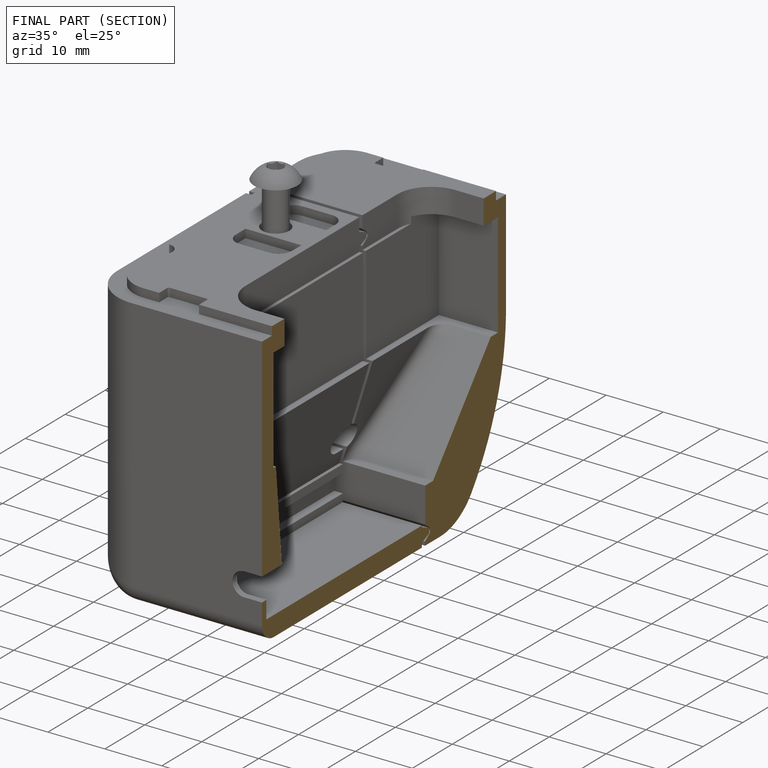
[diagram: finished part — half-section view (interior)]
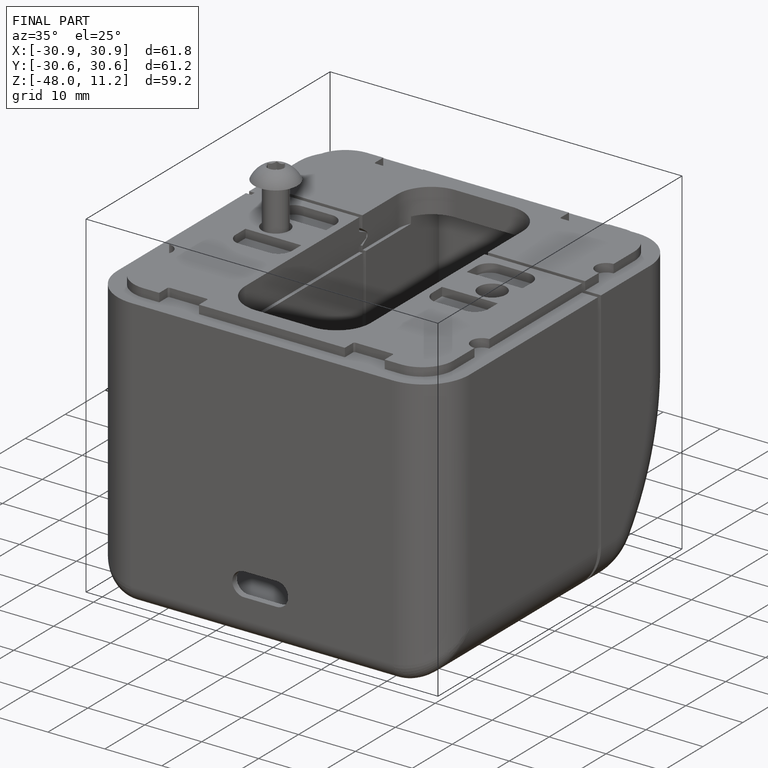
[diagram: finished part — iso view with bounding-box wireframe]
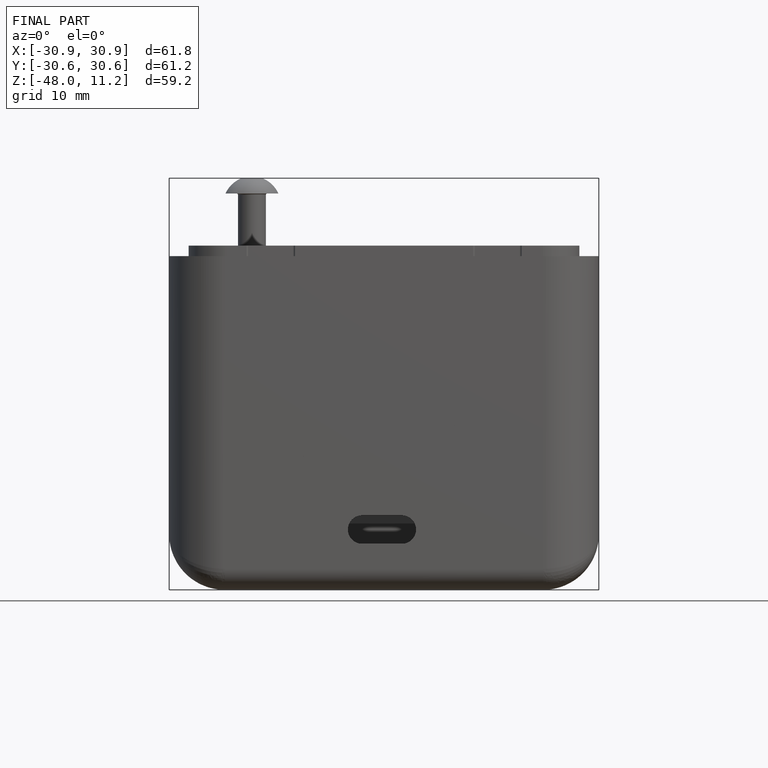
[diagram: finished part — front view with bounding-box wireframe]
